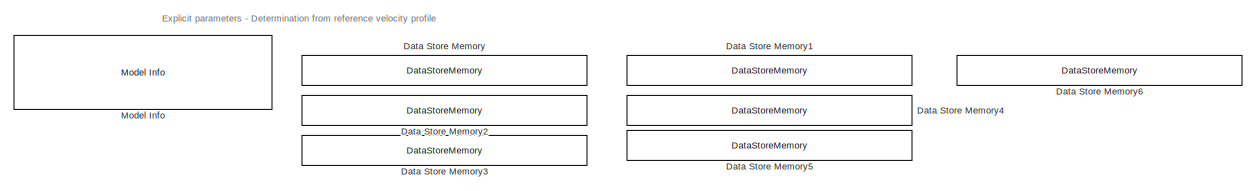
[diagram: root canvas - part 1/3, full width, top band]
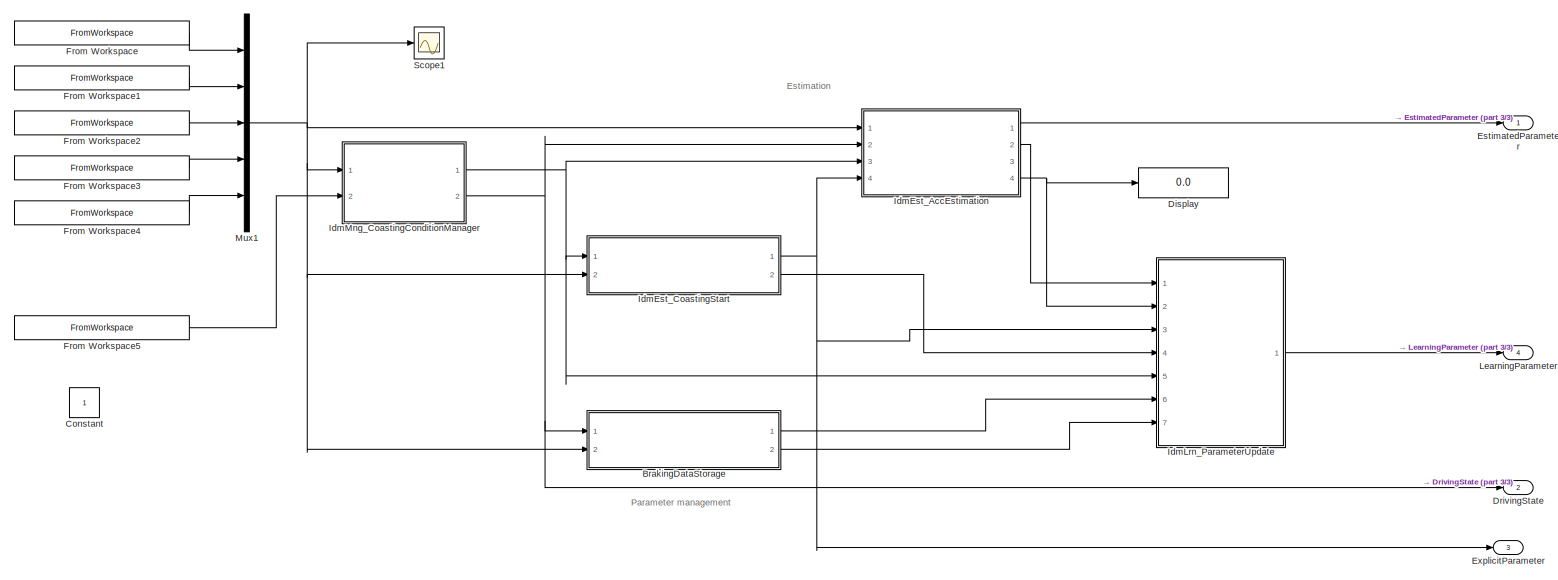
[diagram: root canvas - part 2/3, full width, middle band]
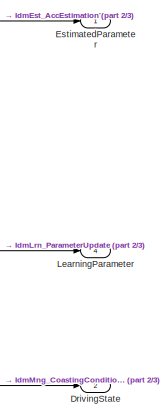
[diagram: root canvas - part 3/3, middle right region]
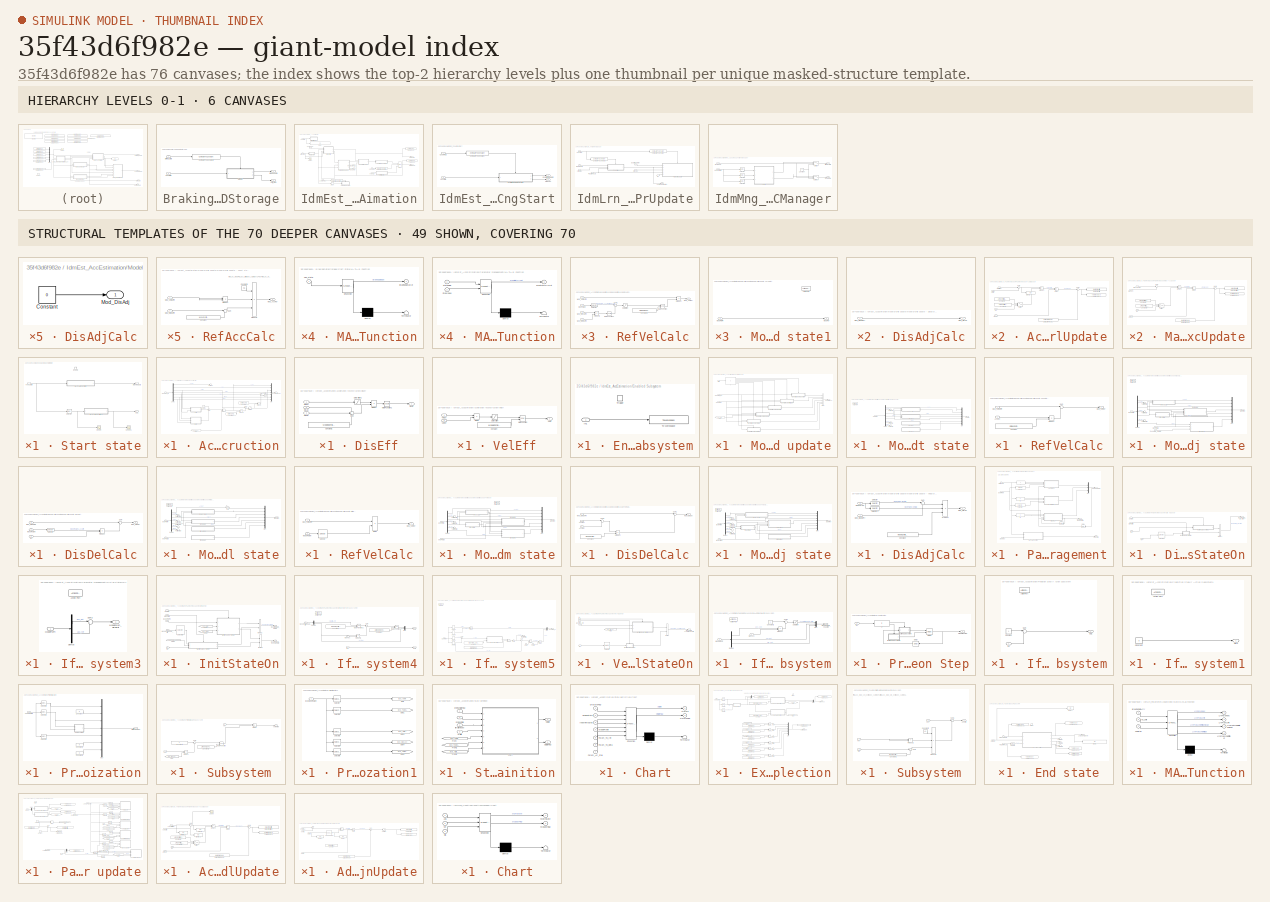
[diagram: thumbnail index - top-2 hierarchy levels (6 canvases) + 49 structural-template representatives of the remaining 70 canvases]
MODEL slx_35f43d6f982e
KIND model
CONFIG AbsTol = auto
CONFIG EnableMultiTasking = on
CONFIG FixedStep = 0.01
CONFIG MaxStep = auto
CONFIG MinStep = auto
CONFIG RelTol = 1e-3
CONFIG SampleTimeConstraint = Unconstrained
CONFIG Solver = ode3
CONFIG SolverName = ode3
CONFIG StartTime = 0.0
CONFIG StopTime = 10.0
BLOCK [SubSystem] BrakingDataStorage
  Ports = [2, 2]
  RTWFcnNameOpts = Use subsystem name
  RTWFileNameOpts = Use subsystem name
  RTWSystemCode = Reusable function
  RequestExecContextInheritance = off
  Variant = off
BLOCK [Outport] BrakingDataStorage/BrakingData
  IconDisplay = Port number
BLOCK [Reference] BrakingDataStorage/Compare To Constant1  REF=simulink/Logic and Bit
Operations/Compare
To Constant
  Ports = [1, 1]
  SourceBlock = simulink/Logic and Bit\nOperations/Compare\nTo Constant
  SourceProductBaseCode = SL
  SourceProductName = Simulink
  SourceType = Compare To Constant
BLOCK [Inport] BrakingDataStorage/DrivingState
  IconDisplay = Port number
BLOCK [Outport] BrakingDataStorage/Shift_Step
  IconDisplay = Port number
  Port = 2
BLOCK [SubSystem] BrakingDataStorage/Start state
  Ports = [1, 2, 1]
  RequestExecContextInheritance = off
  Variant = off
BLOCK [Outport] BrakingDataStorage/Start state/BrakingData
  IconDisplay = Port number
  InitialOutput = zeros(2000,3)
BLOCK [EnablePort] BrakingDataStorage/Start state/Enable
  Ports = []
  StatesWhenEnabling = reset
BLOCK [SubSystem] BrakingDataStorage/Start state/MATLAB Function
  ErrorFcn = Stateflow.Translate.translate
  PermitHierarchicalResolution = ExplicitOnly
  Ports = [1, 1]
  RequestExecContextInheritance = off
  SFBlockType = MATLAB Function
  TreatAsAtomicUnit = on
  Variant = off
BLOCK [Demux] BrakingDataStorage/Start state/MATLAB Function/ Demux 
  Outputs = 1
  Ports = [1, 1]
BLOCK [S-Function] BrakingDataStorage/Start state/MATLAB Function/ SFunction 
  EnableBusSupport = on
  FunctionName = sf_sfun
  Parameters = OnlineConfig
  PortCounts = [1 2]
  Ports = [1, 2]
  SFcnIsStateOwnerBlock = off
  SFunctionDeploymentMode = off
  Tag = Stateflow S-Function IdmEstimation_Cogen_Unporting_New 5
BLOCK [Terminator] BrakingDataStorage/Start state/MATLAB Function/ Terminator 
BLOCK [Outport] BrakingDataStorage/Start state/MATLAB Function/BrakingDataOut
  IconDisplay = Port number
BLOCK [Inport] BrakingDataStorage/Start state/MATLAB Function/veh_state
  IconDisplay = Port number
BLOCK [SubSystem] BrakingDataStorage/Start state/MATLAB Function1
  ErrorFcn = Stateflow.Translate.translate
  PermitHierarchicalResolution = ExplicitOnly
  Ports = [1, 1]
  RequestExecContextInheritance = off
  SFBlockType = MATLAB Function
  TreatAsAtomicUnit = on
  Variant = off
BLOCK [Demux] BrakingDataStorage/Start state/MATLAB Function1/ Demux 
  Outputs = 1
  Ports = [1, 1]
BLOCK [S-Function] BrakingDataStorage/Start state/MATLAB Function1/ SFunction 
  EnableBusSupport = on
  FunctionName = sf_sfun
  PortCounts = [1 2]
  Ports = [1, 2]
  SFcnIsStateOwnerBlock = off
  SFunctionDeploymentMode = off
  Tag = Stateflow S-Function IdmEstimation_Cogen_Unporting_New 10
BLOCK [Terminator] BrakingDataStorage/Start state/MATLAB Function1/ Terminator 
BLOCK [Inport] BrakingDataStorage/Start state/MATLAB Function1/Brk_Data
  IconDisplay = Port number
BLOCK [Outport] BrakingDataStorage/Start state/MATLAB Function1/Shift_TimeOut
  IconDisplay = Port number
BLOCK [Outport] BrakingDataStorage/Start state/Out1
  IconDisplay = Port number
  Port = 2
BLOCK [Scope] BrakingDataStorage/Start state/Scope
  NumInputPorts = 1
  Ports = [1]
  ScopeSpecificationString = Simulink.scopes.TimeScopeBlockCfg('CurrentConfiguration', extmgr.ConfigurationSet(extmgr.Configuration('Core','General UI',true),extmgr.Configuration('Core','Source UI',true),extmgr.Configuration('Sources','WiredSimulink',true,'DataLoggingVariableName','ScopeData1'),extmgr.Configuration('Visuals','Time Domain',true,'SerializedDisplays',{struct('MinYLimReal','-2.55417','MaxYLimReal','31.9875','YLab...<+1397ch>
BLOCK [Scope] BrakingDataStorage/Start state/Scope1
  NumInputPorts = 1
  Ports = [1]
  ScopeSpecificationString = Simulink.scopes.TimeScopeBlockCfg('CurrentConfiguration', extmgr.ConfigurationSet(extmgr.Configuration('Core','General UI',true),extmgr.Configuration('Core','Source UI',true),extmgr.Configuration('Sources','WiredSimulink',true,'DataLoggingVariableName','ScopeData2'),extmgr.Configuration('Visuals','Time Domain',true,'SerializedDisplays',{struct('MinYLimReal','0.41296','MaxYLimReal','2.05288','YLabe...<+1446ch>
BLOCK [Selector] BrakingDataStorage/Start state/Selector
  IndexOptions = Index vector (dialog)
  Indices = 1
  InputPortWidth = 5
  OutputSizes = 1
  Ports = [1, 1]
BLOCK [Inport] BrakingDataStorage/Start state/veh_state
  IconDisplay = Port number
BLOCK [Inport] BrakingDataStorage/VehState
  IconDisplay = Port number
  Port = 2
BLOCK [Constant] Constant
  OutDataTypeStr = single
BLOCK [DataStoreMemory] Data Store Memory
  DataStoreName = IdmLrn_EcpParamVec_TpInit
  Dimensions = LrnConfig.DataIndexLength
  InitialValue = BaseMap_TpShift_Data
  ReadBeforeWriteMsg = warning
  ShowAdditionalParam = off
  StateMustResolveToSignalObject = on
  WriteAfterReadMsg = warning
  WriteAfterWriteMsg = warning
BLOCK [DataStoreMemory] Data Store Memory1
  DataStoreName = IdmLrn_EcpParamVec_MaxAcc
  Dimensions = LrnConfig.DataIndexLength
  InitialValue = BaseMap_MaxAcc_Data
  ReadBeforeWriteMsg = warning
  ShowAdditionalParam = off
  StateMustResolveToSignalObject = on
  WriteAfterReadMsg = warning
  WriteAfterWriteMsg = warning
BLOCK [DataStoreMemory] Data Store Memory2
  DataStoreName = IdmLrn_EcpParamVec_TpDelta
  Dimensions = LrnConfig.DataIndexLength
  InitialValue = BaseMap_TpDelta_Data
  ReadBeforeWriteMsg = warning
  ShowAdditionalParam = off
  StateMustResolveToSignalObject = on
  WriteAfterReadMsg = warning
  WriteAfterWriteMsg = warning
BLOCK [DataStoreMemory] Data Store Memory3
  DataStoreName = IdmLrn_EcpParamVec_AcdStall
  Dimensions = LrnConfig.DataIndexLength
  InitialValue = BaseMap_AccDiff_Data
  ReadBeforeWriteMsg = warning
  ShowAdditionalParam = off
  StateMustResolveToSignalObject = on
  WriteAfterReadMsg = warning
  WriteAfterWriteMsg = warning
BLOCK [DataStoreMemory] Data Store Memory4
  DataStoreName = IdmLrn_EcpParamVec_AcrStall
  Dimensions = LrnConfig.DataIndexLength
  InitialValue = BaseMap_AprStall_Data
  ReadBeforeWriteMsg = warning
  ShowAdditionalParam = off
  StateMustResolveToSignalObject = on
  WriteAfterReadMsg = warning
  WriteAfterWriteMsg = warning
BLOCK [DataStoreMemory] Data Store Memory5
  DataStoreName = IdmLrn_EcpParamVec_AdjGain
  Dimensions = LrnConfig.DataIndexLength
  InitialValue = BaseMap_AdjGain_Data
  ReadBeforeWriteMsg = warning
  ShowAdditionalParam = off
  StateMustResolveToSignalObject = on
  WriteAfterReadMsg = warning
  WriteAfterWriteMsg = warning
BLOCK [DataStoreMemory] Data Store Memory6
  DataStoreName = IdmLrn_LrnNum
  Dimensions = 1
  InitialValue = LrnFacNum
  ReadBeforeWriteMsg = warning
  ShowAdditionalParam = off
  StateMustResolveToSignalObject = on
  WriteAfterReadMsg = warning
  WriteAfterWriteMsg = warning
BLOCK [Display] Display
  Decimation = 1
  Ports = [1]
BLOCK [Outport] DrivingState
  IconDisplay = Port number
  Port = 2
BLOCK [Outport] EstimatedParameter
  IconDisplay = Port number
BLOCK [Outport] ExplicitParameter
  IconDisplay = Port number
  Port = 3
BLOCK [FromWorkspace] From Workspace
  SampleTime = 0.01
  VariableName = [VehData_time VehData_brk]
  ZeroCross = on
BLOCK [FromWorkspace] From Workspace1
  SampleTime = 0.01
  VariableName = [VehData_time VehData_aps]
  ZeroCross = on
BLOCK [FromWorkspace] From Workspace2
  SampleTime = 0.01
  VariableName = [VehData_time VehData_acc]
  ZeroCross = on
BLOCK [FromWorkspace] From Workspace3
  SampleTime = 0.01
  VariableName = [VehData_time VehData_vel]
  ZeroCross = on
BLOCK [FromWorkspace] From Workspace4
  SampleTime = 0.01
  VariableName = [VehData_time VehData_dis]
  ZeroCross = on
BLOCK [FromWorkspace] From Workspace5
  SampleTime = 0.01
  VariableName = [VehData_time VehData_Enable]
  ZeroCross = on
BLOCK [SubSystem] IdmEst_AccEstimation
  Ports = [4, 4]
  RTWFcnNameOpts = Use subsystem name
  RTWFileNameOpts = Use subsystem name
  RTWSystemCode = Reusable function
  RequestExecContextInheritance = off
  Variant = off
BLOCK [SubSystem] IdmEst_AccEstimation/Acceleration reconstruction
  Ports = [1, 1]
  RequestExecContextInheritance = off
  Variant = off
BLOCK [Constant] IdmEst_AccEstimation/Acceleration reconstruction/Constant
BLOCK [Constant] IdmEst_AccEstimation/Acceleration reconstruction/Constant2
  Value = OnlineConfig.Ts
BLOCK [Constant] IdmEst_AccEstimation/Acceleration reconstruction/Constant3
  Value = OnlineConfig.Ts
BLOCK [Demux] IdmEst_AccEstimation/Acceleration reconstruction/Demux
  DisplayOption = bar
  Outputs = 7
  Ports = [1, 7]
BLOCK [SubSystem] IdmEst_AccEstimation/Acceleration reconstruction/DisEff
  Ports = [3, 1]
  RequestExecContextInheritance = off
  Variant = off
BLOCK [Constant] IdmEst_AccEstimation/Acceleration reconstruction/DisEff/Constant1
  Value = ModelConfig.MinDis + ModelConfig.AdjDis
BLOCK [Inport] IdmEst_AccEstimation/Acceleration reconstruction/DisEff/DisAdj
  IconDisplay = Port number
  Port = 2
BLOCK [Inport] IdmEst_AccEstimation/Acceleration reconstruction/DisEff/DisDel
  IconDisplay = Port number
  Port = 3
BLOCK [Outport] IdmEst_AccEstimation/Acceleration reconstruction/DisEff/DisEff
  IconDisplay = Port number
BLOCK [Inport] IdmEst_AccEstimation/Acceleration reconstruction/DisEff/DisEst
  IconDisplay = Port number
BLOCK [Product] IdmEst_AccEstimation/Acceleration reconstruction/DisEff/Divide1
  InputSameDT = off
  Inputs = /*
  OutDataTypeStr = Inherit: Inherit via internal rule
  Ports = [2, 1]
  RndMeth = Floor
  SaturateOnIntegerOverflow = off
BLOCK [Math] IdmEst_AccEstimation/Acceleration reconstruction/DisEff/Math Function1
  Operator = square
  Ports = [1, 1]
BLOCK [Saturate] IdmEst_AccEstimation/Acceleration reconstruction/DisEff/Saturation1
  InputPortMap = u0
  LowerLimit = 0.0001
  Ports = [1, 1]
  UpperLimit = inf
BLOCK [Sum] IdmEst_AccEstimation/Acceleration reconstruction/DisEff/Sum
  IconShape = round
  InputSameDT = off
  Inputs = 3
  OutDataTypeStr = Inherit: Inherit via internal rule
  Ports = [3, 1]
  SaturateOnIntegerOverflow = off
BLOCK [From] IdmEst_AccEstimation/Acceleration reconstruction/From
  GotoTag = Ecp_MaxAcc
  TagVisibility = global
BLOCK [Inport] IdmEst_AccEstimation/Acceleration reconstruction/ModelProPri_Up
  IconDisplay = Port number
BLOCK [Mux] IdmEst_AccEstimation/Acceleration reconstruction/Mux
  DisplayOption = bar
  Inputs = 7
  Ports = [7, 1]
BLOCK [Product] IdmEst_AccEstimation/Acceleration reconstruction/Product
  InputSameDT = off
  OutDataTypeStr = Inherit: Inherit via internal rule
  Ports = [2, 1]
  RndMeth = Floor
  SaturateOnIntegerOverflow = off
BLOCK [Product] IdmEst_AccEstimation/Acceleration reconstruction/Product1
  InputSameDT = off
  OutDataTypeStr = Inherit: Inherit via internal rule
  Ports = [2, 1]
  RndMeth = Floor
  SaturateOnIntegerOverflow = off
BLOCK [Product] IdmEst_AccEstimation/Acceleration reconstruction/Product2
  InputSameDT = off
  OutDataTypeStr = Inherit: Inherit via internal rule
  Ports = [2, 1]
  RndMeth = Floor
  SaturateOnIntegerOverflow = off
BLOCK [Outport] IdmEst_AccEstimation/Acceleration reconstruction/ReconstructResult
  IconDisplay = Port number
BLOCK [Saturate] IdmEst_AccEstimation/Acceleration reconstruction/Saturation
  InputPortMap = u0
  LowerLimit = 0.01
  Ports = [1, 1]
  UpperLimit = inf
BLOCK [Saturate] IdmEst_AccEstimation/Acceleration reconstruction/Saturation1
  InputPortMap = u0
  LowerLimit = 0.5001
  Ports = [1, 1]
  UpperLimit = inf
BLOCK [Sum] IdmEst_AccEstimation/Acceleration reconstruction/Sum
  IconShape = round
  InputSameDT = off
  Inputs = +--
  OutDataTypeStr = Inherit: Inherit via internal rule
  Ports = [3, 1]
  SaturateOnIntegerOverflow = off
BLOCK [Sum] IdmEst_AccEstimation/Acceleration reconstruction/Sum1
  IconShape = round
  InputSameDT = off
  Inputs = |++
  OutDataTypeStr = Inherit: Inherit via internal rule
  Ports = [2, 1]
  SaturateOnIntegerOverflow = off
BLOCK [Sum] IdmEst_AccEstimation/Acceleration reconstruction/Sum2
  IconShape = round
  InputSameDT = off
  Inputs = |+-
  OutDataTypeStr = Inherit: Inherit via internal rule
  Ports = [2, 1]
  SaturateOnIntegerOverflow = off
BLOCK [Terminator] IdmEst_AccEstimation/Acceleration reconstruction/Terminator
BLOCK [SubSystem] IdmEst_AccEstimation/Acceleration reconstruction/VelEff
  Ports = [2, 1]
  RequestExecContextInheritance = off
  Variant = off
BLOCK [Constant] IdmEst_AccEstimation/Acceleration reconstruction/VelEff/Constant
  Value = ModelConfig.Delta
BLOCK [Product] IdmEst_AccEstimation/Acceleration reconstruction/VelEff/Divide
  InputSameDT = off
  Inputs = */
  OutDataTypeStr = Inherit: Inherit via internal rule
  Ports = [2, 1]
  RndMeth = Floor
  SaturateOnIntegerOverflow = off
BLOCK [Math] IdmEst_AccEstimation/Acceleration reconstruction/VelEff/Math Function
  Operator = pow
  Ports = [2, 1]
BLOCK [Saturate] IdmEst_AccEstimation/Acceleration reconstruction/VelEff/Saturation
  InputPortMap = u0
  LowerLimit = 0
  Ports = [1, 1]
  UpperLimit = inf
BLOCK [Outport] IdmEst_AccEstimation/Acceleration reconstruction/VelEff/VelEff
  IconDisplay = Port number
BLOCK [Inport] IdmEst_AccEstimation/Acceleration reconstruction/VelEff/VelEst
  IconDisplay = Port number
BLOCK [Inport] IdmEst_AccEstimation/Acceleration reconstruction/VelEff/VelRef
  IconDisplay = Port number
  Port = 2
BLOCK [Outport] IdmEst_AccEstimation/BrakingState
  IconDisplay = Port number
  Port = 3
BLOCK [Inport] IdmEst_AccEstimation/CoastingFlag
  IconDisplay = Port number
  Port = 3
BLOCK [InportShadow] IdmEst_AccEstimation/CoastingFlag1
  IconDisplay = Port number
  Port = 3
BLOCK [InportShadow] IdmEst_AccEstimation/CoastingFlag2
  IconDisplay = Port number
  Port = 3
BLOCK [Reference] IdmEst_AccEstimation/Compare To Constant  REF=simulink/Logic and Bit
Operations/Compare
To Constant
  Ports = [1, 1]
  SourceBlock = simulink/Logic and Bit\nOperations/Compare\nTo Constant
  SourceProductBaseCode = SL
  SourceProductName = Simulink
  SourceType = Compare To Constant
BLOCK [Reference] IdmEst_AccEstimation/Compare To Constant1  REF=simulink/Logic and Bit
Operations/Compare
To Constant
  Ports = [1, 1]
  SourceBlock = simulink/Logic and Bit\nOperations/Compare\nTo Constant
  SourceProductBaseCode = SL
  SourceProductName = Simulink
  SourceType = Compare To Constant
BLOCK [Delay] IdmEst_AccEstimation/Delay
  DelayLength = 1
  ExternalReset = Rising
  InitialCondition = [acc_veh(1) 0 vel_veh(1) vel_veh(1)-ParamCase.VpDiff_Coast dis_veh(1) 0 0]
  InitialConditionSource = Input port
  InputPortMap = u0,r5,p4
  Ports = [3, 1]
BLOCK [Delay] IdmEst_AccEstimation/Delay1
  DelayLength = 1
  InputPortMap = u0
  Ports = [1, 1]
BLOCK [Display] IdmEst_AccEstimation/Display
  Decimation = 1
  Ports = [1]
BLOCK [Inport] IdmEst_AccEstimation/DrivingState
  IconDisplay = Port number
  Port = 2
BLOCK [Inport] IdmEst_AccEstimation/EcpParam
  IconDisplay = Port number
  Port = 4
BLOCK [SubSystem] IdmEst_AccEstimation/Enabled Subsystem
  Ports = [1, 0, 0, 1]
  RequestExecContextInheritance = off
  TreatAsAtomicUnit = on
  Variant = off
BLOCK [Inport] IdmEst_AccEstimation/Enabled Subsystem/In1
  IconDisplay = Port number
BLOCK [ToWorkspace] IdmEst_AccEstimation/Enabled Subsystem/To Workspace
  FixptAsFi = on
  MaxDataPoints = inf
  Ports = [1]
  SampleTime = -1
  SaveFormat = Structure With Time
  VariableName = LogData_Stop_PreSize
BLOCK [TriggerPort] IdmEst_AccEstimation/Enabled Subsystem/Trigger
  PortDimensions = 1
  Ports = []
  StatesWhenEnabling = held
  VariantControl = Variant
BLOCK [Outport] IdmEst_AccEstimation/EstimatedData
  IconDisplay = Port number
  InitialOutput = zeros(1,7)
BLOCK [SubSystem] IdmEst_AccEstimation/Model profile update
  Ports = [3, 1]
  RequestExecContextInheritance = off
  Variant = off
BLOCK [From] IdmEst_AccEstimation/Model profile update/From
  GotoTag = Ecp_AdjGain
  TagVisibility = global
BLOCK [If] IdmEst_AccEstimation/Model profile update/If
  ElseIfExpressions = u1 == 2, u1 == 3, u1 == 4, u1 == 5
  IfExpression = u1 == 1
  Ports = [1, 6]
BLOCK [Merge] IdmEst_AccEstimation/Model profile update/Merge
  Inputs = 6
  Ports = [6, 1]
BLOCK [SubSystem] IdmEst_AccEstimation/Model profile update/Model profile update - Coast state
  Ports = [1, 1, 0, 0, 0, 0, 0, 1]
  RequestExecContextInheritance = off
  Variant = off
BLOCK [ActionPort] IdmEst_AccEstimation/Model profile update/Model profile update - Coast state/Action Port
  ActionType = then
BLOCK [Demux] IdmEst_AccEstimation/Model profile update/Model profile update - Coast state/Demux
  DisplayOption = bar
  Outputs = 7
  Ports = [1, 7]
BLOCK [SubSystem] IdmEst_AccEstimation/Model profile update/Model profile update - Coast state/DisAdjCalc
  Ports = [0, 1]
  RequestExecContextInheritance = off
  Variant = off
BLOCK [Constant] IdmEst_AccEstimation/Model profile update/Model profile update - Coast state/DisAdjCalc/Constant
  Value = 0
BLOCK [Outport] IdmEst_AccEstimation/Model profile update/Model profile update - Coast state/DisAdjCalc/Mod_DisAdj
  IconDisplay = Port number
BLOCK [SubSystem] IdmEst_AccEstimation/Model profile update/Model profile update - Coast state/DisDelCalc
  Ports = [0, 1]
  RequestExecContextInheritance = off
  Variant = off
BLOCK [Constant] IdmEst_AccEstimation/Model profile update/Model profile update - Coast state/DisDelCalc/Constant
  Value = 0
BLOCK [Outport] IdmEst_AccEstimation/Model profile update/Model profile update - Coast state/DisDelCalc/Mod_DisDel
  IconDisplay = Port number
BLOCK [Outport] IdmEst_AccEstimation/Model profile update/Model profile update - Coast state/ModProf
  IconDisplay = Port number
BLOCK [Inport] IdmEst_AccEstimation/Model profile update/Model profile update - Coast state/ModProfPri
  IconDisplay = Port number
BLOCK [Mux] IdmEst_AccEstimation/Model profile update/Model profile update - Coast state/Mux
  DisplayOption = bar
  Inputs = 7
  Ports = [7, 1]
BLOCK [SubSystem] IdmEst_AccEstimation/Model profile update/Model profile update - Coast state/RefAccCalc
  Ports = [2, 1]
  RequestExecContextInheritance = off
  Variant = off
BLOCK [Constant] IdmEst_AccEstimation/Model profile update/Model profile update - Coast state/RefAccCalc/Constant
  Value = ModelConfig.StopDis
BLOCK [Constant] IdmEst_AccEstimation/Model profile update/Model profile update - Coast state/RefAccCalc/Constant1
  Value = -0.5
BLOCK [Outport] IdmEst_AccEstimation/Model profile update/Model profile update - Coast state/RefAccCalc/Mod_AccRef
  IconDisplay = Port number
BLOCK [Inport] IdmEst_AccEstimation/Model profile update/Model profile update - Coast state/RefAccCalc/Mod_DisEstPri
  IconDisplay = Port number
  Port = 2
BLOCK [Inport] IdmEst_AccEstimation/Model profile update/Model profile update - Coast state/RefAccCalc/Mod_VelEstPri
  IconDisplay = Port number
BLOCK [Product] IdmEst_AccEstimation/Model profile update/Model profile update - Coast state/RefAccCalc/Product
  InputSameDT = off
  OutDataTypeStr = Inherit: Inherit via internal rule
  Ports = [2, 1]
  RndMeth = Floor
  SaturateOnIntegerOverflow = off
BLOCK [Product] IdmEst_AccEstimation/Model profile update/Model profile update - Coast state/RefAccCalc/Product1
  InputSameDT = off
  Inputs = **/
  OutDataTypeStr = Inherit: Inherit via internal rule
  Ports = [3, 1]
  RndMeth = Floor
  SaturateOnIntegerOverflow = off
BLOCK [Sum] IdmEst_AccEstimation/Model profile update/Model profile update - Coast state/RefAccCalc/Sum
  IconShape = round
  InputSameDT = off
  Inputs = |+-
  OutDataTypeStr = Inherit: Inherit via internal rule
  Ports = [2, 1]
  SaturateOnIntegerOverflow = off
BLOCK [SubSystem] IdmEst_AccEstimation/Model profile update/Model profile update - Coast state/RefVelCalc
  Ports = [2, 1]
  RequestExecContextInheritance = off
  Variant = off
BLOCK [Inport] IdmEst_AccEstimation/Model profile update/Model profile update - Coast state/RefVelCalc/AccEst
  IconDisplay = Port number
  Port = 2
BLOCK [Constant] IdmEst_AccEstimation/Model profile update/Model profile update - Coast state/RefVelCalc/Constant
  Value = OnlineConfig.Ts
BLOCK [Outport] IdmEst_AccEstimation/Model profile update/Model profile update - Coast state/RefVelCalc/Mod_VelRef
  IconDisplay = Port number
BLOCK [Inport] IdmEst_AccEstimation/Model profile update/Model profile update - Coast state/RefVelCalc/Mod_VelRefPri
  IconDisplay = Port number
BLOCK [Product] IdmEst_AccEstimation/Model profile update/Model profile update - Coast state/RefVelCalc/Product
  InputSameDT = off
  OutDataTypeStr = Inherit: Inherit via internal rule
  Ports = [2, 1]
  RndMeth = Floor
  SaturateOnIntegerOverflow = off
BLOCK [Sum] IdmEst_AccEstimation/Model profile update/Model profile update - Coast state/RefVelCalc/Sum
  IconShape = round
  InputSameDT = off
  Inputs = |++
  OutDataTypeStr = Inherit: Inherit via internal rule
  Ports = [2, 1]
  SaturateOnIntegerOverflow = off
BLOCK [Terminator] IdmEst_AccEstimation/Model profile update/Model profile update - Coast state/Terminator1
BLOCK [Terminator] IdmEst_AccEstimation/Model profile update/Model profile update - Coast state/Terminator2
BLOCK [Terminator] IdmEst_AccEstimation/Model profile update/Model profile update - Coast state/Terminator3
BLOCK [SubSystem] IdmEst_AccEstimation/Model profile update/Model profile update - Disadj state
  Ports = [3, 1, 0, 0, 0, 0, 0, 1]
  RequestExecContextInheritance = off
  Variant = off
BLOCK [ActionPort] IdmEst_AccEstimation/Model profile update/Model profile update - Disadj state/Action Port
  ActionType = elseif
BLOCK [Demux] IdmEst_AccEstimation/Model profile update/Model profile update - Disadj state/Demux
  DisplayOption = bar
  Outputs = 7
  Ports = [1, 7]
BLOCK [SubSystem] IdmEst_AccEstimation/Model profile update/Model profile update - Disadj state/DisAdjCalc
  Ports = [1, 1]
  RequestExecContextInheritance = off
  Variant = off
BLOCK [Outport] IdmEst_AccEstimation/Model profile update/Model profile update - Disadj state/DisAdjCalc/Mod_DisAdj
  IconDisplay = Port number
BLOCK [Inport] IdmEst_AccEstimation/Model profile update/Model profile update - Disadj state/DisAdjCalc/Mod_DisEstPri
  IconDisplay = Port number
BLOCK [SubSystem] IdmEst_AccEstimation/Model profile update/Model profile update - Disadj state/DisDelCalc
  Ports = [3, 1]
  RequestExecContextInheritance = off
  Variant = off
BLOCK [Inport] IdmEst_AccEstimation/Model profile update/Model profile update - Disadj state/DisDelCalc/In3
  IconDisplay = Port number
  Port = 3
BLOCK [Outport] IdmEst_AccEstimation/Model profile update/Model profile update - Disadj state/DisDelCalc/Mod_DisDel
  IconDisplay = Port number
BLOCK [Inport] IdmEst_AccEstimation/Model profile update/Model profile update - Disadj state/DisDelCalc/Mod_DisDelPri
  IconDisplay = Port number
BLOCK [Inport] IdmEst_AccEstimation/Model profile update/Model profile update - Disadj state/DisDelCalc/ModelParam
  IconDisplay = Port number
  Port = 2
BLOCK [Product] IdmEst_AccEstimation/Model profile update/Model profile update - Disadj state/DisDelCalc/Product
  InputSameDT = off
  OutDataTypeStr = Inherit: Inherit via internal rule
  Ports = [2, 1]
  RndMeth = Floor
  SaturateOnIntegerOverflow = off
BLOCK [Selector] IdmEst_AccEstimation/Model profile update/Model profile update - Disadj state/DisDelCalc/Selector
  IndexOptions = Index vector (dialog)
  Indices = OnlineConfig.CalcParamIndex.AccdDisAdj
  InputPortWidth = OnlineConfig.CalcParamSize
  OutputSizes = 1
  Ports = [1, 1]
BLOCK [Sum] IdmEst_AccEstimation/Model profile update/Model profile update - Disadj state/DisDelCalc/Sum
  IconShape = round
  InputSameDT = off
  Inputs = |++
  OutDataTypeStr = Inherit: Inherit via internal rule
  Ports = [2, 1]
  SaturateOnIntegerOverflow = off
BLOCK [Inport] IdmEst_AccEstimation/Model profile update/Model profile update - Disadj state/EcpParam_AdjGain
  IconDisplay = Port number
  Port = 3
BLOCK [Inport] IdmEst_AccEstimation/Model profile update/Model profile update - Disadj state/ModParam
  IconDisplay = Port number
  Port = 2
BLOCK [Outport] IdmEst_AccEstimation/Model profile update/Model profile update - Disadj state/ModProf
  IconDisplay = Port number
BLOCK [Inport] IdmEst_AccEstimation/Model profile update/Model profile update - Disadj state/ModProfPri
  IconDisplay = Port number
BLOCK [Mux] IdmEst_AccEstimation/Model profile update/Model profile update - Disadj state/Mux
  DisplayOption = bar
  Inputs = 7
  Ports = [7, 1]
BLOCK [SubSystem] IdmEst_AccEstimation/Model profile update/Model profile update - Disadj state/RefAccCalc
  Ports = [2, 1]
  RequestExecContextInheritance = off
  Variant = off
BLOCK [Constant] IdmEst_AccEstimation/Model profile update/Model profile update - Disadj state/RefAccCalc/Constant
  Value = ModelConfig.StopDis
BLOCK [Constant] IdmEst_AccEstimation/Model profile update/Model profile update - Disadj state/RefAccCalc/Constant1
  Value = -0.5
BLOCK [Outport] IdmEst_AccEstimation/Model profile update/Model profile update - Disadj state/RefAccCalc/Mod_AccRef
  IconDisplay = Port number
BLOCK [Inport] IdmEst_AccEstimation/Model profile update/Model profile update - Disadj state/RefAccCalc/Mod_DisEstPri
  IconDisplay = Port number
  Port = 2
BLOCK [Inport] IdmEst_AccEstimation/Model profile update/Model profile update - Disadj state/RefAccCalc/Mod_VelEstPri
  IconDisplay = Port number
BLOCK [Product] IdmEst_AccEstimation/Model profile update/Model profile update - Disadj state/RefAccCalc/Product
  InputSameDT = off
  OutDataTypeStr = Inherit: Inherit via internal rule
  Ports = [2, 1]
  RndMeth = Floor
  SaturateOnIntegerOverflow = off
BLOCK [Product] IdmEst_AccEstimation/Model profile update/Model profile update - Disadj state/RefAccCalc/Product1
  InputSameDT = off
  Inputs = **/
  OutDataTypeStr = Inherit: Inherit via internal rule
  Ports = [3, 1]
  RndMeth = Floor
  SaturateOnIntegerOverflow = off
BLOCK [Sum] IdmEst_AccEstimation/Model profile update/Model profile update - Disadj state/RefAccCalc/Sum
  IconShape = round
  InputSameDT = off
  Inputs = |+-
  OutDataTypeStr = Inherit: Inherit via internal rule
  Ports = [2, 1]
  SaturateOnIntegerOverflow = off
BLOCK [SubSystem] IdmEst_AccEstimation/Model profile update/Model profile update - Disadj state/RefVelCalc
  Ports = [4, 1]
  RequestExecContextInheritance = off
  Variant = off
BLOCK [Constant] IdmEst_AccEstimation/Model profile update/Model profile update - Disadj state/RefVelCalc/Constant1
  Value = 1/ModelConfig.Delta
BLOCK [Math] IdmEst_AccEstimation/Model profile update/Model profile update - Disadj state/RefVelCalc/Math Function
  Operator = pow
  Ports = [2, 1]
BLOCK [Math] IdmEst_AccEstimation/Model profile update/Model profile update - Disadj state/RefVelCalc/Math Function1
  Operator = square
  Ports = [1, 1]
BLOCK [Inport] IdmEst_AccEstimation/Model profile update/Model profile update - Disadj state/RefVelCalc/ModParam
  IconDisplay = Port number
  Port = 4
BLOCK [Inport] IdmEst_AccEstimation/Model profile update/Model profile update - Disadj state/RefVelCalc/Mod_DisAdjPri
  IconDisplay = Port number
  Port = 3
BLOCK [Inport] IdmEst_AccEstimation/Model profile update/Model profile update - Disadj state/RefVelCalc/Mod_DisEstPri
  IconDisplay = Port number
  Port = 2
BLOCK [Inport] IdmEst_AccEstimation/Model profile update/Model profile update - Disadj state/RefVelCalc/Mod_VelEstPri
  IconDisplay = Port number
BLOCK [Outport] IdmEst_AccEstimation/Model profile update/Model profile update - Disadj state/RefVelCalc/Mod_VelRef
  IconDisplay = Port number
BLOCK [Product] IdmEst_AccEstimation/Model profile update/Model profile update - Disadj state/RefVelCalc/Product
  InputSameDT = off
  Inputs = */
  OutDataTypeStr = Inherit: Inherit via internal rule
  Ports = [2, 1]
  RndMeth = Floor
  SaturateOnIntegerOverflow = off
BLOCK [Product] IdmEst_AccEstimation/Model profile update/Model profile update - Disadj state/RefVelCalc/Product1
  InputSameDT = off
  Inputs = */
  OutDataTypeStr = Inherit: Inherit via internal rule
  Ports = [2, 1]
  RndMeth = Floor
  SaturateOnIntegerOverflow = off
BLOCK [Saturate] IdmEst_AccEstimation/Model profile update/Model profile update - Disadj state/RefVelCalc/Saturation
  InputPortMap = u0
  LowerLimit = 0.00001
  Ports = [1, 1]
  UpperLimit = inf
BLOCK [Selector] IdmEst_AccEstimation/Model profile update/Model profile update - Disadj state/RefVelCalc/Selector
  IndexOptions = Index vector (dialog)
  Indices = OnlineConfig.CalcParamIndex.AccrStall
  InputPortWidth = OnlineConfig.CalcParamSize
  OutputSizes = 1
  Ports = [1, 1]
BLOCK [Sum] IdmEst_AccEstimation/Model profile update/Model profile update - Disadj state/RefVelCalc/Sum1
  IconShape = round
  InputSameDT = off
  Inputs = |+-
  OutDataTypeStr = Inherit: Inherit via internal rule
  Ports = [2, 1]
  SaturateOnIntegerOverflow = off
BLOCK [Terminator] IdmEst_AccEstimation/Model profile update/Model profile update - Disadj state/Terminator
BLOCK [Terminator] IdmEst_AccEstimation/Model profile update/Model profile update - Disadj state/Terminator1
BLOCK [Terminator] IdmEst_AccEstimation/Model profile update/Model profile update - Disadj state/Terminator2
BLOCK [SubSystem] IdmEst_AccEstimation/Model profile update/Model profile update - Initial state
  Ports = [2, 1, 0, 0, 0, 0, 0, 1]
  RequestExecContextInheritance = off
  Variant = off
BLOCK [ActionPort] IdmEst_AccEstimation/Model profile update/Model profile update - Initial state/Action Port
  ActionType = elseif
BLOCK [Demux] IdmEst_AccEstimation/Model profile update/Model profile update - Initial state/Demux
  DisplayOption = bar
  Outputs = 7
  Ports = [1, 7]
BLOCK [SubSystem] IdmEst_AccEstimation/Model profile update/Model profile update - Initial state/DisAdjCalc
  Ports = [0, 1]
  RequestExecContextInheritance = off
  Variant = off
BLOCK [Constant] IdmEst_AccEstimation/Model profile update/Model profile update - Initial state/DisAdjCalc/Constant
  Value = 0
BLOCK [Outport] IdmEst_AccEstimation/Model profile update/Model profile update - Initial state/DisAdjCalc/Mod_DisAdj
  IconDisplay = Port number
BLOCK [SubSystem] IdmEst_AccEstimation/Model profile update/Model profile update - Initial state/DisDelCalc
  Ports = [0, 1]
  RequestExecContextInheritance = off
  Variant = off
BLOCK [Constant] IdmEst_AccEstimation/Model profile update/Model profile update - Initial state/DisDelCalc/Constant
  Value = 0
BLOCK [Outport] IdmEst_AccEstimation/Model profile update/Model profile update - Initial state/DisDelCalc/Mod_DisDel
  IconDisplay = Port number
BLOCK [Gain] IdmEst_AccEstimation/Model profile update/Model profile update - Initial state/Gain
  OutDataTypeStr = Inherit: Inherit via internal rule
  ParamDataTypeStr = Inherit: Inherit via internal rule
  SaturateOnIntegerOverflow = off
BLOCK [Inport] IdmEst_AccEstimation/Model profile update/Model profile update - Initial state/ModParam
  IconDisplay = Port number
  Port = 2
BLOCK [Outport] IdmEst_AccEstimation/Model profile update/Model profile update - Initial state/ModProf
  IconDisplay = Port number
BLOCK [Inport] IdmEst_AccEstimation/Model profile update/Model profile update - Initial state/ModProfPri
  IconDisplay = Port number
BLOCK [Mux] IdmEst_AccEstimation/Model profile update/Model profile update - Initial state/Mux
  DisplayOption = bar
  Inputs = 7
  Ports = [7, 1]
BLOCK [SubSystem] IdmEst_AccEstimation/Model profile update/Model profile update - Initial state/RefAccCalc
  Ports = [2, 1]
  RequestExecContextInheritance = off
  Variant = off
BLOCK [Constant] IdmEst_AccEstimation/Model profile update/Model profile update - Initial state/RefAccCalc/Constant
  Value = ModelConfig.StopDis
BLOCK [Constant] IdmEst_AccEstimation/Model profile update/Model profile update - Initial state/RefAccCalc/Constant1
  Value = -0.5
BLOCK [Outport] IdmEst_AccEstimation/Model profile update/Model profile update - Initial state/RefAccCalc/Mod_AccRef
  IconDisplay = Port number
BLOCK [Inport] IdmEst_AccEstimation/Model profile update/Model profile update - Initial state/RefAccCalc/Mod_DisEstPri
  IconDisplay = Port number
  Port = 2
BLOCK [Inport] IdmEst_AccEstimation/Model profile update/Model profile update - Initial state/RefAccCalc/Mod_VelEstPri
  IconDisplay = Port number
BLOCK [Product] IdmEst_AccEstimation/Model profile update/Model profile update - Initial state/RefAccCalc/Product
  InputSameDT = off
  OutDataTypeStr = Inherit: Inherit via internal rule
  Ports = [2, 1]
  RndMeth = Floor
  SaturateOnIntegerOverflow = off
BLOCK [Product] IdmEst_AccEstimation/Model profile update/Model profile update - Initial state/RefAccCalc/Product1
  InputSameDT = off
  Inputs = **/
  OutDataTypeStr = Inherit: Inherit via internal rule
  Ports = [3, 1]
  RndMeth = Floor
  SaturateOnIntegerOverflow = off
BLOCK [Sum] IdmEst_AccEstimation/Model profile update/Model profile update - Initial state/RefAccCalc/Sum
  IconShape = round
  InputSameDT = off
  Inputs = |+-
  OutDataTypeStr = Inherit: Inherit via internal rule
  Ports = [2, 1]
  SaturateOnIntegerOverflow = off
BLOCK [SubSystem] IdmEst_AccEstimation/Model profile update/Model profile update - Initial state/RefVelCalc
  Ports = [2, 1]
  RequestExecContextInheritance = off
  Variant = off
BLOCK [Product] IdmEst_AccEstimation/Model profile update/Model profile update - Initial state/RefVelCalc/Divide
  InputSameDT = off
  Inputs = */
  OutDataTypeStr = Inherit: Inherit via internal rule
  Ports = [2, 1]
  RndMeth = Floor
  SaturateOnIntegerOverflow = off
BLOCK [Inport] IdmEst_AccEstimation/Model profile update/Model profile update - Initial state/RefVelCalc/Mod_VelEstPri
  IconDisplay = Port number
BLOCK [Outport] IdmEst_AccEstimation/Model profile update/Model profile update - Initial state/RefVelCalc/Mod_VelRef
  IconDisplay = Port number
BLOCK [Inport] IdmEst_AccEstimation/Model profile update/Model profile update - Initial state/RefVelCalc/ModelParam
  IconDisplay = Port number
  Port = 2
BLOCK [Selector] IdmEst_AccEstimation/Model profile update/Model profile update - Initial state/RefVelCalc/Selector
  IndexOptions = Index vector (dialog)
  Indices = OnlineConfig.CalcParamIndex.VelRatio
  InputPortWidth = OnlineConfig.CalcParamSize
  OutputSizes = 1
  Ports = [1, 1]
BLOCK [Terminator] IdmEst_AccEstimation/Model profile update/Model profile update - Initial state/Terminator1
BLOCK [Terminator] IdmEst_AccEstimation/Model profile update/Model profile update - Initial state/Terminator2
BLOCK [Terminator] IdmEst_AccEstimation/Model profile update/Model profile update - Initial state/Terminator3
BLOCK [Terminator] IdmEst_AccEstimation/Model profile update/Model profile update - Initial state/Terminator4
BLOCK [SubSystem] IdmEst_AccEstimation/Model profile update/Model profile update - Term state
  Ports = [2, 1, 0, 0, 0, 0, 0, 1]
  RequestExecContextInheritance = off
  Variant = off
BLOCK [ActionPort] IdmEst_AccEstimation/Model profile update/Model profile update - Term state/Action Port
  ActionType = elseif
BLOCK [Demux] IdmEst_AccEstimation/Model profile update/Model profile update - Term state/Demux
  DisplayOption = bar
  Outputs = 7
  Ports = [1, 7]
BLOCK [SubSystem] IdmEst_AccEstimation/Model profile update/Model profile update - Term state/DisAdjCalc
  Ports = [1, 1]
  RequestExecContextInheritance = off
  Variant = off
BLOCK [Outport] IdmEst_AccEstimation/Model profile update/Model profile update - Term state/DisAdjCalc/Mod_DisAdj
  IconDisplay = Port number
BLOCK [Inport] IdmEst_AccEstimation/Model profile update/Model profile update - Term state/DisAdjCalc/Mod_DisEstPri
  IconDisplay = Port number
BLOCK [SubSystem] IdmEst_AccEstimation/Model profile update/Model profile update - Term state/DisDelCalc
  Ports = [3, 1]
  RequestExecContextInheritance = off
  Variant = off
BLOCK [Inport] IdmEst_AccEstimation/Model profile update/Model profile update - Term state/DisDelCalc/AccEst
  IconDisplay = Port number
BLOCK [Inport] IdmEst_AccEstimation/Model profile update/Model profile update - Term state/DisDelCalc/AccRef
  IconDisplay = Port number
  Port = 2
BLOCK [Constant] IdmEst_AccEstimation/Model profile update/Model profile update - Term state/DisDelCalc/Constant
  Value = ModelConfig.AdjDisGainTerm
BLOCK [Outport] IdmEst_AccEstimation/Model profile update/Model profile update - Term state/DisDelCalc/Mod_DisDel
  IconDisplay = Port number
BLOCK [Inport] IdmEst_AccEstimation/Model profile update/Model profile update - Term state/DisDelCalc/Mod_DisDelPri
  IconDisplay = Port number
  Port = 3
BLOCK [Product] IdmEst_AccEstimation/Model profile update/Model profile update - Term state/DisDelCalc/Product
  InputSameDT = off
  OutDataTypeStr = Inherit: Inherit via internal rule
  Ports = [2, 1]
  RndMeth = Floor
  SaturateOnIntegerOverflow = off
BLOCK [Sum] IdmEst_AccEstimation/Model profile update/Model profile update - Term state/DisDelCalc/Sum1
  IconShape = round
  InputSameDT = off
  Inputs = |++
  OutDataTypeStr = Inherit: Inherit via internal rule
  Ports = [2, 1]
  SaturateOnIntegerOverflow = off
BLOCK [Sum] IdmEst_AccEstimation/Model profile update/Model profile update - Term state/DisDelCalc/Sum2
  IconShape = round
  InputSameDT = off
  Inputs = |+-
  OutDataTypeStr = Inherit: Inherit via internal rule
  Ports = [2, 1]
  SaturateOnIntegerOverflow = off
BLOCK [Inport] IdmEst_AccEstimation/Model profile update/Model profile update - Term state/ModParam
  IconDisplay = Port number
  Port = 2
BLOCK [Outport] IdmEst_AccEstimation/Model profile update/Model profile update - Term state/ModProf
  IconDisplay = Port number
BLOCK [Inport] IdmEst_AccEstimation/Model profile update/Model profile update - Term state/ModProfPri
  IconDisplay = Port number
BLOCK [Mux] IdmEst_AccEstimation/Model profile update/Model profile update - Term state/Mux
  DisplayOption = bar
  Inputs = 7
  Ports = [7, 1]
BLOCK [SubSystem] IdmEst_AccEstimation/Model profile update/Model profile update - Term state/RefAccCalc
  Ports = [2, 1]
  RequestExecContextInheritance = off
  Variant = off
BLOCK [Constant] IdmEst_AccEstimation/Model profile update/Model profile update - Term state/RefAccCalc/Constant
  Value = ModelConfig.StopDis
BLOCK [Constant] IdmEst_AccEstimation/Model profile update/Model profile update - Term state/RefAccCalc/Constant1
  Value = -0.5
BLOCK [Outport] IdmEst_AccEstimation/Model profile update/Model profile update - Term state/RefAccCalc/Mod_AccRef
  IconDisplay = Port number
BLOCK [Inport] IdmEst_AccEstimation/Model profile update/Model profile update - Term state/RefAccCalc/Mod_DisEstPri
  IconDisplay = Port number
  Port = 2
BLOCK [Inport] IdmEst_AccEstimation/Model profile update/Model profile update - Term state/RefAccCalc/Mod_VelEstPri
  IconDisplay = Port number
BLOCK [Product] IdmEst_AccEstimation/Model profile update/Model profile update - Term state/RefAccCalc/Product
  InputSameDT = off
  OutDataTypeStr = Inherit: Inherit via internal rule
  Ports = [2, 1]
  RndMeth = Floor
  SaturateOnIntegerOverflow = off
BLOCK [Product] IdmEst_AccEstimation/Model profile update/Model profile update - Term state/RefAccCalc/Product1
  InputSameDT = off
  Inputs = **/
  OutDataTypeStr = Inherit: Inherit via internal rule
  Ports = [3, 1]
  RndMeth = Floor
  SaturateOnIntegerOverflow = off
BLOCK [Sum] IdmEst_AccEstimation/Model profile update/Model profile update - Term state/RefAccCalc/Sum
  IconShape = round
  InputSameDT = off
  Inputs = |+-
  OutDataTypeStr = Inherit: Inherit via internal rule
  Ports = [2, 1]
  SaturateOnIntegerOverflow = off
BLOCK [SubSystem] IdmEst_AccEstimation/Model profile update/Model profile update - Term state/RefVelCalc
  Ports = [4, 1]
  RequestExecContextInheritance = off
  Variant = off
BLOCK [Constant] IdmEst_AccEstimation/Model profile update/Model profile update - Term state/RefVelCalc/Constant
  Value = 1/ModelConfig.Delta
BLOCK [Math] IdmEst_AccEstimation/Model profile update/Model profile update - Term state/RefVelCalc/Math Function
  Operator = pow
  Ports = [2, 1]
BLOCK [Math] IdmEst_AccEstimation/Model profile update/Model profile update - Term state/RefVelCalc/Math Function1
  Operator = square
  Ports = [1, 1]
BLOCK [Inport] IdmEst_AccEstimation/Model profile update/Model profile update - Term state/RefVelCalc/ModParam
  IconDisplay = Port number
  Port = 4
BLOCK [Inport] IdmEst_AccEstimation/Model profile update/Model profile update - Term state/RefVelCalc/Mod_DisAdjPri
  IconDisplay = Port number
  Port = 3
BLOCK [Inport] IdmEst_AccEstimation/Model profile update/Model profile update - Term state/RefVelCalc/Mod_DisEstPri
  IconDisplay = Port number
  Port = 2
BLOCK [Inport] IdmEst_AccEstimation/Model profile update/Model profile update - Term state/RefVelCalc/Mod_VelEstPri
  IconDisplay = Port number
BLOCK [Outport] IdmEst_AccEstimation/Model profile update/Model profile update - Term state/RefVelCalc/Mod_VelRef
  IconDisplay = Port number
BLOCK [Product] IdmEst_AccEstimation/Model profile update/Model profile update - Term state/RefVelCalc/Product
  InputSameDT = off
  Inputs = */
  OutDataTypeStr = Inherit: Inherit via internal rule
  Ports = [2, 1]
  RndMeth = Floor
  SaturateOnIntegerOverflow = off
BLOCK [Product] IdmEst_AccEstimation/Model profile update/Model profile update - Term state/RefVelCalc/Product1
  InputSameDT = off
  Inputs = */
  OutDataTypeStr = Inherit: Inherit via internal rule
  Ports = [2, 1]
  RndMeth = Floor
  SaturateOnIntegerOverflow = off
BLOCK [Saturate] IdmEst_AccEstimation/Model profile update/Model profile update - Term state/RefVelCalc/Saturation
  InputPortMap = u0
  LowerLimit = 0.00001
  Ports = [1, 1]
  UpperLimit = inf
BLOCK [Selector] IdmEst_AccEstimation/Model profile update/Model profile update - Term state/RefVelCalc/Selector
  IndexOptions = Index vector (dialog)
  Indices = OnlineConfig.CalcParamIndex.AccrStall
  InputPortWidth = OnlineConfig.CalcParamSize
  OutputSizes = 1
  Ports = [1, 1]
BLOCK [Sum] IdmEst_AccEstimation/Model profile update/Model profile update - Term state/RefVelCalc/Sum1
  IconShape = round
  InputSameDT = off
  Inputs = |+-
  OutDataTypeStr = Inherit: Inherit via internal rule
  Ports = [2, 1]
  SaturateOnIntegerOverflow = off
BLOCK [Terminator] IdmEst_AccEstimation/Model profile update/Model profile update - Term state/Terminator
BLOCK [Terminator] IdmEst_AccEstimation/Model profile update/Model profile update - Term state/Terminator1
BLOCK [Terminator] IdmEst_AccEstimation/Model profile update/Model profile update - Term state/Terminator2
BLOCK [SubSystem] IdmEst_AccEstimation/Model profile update/Model profile update - Term state1
  Ports = [1, 1, 0, 0, 0, 0, 0, 1]
  RequestExecContextInheritance = off
  Variant = off
BLOCK [ActionPort] IdmEst_AccEstimation/Model profile update/Model profile update - Term state1/Action Port
  ActionType = else
BLOCK [Outport] IdmEst_AccEstimation/Model profile update/Model profile update - Term state1/ModProf
  IconDisplay = Port number
BLOCK [Inport] IdmEst_AccEstimation/Model profile update/Model profile update - Term state1/ModProfPri
  IconDisplay = Port number
BLOCK [SubSystem] IdmEst_AccEstimation/Model profile update/Model profile update - Veladj state
  Ports = [2, 1, 0, 0, 0, 0, 0, 1]
  RequestExecContextInheritance = off
  Variant = off
BLOCK [ActionPort] IdmEst_AccEstimation/Model profile update/Model profile update - Veladj state/Action Port
  ActionType = elseif
BLOCK [Demux] IdmEst_AccEstimation/Model profile update/Model profile update - Veladj state/Demux
  DisplayOption = bar
  Outputs = 7
  Ports = [1, 7]
BLOCK [SubSystem] IdmEst_AccEstimation/Model profile update/Model profile update - Veladj state/DisAdjCalc
  Ports = [2, 1]
  RequestExecContextInheritance = off
  Variant = off
BLOCK [Constant] IdmEst_AccEstimation/Model profile update/Model profile update - Veladj state/DisAdjCalc/Constant
  Value = ModelConfig.VelAdjFac
BLOCK [Inport] IdmEst_AccEstimation/Model profile update/Model profile update - Veladj state/DisAdjCalc/ModParam
  IconDisplay = Port number
  Port = 2
BLOCK [Outport] IdmEst_AccEstimation/Model profile update/Model profile update - Veladj state/DisAdjCalc/Mod_DisAdj
  IconDisplay = Port number
BLOCK [Inport] IdmEst_AccEstimation/Model profile update/Model profile update - Veladj state/DisAdjCalc/Mod_DisEstPri
  IconDisplay = Port number
BLOCK [Product] IdmEst_AccEstimation/Model profile update/Model profile update - Veladj state/DisAdjCalc/Product
  InputSameDT = off
  Inputs = **/
  OutDataTypeStr = Inherit: Inherit via internal rule
  Ports = [3, 1]
  RndMeth = Floor
  SaturateOnIntegerOverflow = off
BLOCK [Selector] IdmEst_AccEstimation/Model profile update/Model profile update - Veladj state/DisAdjCalc/Selector
  IndexOptions = Index vector (dialog)
  Indices = OnlineConfig.CalcParamIndex.DisStall
  InputPortWidth = OnlineConfig.CalcParamSize
  OutputSizes = 1
  Ports = [1, 1]
BLOCK [Selector] IdmEst_AccEstimation/Model profile update/Model profile update - Veladj state/DisAdjCalc/Selector1
  IndexOptions = Index vector (dialog)
  Indices = OnlineConfig.CalcParamIndex.VelStall
  InputPortWidth = OnlineConfig.CalcParamSize
  OutputSizes = 1
  Ports = [1, 1]
BLOCK [Sum] IdmEst_AccEstimation/Model profile update/Model profile update - Veladj state/DisAdjCalc/Sum
  IconShape = round
  InputSameDT = off
  Inputs = |+-
  OutDataTypeStr = Inherit: Inherit via internal rule
  Ports = [2, 1]
  SaturateOnIntegerOverflow = off
BLOCK [SubSystem] IdmEst_AccEstimation/Model profile update/Model profile update - Veladj state/DisDelCalc
  Ports = [0, 1]
  RequestExecContextInheritance = off
  Variant = off
BLOCK [Constant] IdmEst_AccEstimation/Model profile update/Model profile update - Veladj state/DisDelCalc/Constant
  Value = 0
BLOCK [Outport] IdmEst_AccEstimation/Model profile update/Model profile update - Veladj state/DisDelCalc/Mod_DisDel
  IconDisplay = Port number
BLOCK [Inport] IdmEst_AccEstimation/Model profile update/Model profile update - Veladj state/ModParam
  IconDisplay = Port number
  Port = 2
BLOCK [Outport] IdmEst_AccEstimation/Model profile update/Model profile update - Veladj state/ModProf
  IconDisplay = Port number
BLOCK [Inport] IdmEst_AccEstimation/Model profile update/Model profile update - Veladj state/ModProfPri
  IconDisplay = Port number
BLOCK [Mux] IdmEst_AccEstimation/Model profile update/Model profile update - Veladj state/Mux
  DisplayOption = bar
  Inputs = 7
  Ports = [7, 1]
BLOCK [SubSystem] IdmEst_AccEstimation/Model profile update/Model profile update - Veladj state/RefAccCalc
  Ports = [2, 1]
  RequestExecContextInheritance = off
  Variant = off
BLOCK [Constant] IdmEst_AccEstimation/Model profile update/Model profile update - Veladj state/RefAccCalc/Constant
  Value = ModelConfig.StopDis
BLOCK [Constant] IdmEst_AccEstimation/Model profile update/Model profile update - Veladj state/RefAccCalc/Constant1
  Value = -0.5
BLOCK [Outport] IdmEst_AccEstimation/Model profile update/Model profile update - Veladj state/RefAccCalc/Mod_AccRef
  IconDisplay = Port number
BLOCK [Inport] IdmEst_AccEstimation/Model profile update/Model profile update - Veladj state/RefAccCalc/Mod_DisEstPri
  IconDisplay = Port number
  Port = 2
BLOCK [Inport] IdmEst_AccEstimation/Model profile update/Model profile update - Veladj state/RefAccCalc/Mod_VelEstPri
  IconDisplay = Port number
BLOCK [Product] IdmEst_AccEstimation/Model profile update/Model profile update - Veladj state/RefAccCalc/Product
  InputSameDT = off
  OutDataTypeStr = Inherit: Inherit via internal rule
  Ports = [2, 1]
  RndMeth = Floor
  SaturateOnIntegerOverflow = off
BLOCK [Product] IdmEst_AccEstimation/Model profile update/Model profile update - Veladj state/RefAccCalc/Product1
  InputSameDT = off
  Inputs = **/
  OutDataTypeStr = Inherit: Inherit via internal rule
  Ports = [3, 1]
  RndMeth = Floor
  SaturateOnIntegerOverflow = off
BLOCK [Sum] IdmEst_AccEstimation/Model profile update/Model profile update - Veladj state/RefAccCalc/Sum
  IconShape = round
  InputSameDT = off
  Inputs = |+-
  OutDataTypeStr = Inherit: Inherit via internal rule
  Ports = [2, 1]
  SaturateOnIntegerOverflow = off
BLOCK [SubSystem] IdmEst_AccEstimation/Model profile update/Model profile update - Veladj state/RefVelCalc
  Ports = [4, 1]
  RequestExecContextInheritance = off
  Variant = off
BLOCK [Constant] IdmEst_AccEstimation/Model profile update/Model profile update - Veladj state/RefVelCalc/Constant
  Value = 1/ModelConfig.Delta
BLOCK [Math] IdmEst_AccEstimation/Model profile update/Model profile update - Veladj state/RefVelCalc/Math Function
  Operator = pow
  Ports = [2, 1]
BLOCK [Math] IdmEst_AccEstimation/Model profile update/Model profile update - Veladj state/RefVelCalc/Math Function1
  Operator = square
  Ports = [1, 1]
BLOCK [Inport] IdmEst_AccEstimation/Model profile update/Model profile update - Veladj state/RefVelCalc/ModParam
  IconDisplay = Port number
  Port = 4
BLOCK [Inport] IdmEst_AccEstimation/Model profile update/Model profile update - Veladj state/RefVelCalc/Mod_DisAdjPri
  IconDisplay = Port number
  Port = 3
BLOCK [Inport] IdmEst_AccEstimation/Model profile update/Model profile update - Veladj state/RefVelCalc/Mod_DisEstPri
  IconDisplay = Port number
  Port = 2
BLOCK [Inport] IdmEst_AccEstimation/Model profile update/Model profile update - Veladj state/RefVelCalc/Mod_VelEstPri
  IconDisplay = Port number
BLOCK [Outport] IdmEst_AccEstimation/Model profile update/Model profile update - Veladj state/RefVelCalc/Mod_VelRef
  IconDisplay = Port number
BLOCK [Product] IdmEst_AccEstimation/Model profile update/Model profile update - Veladj state/RefVelCalc/Product
  InputSameDT = off
  Inputs = */
  OutDataTypeStr = Inherit: Inherit via internal rule
  Ports = [2, 1]
  RndMeth = Floor
  SaturateOnIntegerOverflow = off
BLOCK [Product] IdmEst_AccEstimation/Model profile update/Model profile update - Veladj state/RefVelCalc/Product1
  InputSameDT = off
  Inputs = */
  OutDataTypeStr = Inherit: Inherit via internal rule
  Ports = [2, 1]
  RndMeth = Floor
  SaturateOnIntegerOverflow = off
BLOCK [Saturate] IdmEst_AccEstimation/Model profile update/Model profile update - Veladj state/RefVelCalc/Saturation
  InputPortMap = u0
  LowerLimit = 0.00001
  Ports = [1, 1]
  UpperLimit = inf
BLOCK [Selector] IdmEst_AccEstimation/Model profile update/Model profile update - Veladj state/RefVelCalc/Selector
  IndexOptions = Index vector (dialog)
  Indices = OnlineConfig.CalcParamIndex.AccrStall
  InputPortWidth = OnlineConfig.CalcParamSize
  OutputSizes = 1
  Ports = [1, 1]
BLOCK [Sum] IdmEst_AccEstimation/Model profile update/Model profile update - Veladj state/RefVelCalc/Sum1
  IconShape = round
  InputSameDT = off
  Inputs = |+-
  OutDataTypeStr = Inherit: Inherit via internal rule
  Ports = [2, 1]
  SaturateOnIntegerOverflow = off
BLOCK [Terminator] IdmEst_AccEstimation/Model profile update/Model profile update - Veladj state/Terminator
BLOCK [Terminator] IdmEst_AccEstimation/Model profile update/Model profile update - Veladj state/Terminator1
BLOCK [Terminator] IdmEst_AccEstimation/Model profile update/Model profile update - Veladj state/Terminator2
BLOCK [Terminator] IdmEst_AccEstimation/Model profile update/Model profile update - Veladj state/Terminator3
BLOCK [Inport] IdmEst_AccEstimation/Model profile update/ModelParam
  IconDisplay = Port number
  Port = 2
BLOCK [Outport] IdmEst_AccEstimation/Model profile update/ModelProPost
  IconDisplay = Port number
BLOCK [Inport] IdmEst_AccEstimation/Model profile update/ModelProPri_Det
  IconDisplay = Port number
  Port = 3
BLOCK [Inport] IdmEst_AccEstimation/Model profile update/State
  IconDisplay = Port number
BLOCK [Outport] IdmEst_AccEstimation/ModelParam_EcpUpdate
  IconDisplay = Port number
  Port = 4
BLOCK [SubSystem] IdmEst_AccEstimation/Parameter management
  Ports = [3, 3]
  RequestExecContextInheritance = off
  Variant = off
BLOCK [Outport] IdmEst_AccEstimation/Parameter management/CalcModelParam
  IconDisplay = Port number
BLOCK [Delay] IdmEst_AccEstimation/Parameter management/Delay
  DelayLength = 1
  InputPortMap = u0
  Ports = [1, 1]
BLOCK [Delay] IdmEst_AccEstimation/Parameter management/Delay1
  DelayLength = 1
  InputPortMap = u0
  Ports = [1, 1]
BLOCK [SubSystem] IdmEst_AccEstimation/Parameter management/DisAdjStateOn
  Ports = [4, 1]
  RequestExecContextInheritance = off
  Variant = off
BLOCK [Inport] IdmEst_AccEstimation/Parameter management/DisAdjStateOn/ElseState
  IconDisplay = Port number
  Port = 2
BLOCK [SubSystem] IdmEst_AccEstimation/Parameter management/DisAdjStateOn/If Action Subsystem2
  Ports = [1, 1, 0, 0, 0, 0, 0, 1]
  RequestExecContextInheritance = off
  TreatAsAtomicUnit = on
  Variant = off
BLOCK [ActionPort] IdmEst_AccEstimation/Parameter management/DisAdjStateOn/If Action Subsystem2/Action Port
  ActionType = else
BLOCK [Inport] IdmEst_AccEstimation/Parameter management/DisAdjStateOn/If Action Subsystem2/In1
  IconDisplay = Port number
BLOCK [Outport] IdmEst_AccEstimation/Parameter management/DisAdjStateOn/If Action Subsystem2/Out1
  IconDisplay = Port number
BLOCK [SubSystem] IdmEst_AccEstimation/Parameter management/DisAdjStateOn/If Action Subsystem3
  Ports = [1, 1, 0, 0, 0, 0, 0, 1]
  RequestExecContextInheritance = off
  TreatAsAtomicUnit = on
  Variant = off
BLOCK [ActionPort] IdmEst_AccEstimation/Parameter management/DisAdjStateOn/If Action Subsystem3/Action Port
  ActionType = then
BLOCK [Demux] IdmEst_AccEstimation/Parameter management/DisAdjStateOn/If Action Subsystem3/Demux
  DisplayOption = bar
  Outputs = 2
  Ports = [1, 2]
BLOCK [Outport] IdmEst_AccEstimation/Parameter management/DisAdjStateOn/If Action Subsystem3/ModelParam_DisAdjInit
  IconDisplay = Port number
BLOCK [Inport] IdmEst_AccEstimation/Parameter management/DisAdjStateOn/If Action Subsystem3/ModelProPri
  IconDisplay = Port number
BLOCK [Sum] IdmEst_AccEstimation/Parameter management/DisAdjStateOn/If Action Subsystem3/Sum2
  IconShape = round
  InputSameDT = off
  Inputs = |+-
  OutDataTypeStr = Inherit: Inherit via internal rule
  Ports = [2, 1]
  SaturateOnIntegerOverflow = off
BLOCK [Inport] IdmEst_AccEstimation/Parameter management/DisAdjStateOn/In3
  IconDisplay = Port number
  Port = 3
BLOCK [Inport] IdmEst_AccEstimation/Parameter management/DisAdjStateOn/In4
  IconDisplay = Port number
  Port = 4
BLOCK [Merge] IdmEst_AccEstimation/Parameter management/DisAdjStateOn/Merge1
  InitialOutput = 0
  Ports = [2, 1]
BLOCK [Outport] IdmEst_AccEstimation/Parameter management/DisAdjStateOn/ModelParam_DisAdjInit
  IconDisplay = Port number
BLOCK [Inport] IdmEst_AccEstimation/Parameter management/DisAdjStateOn/OnState
  IconDisplay = Port number
BLOCK [Selector] IdmEst_AccEstimation/Parameter management/DisAdjStateOn/Selector4
  IndexOptions = Index vector (dialog)
  Indices = OnlineConfig.CalcParamIndex.AccdDisAdj
  InputPortWidth = OnlineConfig.CalcParamSize
  OutputSizes = 1
  Ports = [1, 1]
BLOCK [If] IdmEst_AccEstimation/Parameter management/If
  IfExpression = u1 == 3
  Ports = [1, 2]
BLOCK [If] IdmEst_AccEstimation/Parameter management/If1
  IfExpression = u1 == 4
  Ports = [1, 2]
BLOCK [If] IdmEst_AccEstimation/Parameter management/If2
  IfExpression = u1 == 2
  Ports = [1, 2]
BLOCK [SubSystem] IdmEst_AccEstimation/Parameter management/InitStateOn
  Ports = [5, 2]
  RequestExecContextInheritance = off
  Variant = off
BLOCK [Inport] IdmEst_AccEstimation/Parameter management/InitStateOn/Else state
  IconDisplay = Port number
  Port = 2
BLOCK [From] IdmEst_AccEstimation/Parameter management/InitStateOn/From1
  GotoTag = Ecp_MaxAcc
  TagVisibility = global
BLOCK [From] IdmEst_AccEstimation/Parameter management/InitStateOn/From2
  GotoTag = Ecp_TpDelta
  TagVisibility = global
BLOCK [From] IdmEst_AccEstimation/Parameter management/InitStateOn/From3
  GotoTag = Ecp_ArStall
  TagVisibility = global
BLOCK [SubSystem] IdmEst_AccEstimation/Parameter management/InitStateOn/If Action Subsystem4
  Ports = [3, 2, 0, 0, 0, 0, 0, 1]
  RequestExecContextInheritance = off
  TreatAsAtomicUnit = on
  Variant = off
BLOCK [ActionPort] IdmEst_AccEstimation/Parameter management/InitStateOn/If Action Subsystem4/Action Port
  ActionType = else
BLOCK [Constant] IdmEst_AccEstimation/Parameter management/InitStateOn/If Action Subsystem4/Constant
  Value = 1/ModelConfig.Delta
BLOCK [Constant] IdmEst_AccEstimation/Parameter management/InitStateOn/If Action Subsystem4/Constant1
  Value = ModelConfig.Delta
BLOCK [Demux] IdmEst_AccEstimation/Parameter management/InitStateOn/If Action Subsystem4/Demux
  DisplayOption = bar
  Outputs = 2
  Ports = [1, 2]
BLOCK [Inport] IdmEst_AccEstimation/Parameter management/InitStateOn/If Action Subsystem4/In3
  IconDisplay = Port number
  Port = 3
BLOCK [Math] IdmEst_AccEstimation/Parameter management/InitStateOn/If Action Subsystem4/Math Function2
  Operator = pow
  Ports = [2, 1]
BLOCK [Math] IdmEst_AccEstimation/Parameter management/InitStateOn/If Action Subsystem4/Math Function3
  Operator = pow
  Ports = [2, 1]
BLOCK [Inport] IdmEst_AccEstimation/Parameter management/InitStateOn/If Action Subsystem4/MaxAcc
  IconDisplay = Port number
  Port = 2
BLOCK [Inport] IdmEst_AccEstimation/Parameter management/InitStateOn/If Action Subsystem4/ModelParamCalc_Pri
  IconDisplay = Port number
BLOCK [Mux] IdmEst_AccEstimation/Parameter management/InitStateOn/If Action Subsystem4/Mux
  DisplayOption = bar
  Inputs = 2
  Ports = [2, 1]
BLOCK [Outport] IdmEst_AccEstimation/Parameter management/InitStateOn/If Action Subsystem4/Out1
  IconDisplay = Port number
BLOCK [Outport] IdmEst_AccEstimation/Parameter management/InitStateOn/If Action Subsystem4/Out2
  IconDisplay = Port number
  Port = 2
BLOCK [Product] IdmEst_AccEstimation/Parameter management/InitStateOn/If Action Subsystem4/Product2
  InputSameDT = off
  Inputs = */
  OutDataTypeStr = Inherit: Inherit via internal rule
  Ports = [2, 1]
  RndMeth = Floor
  SaturateOnIntegerOverflow = off
BLOCK [Sum] IdmEst_AccEstimation/Parameter management/InitStateOn/If Action Subsystem4/Sum
  IconShape = round
  InputSameDT = off
  Inputs = |+-
  OutDataTypeStr = Inherit: Inherit via internal rule
  Ports = [2, 1]
  SaturateOnIntegerOverflow = off
BLOCK [SubSystem] IdmEst_AccEstimation/Parameter management/InitStateOn/If Action Subsystem5
  Ports = [3, 2, 0, 0, 0, 0, 0, 1]
  RequestExecContextInheritance = off
  TreatAsAtomicUnit = on
  Variant = off
BLOCK [ActionPort] IdmEst_AccEstimation/Parameter management/InitStateOn/If Action Subsystem5/Action Port
  ActionType = then
BLOCK [Inport] IdmEst_AccEstimation/Parameter management/InitStateOn/If Action Subsystem5/AprStall
  IconDisplay = Port number
  Port = 2
BLOCK [Constant] IdmEst_AccEstimation/Parameter management/InitStateOn/If Action Subsystem5/Constant1
  Value = BaseMap_CoastAccdiff_Index
BLOCK [DataStoreRead] IdmEst_AccEstimation/Parameter management/InitStateOn/If Action Subsystem5/Data Store Read5
  DataStoreName = IdmLrn_EcpParamVec_AcdStall
  Ports = [0, 1]
BLOCK [Product] IdmEst_AccEstimation/Parameter management/InitStateOn/If Action Subsystem5/Divide1
  InputSameDT = off
  Inputs = */
  OutDataTypeStr = Inherit: Inherit via internal rule
  Ports = [2, 1]
  RndMeth = Floor
  SaturateOnIntegerOverflow = off
BLOCK [Product] IdmEst_AccEstimation/Parameter management/InitStateOn/If Action Subsystem5/Divide3
  InputSameDT = off
  OutDataTypeStr = Inherit: Inherit via internal rule
  Ports = [2, 1]
  RndMeth = Floor
  SaturateOnIntegerOverflow = off
BLOCK [Product] IdmEst_AccEstimation/Parameter management/InitStateOn/If Action Subsystem5/Divide4
  InputSameDT = off
  Inputs = */
  OutDataTypeStr = Inherit: Inherit via internal rule
  Ports = [2, 1]
  RndMeth = Floor
  SaturateOnIntegerOverflow = off
BLOCK [SubSystem] IdmEst_AccEstimation/Parameter management/InitStateOn/If Action Subsystem5/MATLAB Function1
  ErrorFcn = Stateflow.Translate.translate
  PermitHierarchicalResolution = ExplicitOnly
  Ports = [2, 1]
  RequestExecContextInheritance = off
  SFBlockType = MATLAB Function
  TreatAsAtomicUnit = on
  Variant = off
BLOCK [Demux] IdmEst_AccEstimation/Parameter management/InitStateOn/If Action Subsystem5/MATLAB Function1/ Demux 
  Outputs = 1
  Ports = [1, 1]
BLOCK [S-Function] IdmEst_AccEstimation/Parameter management/InitStateOn/If Action Subsystem5/MATLAB Function1/ SFunction 
  EnableBusSupport = on
  FunctionName = sf_sfun
  Parameters = LrnConfig
  PortCounts = [2 2]
  Ports = [2, 2]
  SFcnIsStateOwnerBlock = off
  SFunctionDeploymentMode = off
  Tag = Stateflow S-Function IdmEstimation_Cogen_Unporting_New 9
BLOCK [Terminator] IdmEst_AccEstimation/Parameter management/InitStateOn/If Action Subsystem5/MATLAB Function1/ Terminator 
BLOCK [Inport] IdmEst_AccEstimation/Parameter management/InitStateOn/If Action Subsystem5/MATLAB Function1/Data
  IconDisplay = Port number
BLOCK [Inport] IdmEst_AccEstimation/Parameter management/InitStateOn/If Action Subsystem5/MATLAB Function1/DataIndex
  IconDisplay = Port number
  Port = 2
BLOCK [Outport] IdmEst_AccEstimation/Parameter management/InitStateOn/If Action Subsystem5/MATLAB Function1/ProbVecOut
  IconDisplay = Port number
BLOCK [Outport] IdmEst_AccEstimation/Parameter management/InitStateOn/If Action Subsystem5/ModelParam_EcpUpdate
  IconDisplay = Port number
  Port = 2
BLOCK [Outport] IdmEst_AccEstimation/Parameter management/InitStateOn/If Action Subsystem5/ModelParam_Init
  IconDisplay = Port number
BLOCK [Inport] IdmEst_AccEstimation/Parameter management/InitStateOn/If Action Subsystem5/ModelProPri
  IconDisplay = Port number
BLOCK [Mux] IdmEst_AccEstimation/Parameter management/InitStateOn/If Action Subsystem5/Mux
  DisplayOption = bar
  Inputs = 2
  Ports = [2, 1]
BLOCK [Product] IdmEst_AccEstimation/Parameter management/InitStateOn/If Action Subsystem5/Product3
  InputSameDT = off
  OutDataTypeStr = Inherit: Inherit via internal rule
  Ports = [2, 1]
  RndMeth = Floor
  SaturateOnIntegerOverflow = off
BLOCK [Selector] IdmEst_AccEstimation/Parameter management/InitStateOn/If Action Subsystem5/Selector1
  IndexOptions = Index vector (dialog)
  Indices = 1
  InputPortWidth = 7
  OutputSizes = 1
  Ports = [1, 1]
BLOCK [Selector] IdmEst_AccEstimation/Parameter management/InitStateOn/If Action Subsystem5/Selector2
  IndexOptions = Index vector (dialog)
  Indices = 2
  InputPortWidth = 7
  OutputSizes = 1
  Ports = [1, 1]
BLOCK [Selector] IdmEst_AccEstimation/Parameter management/InitStateOn/If Action Subsystem5/Selector3
  IndexOptions = Index vector (dialog)
  Indices = 3
  InputPortWidth = 7
  OutputSizes = 1
  Ports = [1, 1]
BLOCK [Selector] IdmEst_AccEstimation/Parameter management/InitStateOn/If Action Subsystem5/Selector4
  IndexOptions = Index vector (dialog)
  Indices = 4
  InputPortWidth = 7
  OutputSizes = 1
  Ports = [1, 1]
BLOCK [Sum] IdmEst_AccEstimation/Parameter management/InitStateOn/If Action Subsystem5/Sum1
  IconShape = round
  InputSameDT = off
  Inputs = |+-
  OutDataTypeStr = Inherit: Inherit via internal rule
  Ports = [2, 1]
  SaturateOnIntegerOverflow = off
BLOCK [Sum] IdmEst_AccEstimation/Parameter management/InitStateOn/If Action Subsystem5/Sum3
  IconShape = round
  InputSameDT = off
  Inputs = 1
  OutDataTypeStr = Inherit: Inherit via internal rule
  Ports = [1, 1]
  SaturateOnIntegerOverflow = off
BLOCK [Sum] IdmEst_AccEstimation/Parameter management/InitStateOn/If Action Subsystem5/Sum4
  IconShape = round
  InputSameDT = off
  Inputs = |++
  OutDataTypeStr = Inherit: Inherit via internal rule
  Ports = [2, 1]
  SaturateOnIntegerOverflow = off
BLOCK [Inport] IdmEst_AccEstimation/Parameter management/InitStateOn/If Action Subsystem5/TpDelta
  IconDisplay = Port number
  Port = 3
BLOCK [Inport] IdmEst_AccEstimation/Parameter management/InitStateOn/In5
  IconDisplay = Port number
  Port = 5
BLOCK [Merge] IdmEst_AccEstimation/Parameter management/InitStateOn/Merge1
  InitialOutput = 0
  Ports = [2, 1]
BLOCK [Merge] IdmEst_AccEstimation/Parameter management/InitStateOn/Merge2
  InitialOutput = 0
  Ports = [2, 1]
BLOCK [Inport] IdmEst_AccEstimation/Parameter management/InitStateOn/ModelParamCalc_Pri
  IconDisplay = Port number
  Port = 4
BLOCK [Outport] IdmEst_AccEstimation/Parameter management/InitStateOn/ModelParam_EcpUpdate
  IconDisplay = Port number
  Port = 2
BLOCK [Outport] IdmEst_AccEstimation/Parameter management/InitStateOn/ModelParam_InitState
  IconDisplay = Port number
BLOCK [Inport] IdmEst_AccEstimation/Parameter management/InitStateOn/ModelProfPri
  IconDisplay = Port number
  Port = 3
BLOCK [Inport] IdmEst_AccEstimation/Parameter management/InitStateOn/On state
  IconDisplay = Port number
BLOCK [Selector] IdmEst_AccEstimation/Parameter management/InitStateOn/Selector3
  IndexOptions = Index vector (dialog)
  Indices = [OnlineConfig.CalcParamIndex.VelRatio OnlineConfig.CalcParamIndex.AccdStall]
  InputPortWidth = OnlineConfig.CalcParamSize
  OutputSizes = 1
  Ports = [1, 1]
BLOCK [SubSystem] IdmEst_AccEstimation/Parameter management/MATLAB Function
  ErrorFcn = Stateflow.Translate.translate
  PermitHierarchicalResolution = ExplicitOnly
  Ports = [2, 1]
  RequestExecContextInheritance = off
  SFBlockType = MATLAB Function
  TreatAsAtomicUnit = on
  Variant = off
BLOCK [Demux] IdmEst_AccEstimation/Parameter management/MATLAB Function/ Demux 
  Outputs = 1
  Ports = [1, 1]
BLOCK [S-Function] IdmEst_AccEstimation/Parameter management/MATLAB Function/ SFunction 
  EnableBusSupport = on
  FunctionName = sf_sfun
  PortCounts = [2 2]
  Ports = [2, 2]
  SFcnIsStateOwnerBlock = off
  SFunctionDeploymentMode = off
  Tag = Stateflow S-Function IdmEstimation_Cogen_Unporting_New 12
BLOCK [Terminator] IdmEst_AccEstimation/Parameter management/MATLAB Function/ Terminator 
BLOCK [Outport] IdmEst_AccEstimation/Parameter management/MATLAB Function/PreStateArryOut
  IconDisplay = Port number
BLOCK [Inport] IdmEst_AccEstimation/Parameter management/MATLAB Function/StateFlag
  IconDisplay = Port number
BLOCK [Inport] IdmEst_AccEstimation/Parameter management/MATLAB Function/StepIndex
  IconDisplay = Port number
  Port = 2
BLOCK [Outport] IdmEst_AccEstimation/Parameter management/ModelParam_EcpUpdate
  IconDisplay = Port number
  Port = 3
BLOCK [Inport] IdmEst_AccEstimation/Parameter management/ModelProPri
  IconDisplay = Port number
  Port = 2
BLOCK [Mux] IdmEst_AccEstimation/Parameter management/Mux
  DisplayOption = bar
  Inputs = 3
  Ports = [3, 1]
BLOCK [Outport] IdmEst_AccEstimation/Parameter management/PredicState
  IconDisplay = Port number
  Port = 2
BLOCK [Selector] IdmEst_AccEstimation/Parameter management/Selector
  IndexOptions = Index vector (dialog)
  Indices = [1 3 5]
  InputPortWidth = 7
  OutputSizes = 1
  Ports = [1, 1]
BLOCK [Selector] IdmEst_AccEstimation/Parameter management/Selector1
  IndexOptions = Index vector (dialog)
  Indices = [1 2]
  InputPortWidth = 7
  OutputSizes = 1
  Ports = [1, 1]
BLOCK [Inport] IdmEst_AccEstimation/Parameter management/StepIndex
  IconDisplay = Port number
  Port = 3
BLOCK [SubSystem] IdmEst_AccEstimation/Parameter management/VelAdjStateOn
  Ports = [4, 1]
  RequestExecContextInheritance = off
  Variant = off
BLOCK [From] IdmEst_AccEstimation/Parameter management/VelAdjStateOn/From
  GotoTag = Ecp_MaxAcc
  TagVisibility = global
BLOCK [SubSystem] IdmEst_AccEstimation/Parameter management/VelAdjStateOn/If Action Subsystem
  Ports = [2, 1, 0, 0, 0, 0, 0, 1]
  RequestExecContextInheritance = off
  TreatAsAtomicUnit = on
  Variant = off
BLOCK [ActionPort] IdmEst_AccEstimation/Parameter management/VelAdjStateOn/If Action Subsystem/Action Port
  ActionType = then
BLOCK [Constant] IdmEst_AccEstimation/Parameter management/VelAdjStateOn/If Action Subsystem/Constant2
BLOCK [Demux] IdmEst_AccEstimation/Parameter management/VelAdjStateOn/If Action Subsystem/Demux
  DisplayOption = bar
  Outputs = 3
  Ports = [1, 3]
BLOCK [Inport] IdmEst_AccEstimation/Parameter management/VelAdjStateOn/If Action Subsystem/MaxAcc
  IconDisplay = Port number
  Port = 2
BLOCK [Outport] IdmEst_AccEstimation/Parameter management/VelAdjStateOn/If Action Subsystem/ModelParam_VelAdjInit
  IconDisplay = Port number
BLOCK [Inport] IdmEst_AccEstimation/Parameter management/VelAdjStateOn/If Action Subsystem/ModelProPri
  IconDisplay = Port number
BLOCK [Mux] IdmEst_AccEstimation/Parameter management/VelAdjStateOn/If Action Subsystem/Mux
  DisplayOption = bar
  Inputs = 3
  Ports = [3, 1]
BLOCK [Product] IdmEst_AccEstimation/Parameter management/VelAdjStateOn/If Action Subsystem/Product
  InputSameDT = off
  Inputs = */
  OutDataTypeStr = Inherit: Inherit via internal rule
  Ports = [2, 1]
  RndMeth = Floor
  SaturateOnIntegerOverflow = off
BLOCK [Saturate] IdmEst_AccEstimation/Parameter management/VelAdjStateOn/If Action Subsystem/Saturation
  InputPortMap = u0
  LowerLimit = 0
  Ports = [1, 1]
  UpperLimit = inf
BLOCK [Sum] IdmEst_AccEstimation/Parameter management/VelAdjStateOn/If Action Subsystem/Sum1
  IconShape = round
  InputSameDT = off
  Inputs = |+-
  OutDataTypeStr = Inherit: Inherit via internal rule
  Ports = [2, 1]
  SaturateOnIntegerOverflow = off
BLOCK [SubSystem] IdmEst_AccEstimation/Parameter management/VelAdjStateOn/If Action Subsystem1
  Ports = [1, 1, 0, 0, 0, 0, 0, 1]
  RequestExecContextInheritance = off
  TreatAsAtomicUnit = on
  Variant = off
BLOCK [ActionPort] IdmEst_AccEstimation/Parameter management/VelAdjStateOn/If Action Subsystem1/Action Port
  ActionType = else
BLOCK [Inport] IdmEst_AccEstimation/Parameter management/VelAdjStateOn/If Action Subsystem1/In1
  IconDisplay = Port number
BLOCK [Outport] IdmEst_AccEstimation/Parameter management/VelAdjStateOn/If Action Subsystem1/Out1
  IconDisplay = Port number
BLOCK [Inport] IdmEst_AccEstimation/Parameter management/VelAdjStateOn/In1
  IconDisplay = Port number
BLOCK [Inport] IdmEst_AccEstimation/Parameter management/VelAdjStateOn/In2
  IconDisplay = Port number
  Port = 2
BLOCK [Inport] IdmEst_AccEstimation/Parameter management/VelAdjStateOn/In4
  IconDisplay = Port number
  Port = 4
BLOCK [Merge] IdmEst_AccEstimation/Parameter management/VelAdjStateOn/Merge
  InitialOutput = [0 0 0]
  Ports = [2, 1]
BLOCK [Outport] IdmEst_AccEstimation/Parameter management/VelAdjStateOn/ModParam_AccRatioFacStall
  IconDisplay = Port number
BLOCK [Inport] IdmEst_AccEstimation/Parameter management/VelAdjStateOn/ModelPro_Pri
  IconDisplay = Port number
  Port = 3
BLOCK [Selector] IdmEst_AccEstimation/Parameter management/VelAdjStateOn/Selector5
  IndexOptions = Index vector (dialog)
  Indices = [OnlineConfig.CalcParamIndex.AccrStall OnlineConfig.CalcParamIndex.VelStall OnlineConfig.CalcParamIndex.DisStall]
  InputPortWidth = OnlineConfig.CalcParamSize
  OutputSizes = 1
  Ports = [1, 1]
BLOCK [Inport] IdmEst_AccEstimation/Parameter management/stStateFlag
  IconDisplay = Port number
BLOCK [SubSystem] IdmEst_AccEstimation/Prediction Step
  Ports = [1, 1]
  RequestExecContextInheritance = off
  Variant = off
BLOCK [Delay] IdmEst_AccEstimation/Prediction Step/Delay
  DelayLength = 1
  InputPortMap = u0
  Ports = [1, 1]
BLOCK [If] IdmEst_AccEstimation/Prediction Step/If
  IfExpression = u1 == 1
  Ports = [1, 2]
BLOCK [SubSystem] IdmEst_AccEstimation/Prediction Step/If Action Subsystem
  Ports = [1, 1, 0, 0, 0, 0, 0, 1]
  RequestExecContextInheritance = off
  TreatAsAtomicUnit = on
  Variant = off
BLOCK [ActionPort] IdmEst_AccEstimation/Prediction Step/If Action Subsystem/Action Port
  ActionType = then
BLOCK [Constant] IdmEst_AccEstimation/Prediction Step/If Action Subsystem/Constant
BLOCK [Inport] IdmEst_AccEstimation/Prediction Step/If Action Subsystem/In1
  IconDisplay = Port number
BLOCK [Outport] IdmEst_AccEstimation/Prediction Step/If Action Subsystem/Out1
  IconDisplay = Port number
BLOCK [Sum] IdmEst_AccEstimation/Prediction Step/If Action Subsystem/Sum
  IconShape = round
  InputSameDT = off
  Inputs = |++
  OutDataTypeStr = Inherit: Inherit via internal rule
  Ports = [2, 1]
  SaturateOnIntegerOverflow = off
BLOCK [SubSystem] IdmEst_AccEstimation/Prediction Step/If Action Subsystem1
  Ports = [0, 1, 0, 0, 0, 0, 0, 1]
  RequestExecContextInheritance = off
  TreatAsAtomicUnit = on
  Variant = off
BLOCK [ActionPort] IdmEst_AccEstimation/Prediction Step/If Action Subsystem1/Action Port
  ActionType = else
BLOCK [Constant] IdmEst_AccEstimation/Prediction Step/If Action Subsystem1/Constant
  Value = 0
BLOCK [Outport] IdmEst_AccEstimation/Prediction Step/If Action Subsystem1/Out1
  IconDisplay = Port number
BLOCK [Inport] IdmEst_AccEstimation/Prediction Step/In1
  IconDisplay = Port number
BLOCK [Merge] IdmEst_AccEstimation/Prediction Step/Merge
  Ports = [2, 1]
BLOCK [Outport] IdmEst_AccEstimation/Prediction Step/Prediction step
  IconDisplay = Port number
BLOCK [Outport] IdmEst_AccEstimation/PredictionStateValue
  IconDisplay = Port number
  InitialOutput = zeros(1,6)
  Port = 2
BLOCK [SubSystem] IdmEst_AccEstimation/Profile Initialization
  Ports = [1, 1]
  RequestExecContextInheritance = off
  Variant = off
BLOCK [Constant] IdmEst_AccEstimation/Profile Initialization/Constant
  Value = 0
BLOCK [Constant] IdmEst_AccEstimation/Profile Initialization/Constant2
  Value = 0
BLOCK [Constant] IdmEst_AccEstimation/Profile Initialization/Constant3
  Value = 0
BLOCK [Outport] IdmEst_AccEstimation/Profile Initialization/Initial Parameter
  IconDisplay = Port number
BLOCK [Mux] IdmEst_AccEstimation/Profile Initialization/Mux
  DisplayOption = bar
  Inputs = 7
  Ports = [7, 1]
BLOCK [Selector] IdmEst_AccEstimation/Profile Initialization/Selector1
  IndexOptions = Index vector (dialog)
  Indices = OnlineConfig.VehStateIndex.Vel
  InputPortWidth = OnlineConfig.VehStateSize
  OutputSizes = 1
  Ports = [1, 1]
BLOCK [Selector] IdmEst_AccEstimation/Profile Initialization/Selector2
  IndexOptions = Index vector (dialog)
  Indices = OnlineConfig.VehStateIndex.Dis
  InputPortWidth = OnlineConfig.VehStateSize
  OutputSizes = 1
  Ports = [1, 1]
BLOCK [Selector] IdmEst_AccEstimation/Profile Initialization/Selector3
  IndexOptions = Index vector (dialog)
  Indices = OnlineConfig.VehStateIndex.Acc
  InputPortWidth = OnlineConfig.VehStateSize
  OutputSizes = 1
  Ports = [1, 1]
BLOCK [SubSystem] IdmEst_AccEstimation/Profile Initialization/Subsystem
  Ports = [2, 1]
  RequestExecContextInheritance = off
  Variant = off
BLOCK [Inport] IdmEst_AccEstimation/Profile Initialization/Subsystem/Acc
  IconDisplay = Port number
  Port = 2
BLOCK [Constant] IdmEst_AccEstimation/Profile Initialization/Subsystem/Constant1
BLOCK [Constant] IdmEst_AccEstimation/Profile Initialization/Subsystem/Constant2
  Value = 1/ModelConfig.Delta
BLOCK [Product] IdmEst_AccEstimation/Profile Initialization/Subsystem/Divide
  InputSameDT = off
  Inputs = */
  OutDataTypeStr = Inherit: Inherit via internal rule
  Ports = [2, 1]
  RndMeth = Floor
  SaturateOnIntegerOverflow = off
BLOCK [Product] IdmEst_AccEstimation/Profile Initialization/Subsystem/Divide1
  InputSameDT = off
  Inputs = */
  OutDataTypeStr = Inherit: Inherit via internal rule
  Ports = [2, 1]
  RndMeth = Floor
  SaturateOnIntegerOverflow = off
BLOCK [From] IdmEst_AccEstimation/Profile Initialization/Subsystem/From
  GotoTag = Ecp_MaxAcc
  TagVisibility = global
BLOCK [Math] IdmEst_AccEstimation/Profile Initialization/Subsystem/Math Function
  Operator = pow
  Ports = [2, 1]
BLOCK [Sum] IdmEst_AccEstimation/Profile Initialization/Subsystem/Sum
  IconShape = round
  InputSameDT = off
  Inputs = |+-
  OutDataTypeStr = Inherit: Inherit via internal rule
  Ports = [2, 1]
  SaturateOnIntegerOverflow = off
BLOCK [Inport] IdmEst_AccEstimation/Profile Initialization/Subsystem/Vel
  IconDisplay = Port number
BLOCK [Outport] IdmEst_AccEstimation/Profile Initialization/Subsystem/VelRefInit
  IconDisplay = Port number
BLOCK [Inport] IdmEst_AccEstimation/Profile Initialization/VehicleState
  IconDisplay = Port number
BLOCK [SubSystem] IdmEst_AccEstimation/Profile Initialization1
  Ports = [1]
  RequestExecContextInheritance = off
  Variant = off
BLOCK [Inport] IdmEst_AccEstimation/Profile Initialization1/EcpModelParam
  IconDisplay = Port number
BLOCK [Goto] IdmEst_AccEstimation/Profile Initialization1/Goto
  GotoTag = Ecp_TpInit
  TagVisibility = global
BLOCK [Goto] IdmEst_AccEstimation/Profile Initialization1/Goto1
  GotoTag = Ecp_TpDelta
  TagVisibility = global
BLOCK [Goto] IdmEst_AccEstimation/Profile Initialization1/Goto3
  GotoTag = Ecp_ArStall
  TagVisibility = global
BLOCK [Goto] IdmEst_AccEstimation/Profile Initialization1/Goto4
  GotoTag = Ecp_MaxAcc
  TagVisibility = global
BLOCK [Goto] IdmEst_AccEstimation/Profile Initialization1/Goto5
  GotoTag = Ecp_AdjGain
  TagVisibility = global
BLOCK [Selector] IdmEst_AccEstimation/Profile Initialization1/Selector
  IndexOptions = Index vector (dialog)
  Indices = OnlineConfig.EpcParamIndex.TpInit
  InputPortWidth = OnlineConfig.EpcParamSize
  OutputSizes = 1
  Ports = [1, 1]
BLOCK [Selector] IdmEst_AccEstimation/Profile Initialization1/Selector1
  IndexOptions = Index vector (dialog)
  Indices = OnlineConfig.EpcParamIndex.TpStall
  InputPortWidth = OnlineConfig.EpcParamSize
  OutputSizes = 1
  Ports = [1, 1]
BLOCK [Selector] IdmEst_AccEstimation/Profile Initialization1/Selector3
  IndexOptions = Index vector (dialog)
  Indices = OnlineConfig.EpcParamIndex.AcrStall
  InputPortWidth = OnlineConfig.EpcParamSize
  OutputSizes = 1
  Ports = [1, 1]
BLOCK [Selector] IdmEst_AccEstimation/Profile Initialization1/Selector4
  IndexOptions = Index vector (dialog)
  Indices = OnlineConfig.EpcParamIndex.AccMax
  InputPortWidth = OnlineConfig.EpcParamSize
  OutputSizes = 1
  Ports = [1, 1]
BLOCK [Selector] IdmEst_AccEstimation/Profile Initialization1/Selector5
  IndexOptions = Index vector (dialog)
  Indices = OnlineConfig.EpcParamIndex.AdjGain
  InputPortWidth = OnlineConfig.EpcParamSize
  OutputSizes = 1
  Ports = [1, 1]
BLOCK [Scope] IdmEst_AccEstimation/Scope4
  NumInputPorts = 1
  Ports = [1]
  ScopeSpecificationString = Simulink.scopes.TimeScopeBlockCfg('CurrentConfiguration', extmgr.ConfigurationSet(extmgr.Configuration('Core','General UI',true),extmgr.Configuration('Core','Source UI',true),extmgr.Configuration('Sources','WiredSimulink',true),extmgr.Configuration('Visuals','Time Domain',true,'SerializedDisplays',{struct('MinYLimReal','-0.1711','MaxYLimReal','3.14588','YLabelReal','','MinYLimMag','0.00000','MaxYL...<+1701ch>
BLOCK [SubSystem] IdmEst_AccEstimation/State definition
  Ports = [4, 2]
  RequestExecContextInheritance = off
  Variant = off
BLOCK [SubSystem] IdmEst_AccEstimation/State definition/Chart
  ErrorFcn = Stateflow.Translate.translate
  PermitHierarchicalResolution = ExplicitOnly
  Ports = [7, 2]
  RequestExecContextInheritance = off
  SFBlockType = Chart
  TreatAsAtomicUnit = on
  Variant = off
BLOCK [Demux] IdmEst_AccEstimation/State definition/Chart/ Demux 
  Outputs = 1
  Ports = [1, 1]
BLOCK [S-Function] IdmEst_AccEstimation/State definition/Chart/ SFunction 
  EnableBusSupport = on
  FunctionName = sf_sfun
  Parameters = ModelConfig,OnlineConfig
  PortCounts = [7 3]
  Ports = [7, 3]
  SFcnIsStateOwnerBlock = off
  SFunctionDeploymentMode = off
  Tag = Stateflow S-Function IdmEstimation_Cogen_Unporting_New 3
BLOCK [Terminator] IdmEst_AccEstimation/State definition/Chart/ Terminator 
BLOCK [Inport] IdmEst_AccEstimation/State definition/Chart/DrivingState
  IconDisplay = Port number
  Port = 2
BLOCK [Inport] IdmEst_AccEstimation/State definition/Chart/DrvStateFlag
  IconDisplay = Port number
BLOCK [Inport] IdmEst_AccEstimation/State definition/Chart/IndexTimeStep
  IconDisplay = Port number
  Port = 3
BLOCK [Inport] IdmEst_AccEstimation/State definition/Chart/ModelProfile
  IconDisplay = Port number
  Port = 4
BLOCK [Inport] IdmEst_AccEstimation/State definition/Chart/Param_Acr_Stall
  IconDisplay = Port number
  Port = 7
BLOCK [Inport] IdmEst_AccEstimation/State definition/Chart/Param_Tp_Delta
  IconDisplay = Port number
  Port = 6
BLOCK [Inport] IdmEst_AccEstimation/State definition/Chart/Param_Tp_Init
  IconDisplay = Port number
  Port = 5
BLOCK [Outport] IdmEst_AccEstimation/State definition/Chart/stState
  IconDisplay = Port number
BLOCK [Outport] IdmEst_AccEstimation/State definition/Chart/stStateFlag
  IconDisplay = Port number
  Port = 2
BLOCK [Inport] IdmEst_AccEstimation/State definition/DrivingState
  IconDisplay = Port number
  Port = 4
BLOCK [Inport] IdmEst_AccEstimation/State definition/DrivingStateFlag
  IconDisplay = Port number
BLOCK [From] IdmEst_AccEstimation/State definition/From
  GotoTag = Ecp_TpInit
  TagVisibility = global
BLOCK [From] IdmEst_AccEstimation/State definition/From1
  GotoTag = Ecp_TpDelta
  TagVisibility = global
BLOCK [From] IdmEst_AccEstimation/State definition/From2
  GotoTag = Ecp_ArStall
  TagVisibility = global
BLOCK [Inport] IdmEst_AccEstimation/State definition/Iteration Index
  IconDisplay = Port number
  Port = 2
BLOCK [Inport] IdmEst_AccEstimation/State definition/Profile
  IconDisplay = Port number
  Port = 3
BLOCK [Outport] IdmEst_AccEstimation/State definition/stState
  IconDisplay = Port number
BLOCK [Outport] IdmEst_AccEstimation/State definition/stStateFlag
  IconDisplay = Port number
  Port = 2
BLOCK [ToWorkspace] IdmEst_AccEstimation/To Workspace
  FixptAsFi = on
  MaxDataPoints = inf
  Ports = [1]
  SampleTime = -1
  SaveFormat = Structure With Time
  VariableName = LogData_While_PreProf
BLOCK [ToWorkspace] IdmEst_AccEstimation/To Workspace1
  FixptAsFi = on
  MaxDataPoints = inf
  Ports = [1]
  SampleTime = -1
  SaveFormat = Structure With Time
  VariableName = LogData_While_State
BLOCK [Inport] IdmEst_AccEstimation/VehicleState
  IconDisplay = Port number
BLOCK [SubSystem] IdmEst_CoastingStart
  Ports = [2, 2]
  RTWFcnNameOpts = Use subsystem name
  RTWFileNameOpts = Use subsystem name
  RTWSystemCode = Reusable function
  RequestExecContextInheritance = off
  ShowPortLabels = FromPortBlockName
  Variant = off
BLOCK [Inport] IdmEst_CoastingStart/CoastFlag
  IconDisplay = Port number
BLOCK [Reference] IdmEst_CoastingStart/Compare To Constant  REF=simulink/Logic and Bit
Operations/Compare
To Constant
  Ports = [1, 1]
  SourceBlock = simulink/Logic and Bit\nOperations/Compare\nTo Constant
  SourceProductBaseCode = SL
  SourceProductName = Simulink
  SourceType = Compare To Constant
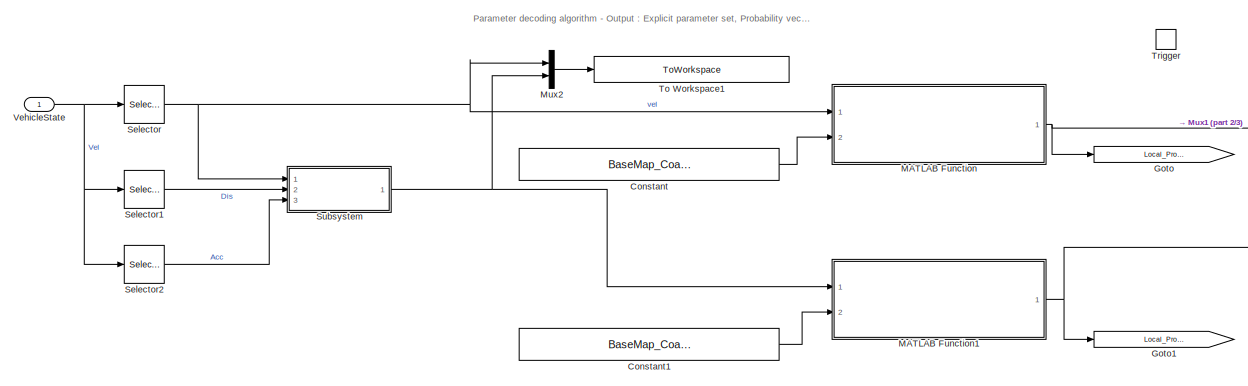
[diagram: IdmEst_CoastingStart/Explicit parameter selection - part 1/3, top center region]
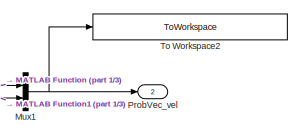
[diagram: IdmEst_CoastingStart/Explicit parameter selection - part 2/3, top right region]
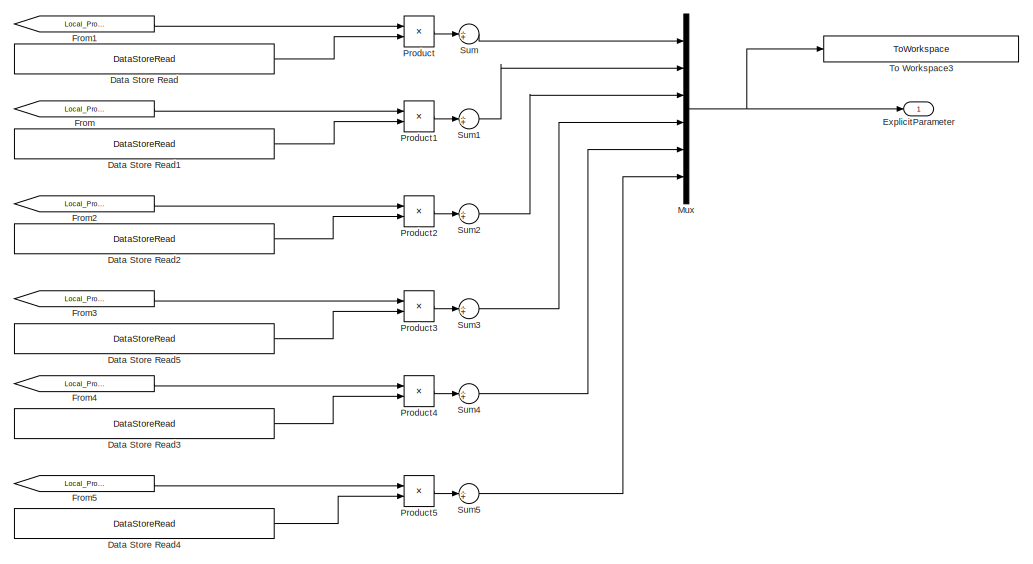
[diagram: IdmEst_CoastingStart/Explicit parameter selection - part 3/3, bottom center region]
BLOCK [SubSystem] IdmEst_CoastingStart/Explicit parameter selection
  Ports = [1, 2, 0, 1]
  RequestExecContextInheritance = off
  Variant = off
BLOCK [Constant] IdmEst_CoastingStart/Explicit parameter selection/Constant
  Value = BaseMap_CoastSpeed_Index
BLOCK [Constant] IdmEst_CoastingStart/Explicit parameter selection/Constant1
  Value = BaseMap_CoastAccdiff_Index
BLOCK [DataStoreRead] IdmEst_CoastingStart/Explicit parameter selection/Data Store Read
  DataStoreName = IdmLrn_EcpParamVec_TpInit
  Ports = [0, 1]
BLOCK [DataStoreRead] IdmEst_CoastingStart/Explicit parameter selection/Data Store Read1
  DataStoreName = IdmLrn_EcpParamVec_TpDelta
  Ports = [0, 1]
BLOCK [DataStoreRead] IdmEst_CoastingStart/Explicit parameter selection/Data Store Read2
  DataStoreName = IdmLrn_EcpParamVec_AcdStall
  Ports = [0, 1]
BLOCK [DataStoreRead] IdmEst_CoastingStart/Explicit parameter selection/Data Store Read3
  DataStoreName = IdmLrn_EcpParamVec_MaxAcc
  Ports = [0, 1]
BLOCK [DataStoreRead] IdmEst_CoastingStart/Explicit parameter selection/Data Store Read4
  DataStoreName = IdmLrn_EcpParamVec_AdjGain
  Ports = [0, 1]
BLOCK [DataStoreRead] IdmEst_CoastingStart/Explicit parameter selection/Data Store Read5
  DataStoreName = IdmLrn_EcpParamVec_AcrStall
  Ports = [0, 1]
BLOCK [Outport] IdmEst_CoastingStart/Explicit parameter selection/ExplicitParameter
  IconDisplay = Port number
  InitialOutput = zeros(6,1)
BLOCK [From] IdmEst_CoastingStart/Explicit parameter selection/From
  GotoTag = Local_ProbVec_Acc
BLOCK [From] IdmEst_CoastingStart/Explicit parameter selection/From1
  GotoTag = Local_ProbVec_Acc
BLOCK [From] IdmEst_CoastingStart/Explicit parameter selection/From2
  GotoTag = Local_ProbVec_Acc
BLOCK [From] IdmEst_CoastingStart/Explicit parameter selection/From3
  GotoTag = Local_ProbVec_Acc
BLOCK [From] IdmEst_CoastingStart/Explicit parameter selection/From4
  GotoTag = Local_ProbVec_Vel
BLOCK [From] IdmEst_CoastingStart/Explicit parameter selection/From5
  GotoTag = Local_ProbVec_Vel
BLOCK [Goto] IdmEst_CoastingStart/Explicit parameter selection/Goto
  GotoTag = Local_ProbVec_Vel
BLOCK [Goto] IdmEst_CoastingStart/Explicit parameter selection/Goto1
  GotoTag = Local_ProbVec_Acc
BLOCK [SubSystem] IdmEst_CoastingStart/Explicit parameter selection/MATLAB Function
  ErrorFcn = Stateflow.Translate.translate
  PermitHierarchicalResolution = ExplicitOnly
  Ports = [2, 1]
  RequestExecContextInheritance = off
  SFBlockType = MATLAB Function
  TreatAsAtomicUnit = on
  Variant = off
BLOCK [Demux] IdmEst_CoastingStart/Explicit parameter selection/MATLAB Function/ Demux 
  Outputs = 1
  Ports = [1, 1]
BLOCK [S-Function] IdmEst_CoastingStart/Explicit parameter selection/MATLAB Function/ SFunction 
  EnableBusSupport = on
  FunctionName = sf_sfun
  Parameters = LrnConfig
  PortCounts = [2 2]
  Ports = [2, 2]
  SFcnIsStateOwnerBlock = off
  SFunctionDeploymentMode = off
  Tag = Stateflow S-Function IdmEstimation_Cogen_Unporting_New 7
BLOCK [Terminator] IdmEst_CoastingStart/Explicit parameter selection/MATLAB Function/ Terminator 
BLOCK [Inport] IdmEst_CoastingStart/Explicit parameter selection/MATLAB Function/Data
  IconDisplay = Port number
BLOCK [Inport] IdmEst_CoastingStart/Explicit parameter selection/MATLAB Function/DataIndex
  IconDisplay = Port number
  Port = 2
BLOCK [Outport] IdmEst_CoastingStart/Explicit parameter selection/MATLAB Function/ProbVecOut
  IconDisplay = Port number
BLOCK [SubSystem] IdmEst_CoastingStart/Explicit parameter selection/MATLAB Function1
  ErrorFcn = Stateflow.Translate.translate
  PermitHierarchicalResolution = ExplicitOnly
  Ports = [2, 1]
  RequestExecContextInheritance = off
  SFBlockType = MATLAB Function
  TreatAsAtomicUnit = on
  Variant = off
BLOCK [Demux] IdmEst_CoastingStart/Explicit parameter selection/MATLAB Function1/ Demux 
  Outputs = 1
  Ports = [1, 1]
BLOCK [S-Function] IdmEst_CoastingStart/Explicit parameter selection/MATLAB Function1/ SFunction 
  EnableBusSupport = on
  FunctionName = sf_sfun
  Parameters = LrnConfig
  PortCounts = [2 2]
  Ports = [2, 2]
  SFcnIsStateOwnerBlock = off
  SFunctionDeploymentMode = off
  Tag = Stateflow S-Function IdmEstimation_Cogen_Unporting_New 6
BLOCK [Terminator] IdmEst_CoastingStart/Explicit parameter selection/MATLAB Function1/ Terminator 
BLOCK [Inport] IdmEst_CoastingStart/Explicit parameter selection/MATLAB Function1/Data
  IconDisplay = Port number
BLOCK [Inport] IdmEst_CoastingStart/Explicit parameter selection/MATLAB Function1/DataIndex
  IconDisplay = Port number
  Port = 2
BLOCK [Outport] IdmEst_CoastingStart/Explicit parameter selection/MATLAB Function1/ProbVecOut
  IconDisplay = Port number
BLOCK [Mux] IdmEst_CoastingStart/Explicit parameter selection/Mux
  DisplayOption = bar
  Inputs = 6
  Ports = [6, 1]
BLOCK [Mux] IdmEst_CoastingStart/Explicit parameter selection/Mux1
  DisplayOption = bar
  Inputs = 2
  Ports = [2, 1]
BLOCK [Mux] IdmEst_CoastingStart/Explicit parameter selection/Mux2
  DisplayOption = bar
  Inputs = 2
  Ports = [2, 1]
BLOCK [Outport] IdmEst_CoastingStart/Explicit parameter selection/ProbVec_vel
  IconDisplay = Port number
  InitialOutput = -1
  Port = 2
BLOCK [Product] IdmEst_CoastingStart/Explicit parameter selection/Product
  InputSameDT = off
  OutDataTypeStr = Inherit: Inherit via internal rule
  Ports = [2, 1]
  RndMeth = Floor
  SaturateOnIntegerOverflow = off
BLOCK [Product] IdmEst_CoastingStart/Explicit parameter selection/Product1
  InputSameDT = off
  OutDataTypeStr = Inherit: Inherit via internal rule
  Ports = [2, 1]
  RndMeth = Floor
  SaturateOnIntegerOverflow = off
BLOCK [Product] IdmEst_CoastingStart/Explicit parameter selection/Product2
  InputSameDT = off
  OutDataTypeStr = Inherit: Inherit via internal rule
  Ports = [2, 1]
  RndMeth = Floor
  SaturateOnIntegerOverflow = off
BLOCK [Product] IdmEst_CoastingStart/Explicit parameter selection/Product3
  InputSameDT = off
  OutDataTypeStr = Inherit: Inherit via internal rule
  Ports = [2, 1]
  RndMeth = Floor
  SaturateOnIntegerOverflow = off
BLOCK [Product] IdmEst_CoastingStart/Explicit parameter selection/Product4
  InputSameDT = off
  OutDataTypeStr = Inherit: Inherit via internal rule
  Ports = [2, 1]
  RndMeth = Floor
  SaturateOnIntegerOverflow = off
BLOCK [Product] IdmEst_CoastingStart/Explicit parameter selection/Product5
  InputSameDT = off
  OutDataTypeStr = Inherit: Inherit via internal rule
  Ports = [2, 1]
  RndMeth = Floor
  SaturateOnIntegerOverflow = off
BLOCK [Selector] IdmEst_CoastingStart/Explicit parameter selection/Selector
  IndexOptions = Index vector (dialog)
  Indices = OnlineConfig.VehStateIndex.Vel
  InputPortWidth = OnlineConfig.VehStateSize
  OutputSizes = 1
  Ports = [1, 1]
BLOCK [Selector] IdmEst_CoastingStart/Explicit parameter selection/Selector1
  IndexOptions = Index vector (dialog)
  Indices = OnlineConfig.VehStateIndex.Dis
  InputPortWidth = OnlineConfig.VehStateSize
  OutputSizes = 1
  Ports = [1, 1]
BLOCK [Selector] IdmEst_CoastingStart/Explicit parameter selection/Selector2
  IndexOptions = Index vector (dialog)
  Indices = OnlineConfig.VehStateIndex.Acc
  InputPortWidth = OnlineConfig.VehStateSize
  OutputSizes = 1
  Ports = [1, 1]
BLOCK [SubSystem] IdmEst_CoastingStart/Explicit parameter selection/Subsystem
  Ports = [3, 1]
  RequestExecContextInheritance = off
  Variant = off
BLOCK [Inport] IdmEst_CoastingStart/Explicit parameter selection/Subsystem/Acc
  IconDisplay = Port number
  Port = 3
BLOCK [Outport] IdmEst_CoastingStart/Explicit parameter selection/Subsystem/Accdiff
  IconDisplay = Port number
BLOCK [Constant] IdmEst_CoastingStart/Explicit parameter selection/Subsystem/Constant1
  Value = ModelConfig.StopDis
BLOCK [Constant] IdmEst_CoastingStart/Explicit parameter selection/Subsystem/Constant2
  Value = -0.5
BLOCK [Inport] IdmEst_CoastingStart/Explicit parameter selection/Subsystem/Dis
  IconDisplay = Port number
  Port = 2
BLOCK [Product] IdmEst_CoastingStart/Explicit parameter selection/Subsystem/Product1
  InputSameDT = off
  OutDataTypeStr = Inherit: Inherit via internal rule
  Ports = [2, 1]
  RndMeth = Floor
  SaturateOnIntegerOverflow = off
BLOCK [Product] IdmEst_CoastingStart/Explicit parameter selection/Subsystem/Product2
  InputSameDT = off
  Inputs = **/
  OutDataTypeStr = Inherit: Inherit via internal rule
  Ports = [3, 1]
  RndMeth = Floor
  SaturateOnIntegerOverflow = off
BLOCK [Sum] IdmEst_CoastingStart/Explicit parameter selection/Subsystem/Sum
  IconShape = round
  InputSameDT = off
  Inputs = |+-
  OutDataTypeStr = Inherit: Inherit via internal rule
  Ports = [2, 1]
  SaturateOnIntegerOverflow = off
BLOCK [Sum] IdmEst_CoastingStart/Explicit parameter selection/Subsystem/Sum1
  IconShape = round
  InputSameDT = off
  Inputs = |+-
  OutDataTypeStr = Inherit: Inherit via internal rule
  Ports = [2, 1]
  SaturateOnIntegerOverflow = off
BLOCK [Inport] IdmEst_CoastingStart/Explicit parameter selection/Subsystem/vel
  IconDisplay = Port number
BLOCK [Sum] IdmEst_CoastingStart/Explicit parameter selection/Sum
  IconShape = round
  InputSameDT = off
  Inputs = 1
  OutDataTypeStr = Inherit: Inherit via internal rule
  Ports = [1, 1]
  SaturateOnIntegerOverflow = off
BLOCK [Sum] IdmEst_CoastingStart/Explicit parameter selection/Sum1
  IconShape = round
  InputSameDT = off
  Inputs = 1
  OutDataTypeStr = Inherit: Inherit via internal rule
  Ports = [1, 1]
  SaturateOnIntegerOverflow = off
BLOCK [Sum] IdmEst_CoastingStart/Explicit parameter selection/Sum2
  IconShape = round
  InputSameDT = off
  Inputs = 1
  OutDataTypeStr = Inherit: Inherit via internal rule
  Ports = [1, 1]
  SaturateOnIntegerOverflow = off
BLOCK [Sum] IdmEst_CoastingStart/Explicit parameter selection/Sum3
  IconShape = round
  InputSameDT = off
  Inputs = 1
  OutDataTypeStr = Inherit: Inherit via internal rule
  Ports = [1, 1]
  SaturateOnIntegerOverflow = off
BLOCK [Sum] IdmEst_CoastingStart/Explicit parameter selection/Sum4
  IconShape = round
  InputSameDT = off
  Inputs = 1
  OutDataTypeStr = Inherit: Inherit via internal rule
  Ports = [1, 1]
  SaturateOnIntegerOverflow = off
BLOCK [Sum] IdmEst_CoastingStart/Explicit parameter selection/Sum5
  IconShape = round
  InputSameDT = off
  Inputs = 1
  OutDataTypeStr = Inherit: Inherit via internal rule
  Ports = [1, 1]
  SaturateOnIntegerOverflow = off
BLOCK [ToWorkspace] IdmEst_CoastingStart/Explicit parameter selection/To Workspace1
  FixptAsFi = on
  MaxDataPoints = inf
  Ports = [1]
  SampleTime = -1
  Save2DSignal = 3-D array (concatenate along third dimension)
  SaveFormat = Structure With Time
  VariableName = LogData_Start_CoastIndex
BLOCK [ToWorkspace] IdmEst_CoastingStart/Explicit parameter selection/To Workspace2
  FixptAsFi = on
  MaxDataPoints = inf
  Ports = [1]
  SampleTime = -1
  Save2DSignal = 3-D array (concatenate along third dimension)
  SaveFormat = Structure With Time
  VariableName = LogData_Start_ProbVec
BLOCK [ToWorkspace] IdmEst_CoastingStart/Explicit parameter selection/To Workspace3
  FixptAsFi = on
  MaxDataPoints = inf
  Ports = [1]
  SampleTime = -1
  Save2DSignal = 3-D array (concatenate along third dimension)
  SaveFormat = Structure With Time
  VariableName = LogData_Start_SlcParam
BLOCK [TriggerPort] IdmEst_CoastingStart/Explicit parameter selection/Trigger
  PortDimensions = 1
  Ports = []
  StatesWhenEnabling = held
  VariantControl = (inherit)
BLOCK [Inport] IdmEst_CoastingStart/Explicit parameter selection/VehicleState
  IconDisplay = Port number
BLOCK [Outport] IdmEst_CoastingStart/Explicit parameters
  IconDisplay = Port number
BLOCK [Outport] IdmEst_CoastingStart/ProbVec
  IconDisplay = Port number
  Port = 2
BLOCK [Inport] IdmEst_CoastingStart/VehState
  IconDisplay = Port number
  Port = 2
BLOCK [SubSystem] IdmLrn_ParameterUpdate
  Ports = [7, 1]
  RTWFcnNameOpts = Use subsystem name
  RTWFileNameOpts = Use subsystem name
  RTWSystemCode = Reusable function
  RequestExecContextInheritance = off
  Variant = off
BLOCK [Inport] IdmLrn_ParameterUpdate/BrakingData
  IconDisplay = Port number
  Port = 6
BLOCK [Inport] IdmLrn_ParameterUpdate/CoastFlag
  IconDisplay = Port number
  Port = 5
BLOCK [Reference] IdmLrn_ParameterUpdate/Compare To Constant  REF=simulink/Logic and Bit
Operations/Compare
To Constant
  Ports = [1, 1]
  SourceBlock = simulink/Logic and Bit\nOperations/Compare\nTo Constant
  SourceProductBaseCode = SL
  SourceProductName = Simulink
  SourceType = Compare To Constant
BLOCK [Reference] IdmLrn_ParameterUpdate/Compare To Constant1  REF=simulink/Logic and Bit
Operations/Compare
To Constant
  Ports = [1, 1]
  SourceBlock = simulink/Logic and Bit\nOperations/Compare\nTo Constant
  SourceProductBaseCode = SL
  SourceProductName = Simulink
  SourceType = Compare To Constant
BLOCK [SubSystem] IdmLrn_ParameterUpdate/End state
  Ports = [3, 1, 0, 1]
  RequestExecContextInheritance = off
  Variant = off
BLOCK [Inport] IdmLrn_ParameterUpdate/End state/BrakingDataArry
  IconDisplay = Port number
BLOCK [Display] IdmLrn_ParameterUpdate/End state/Display
  Decimation = 1
  Ports = [1]
BLOCK [Display] IdmLrn_ParameterUpdate/End state/Display1
  Decimation = 1
  Ports = [1]
BLOCK [Outport] IdmLrn_ParameterUpdate/End state/LearningParameter
  IconDisplay = Port number
  InitialOutput = zeros(1,6)
BLOCK [SubSystem] IdmLrn_ParameterUpdate/End state/MATLAB Function
  ErrorFcn = Stateflow.Translate.translate
  PermitHierarchicalResolution = ExplicitOnly
  Ports = [3, 4]
  RequestExecContextInheritance = off
  SFBlockType = MATLAB Function
  TreatAsAtomicUnit = on
  Variant = off
BLOCK [Demux] IdmLrn_ParameterUpdate/End state/MATLAB Function/ Demux 
  Outputs = 1
  Ports = [1, 1]
BLOCK [S-Function] IdmLrn_ParameterUpdate/End state/MATLAB Function/ SFunction 
  EnableBusSupport = on
  FunctionName = sf_sfun
  Parameters = LrnConfig,ModelConfig,OnlineConfig
  PortCounts = [3 5]
  Ports = [3, 5]
  SFcnIsStateOwnerBlock = off
  SFunctionDeploymentMode = off
  Tag = Stateflow S-Function IdmEstimation_Cogen_Unporting_New 2
BLOCK [Terminator] IdmLrn_ParameterUpdate/End state/MATLAB Function/ Terminator 
BLOCK [Inport] IdmLrn_ParameterUpdate/End state/MATLAB Function/BrakingDataArry
  IconDisplay = Port number
BLOCK [Outport] IdmLrn_ParameterUpdate/End state/MATLAB Function/LrnParamVec
  IconDisplay = Port number
BLOCK [Outport] IdmLrn_ParameterUpdate/End state/MATLAB Function/LrnProfAccFilt
  IconDisplay = Port number
  Port = 2
BLOCK [Outport] IdmLrn_ParameterUpdate/End state/MATLAB Function/LrnProfAccRefFiltCompOut
  IconDisplay = Port number
  Port = 3
BLOCK [Outport] IdmLrn_ParameterUpdate/End state/MATLAB Function/LrnProfAccRefFiltOut
  IconDisplay = Port number
  Port = 4
BLOCK [Inport] IdmLrn_ParameterUpdate/End state/MATLAB Function/TpDisAdj
  IconDisplay = Port number
  Port = 3
BLOCK [Inport] IdmLrn_ParameterUpdate/End state/MATLAB Function/Tp_Shift
  IconDisplay = Port number
  Port = 2
BLOCK [Inport] IdmLrn_ParameterUpdate/End state/PreStateResult
  IconDisplay = Port number
  Port = 3
BLOCK [Selector] IdmLrn_ParameterUpdate/End state/Selector9
  IndexOptions = Index vector (dialog)
  Indices = ModelConfig.stState.Disadj
  InputPortWidth = ModelConfig.stStateSize
  OutputSizes = 1
  Ports = [1, 1]
BLOCK [Inport] IdmLrn_ParameterUpdate/End state/Shift_Step
  IconDisplay = Port number
  Port = 2
BLOCK [Terminator] IdmLrn_ParameterUpdate/End state/Terminator
BLOCK [Terminator] IdmLrn_ParameterUpdate/End state/Terminator1
BLOCK [Terminator] IdmLrn_ParameterUpdate/End state/Terminator2
BLOCK [ToWorkspace] IdmLrn_ParameterUpdate/End state/To Workspace
  FixptAsFi = on
  MaxDataPoints = inf
  Ports = [1]
  SampleTime = -1
  SaveFormat = Structure With Time
  VariableName = LogData_Stop_VelRefDiff
BLOCK [ToWorkspace] IdmLrn_ParameterUpdate/End state/To Workspace1
  FixptAsFi = on
  MaxDataPoints = inf
  Ports = [1]
  SampleTime = -1
  Save2DSignal = 3-D array (concatenate along third dimension)
  SaveFormat = Structure With Time
  VariableName = LogData_Stop_LrnParam
BLOCK [ToWorkspace] IdmLrn_ParameterUpdate/End state/To Workspace2
  FixptAsFi = on
  MaxDataPoints = inf
  Ports = [1]
  SampleTime = -1
  Save2DSignal = 3-D array (concatenate along third dimension)
  SaveFormat = Structure With Time
  VariableName = LogData_Stop_BrakingDataArray
BLOCK [ToWorkspace] IdmLrn_ParameterUpdate/End state/To Workspace3
  FixptAsFi = on
  MaxDataPoints = inf
  Ports = [1]
  SampleTime = -1
  Save2DSignal = 3-D array (concatenate along third dimension)
  SaveFormat = Structure With Time
  VariableName = LogData_Stop_BrakingState
BLOCK [ToWorkspace] IdmLrn_ParameterUpdate/End state/To Workspace4
  FixptAsFi = on
  MaxDataPoints = inf
  Ports = [1]
  SampleTime = -1
  SaveFormat = Structure With Time
  VariableName = LogData_Stop_AccRefFilt
BLOCK [TriggerPort] IdmLrn_ParameterUpdate/End state/Trigger
  PortDimensions = 1
  Ports = []
  StatesWhenEnabling = held
  VariantControl = (inherit)
BLOCK [Inport] IdmLrn_ParameterUpdate/Explicit parameter
  IconDisplay = Port number
  Port = 3
BLOCK [Inport] IdmLrn_ParameterUpdate/In2
  IconDisplay = Port number
  Port = 2
BLOCK [Outport] IdmLrn_ParameterUpdate/LearningParameter
  IconDisplay = Port number
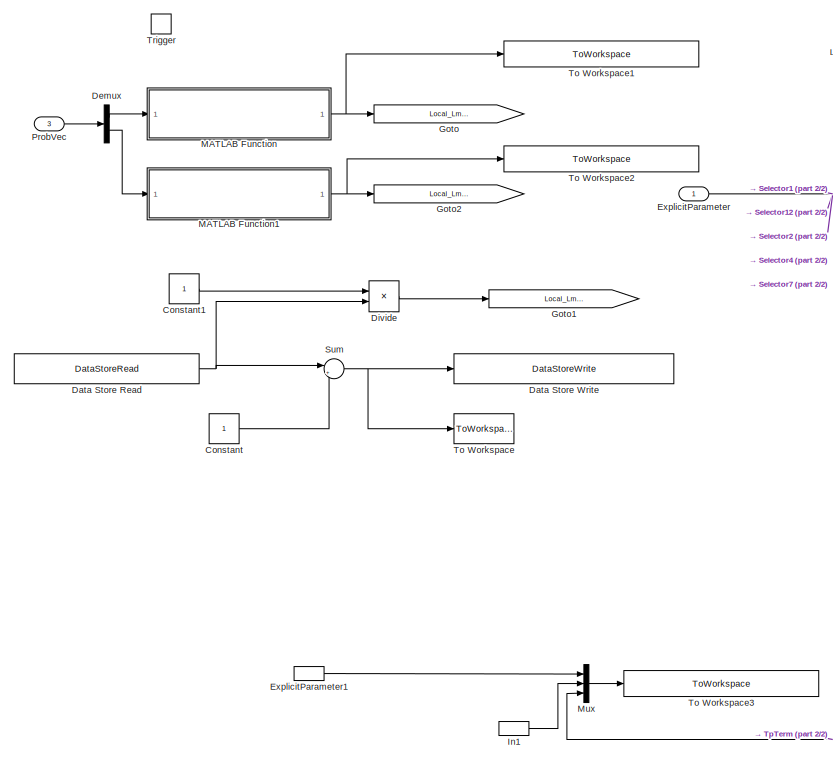
[diagram: IdmLrn_ParameterUpdate/Parameter update - part 1/2, left side, full height]
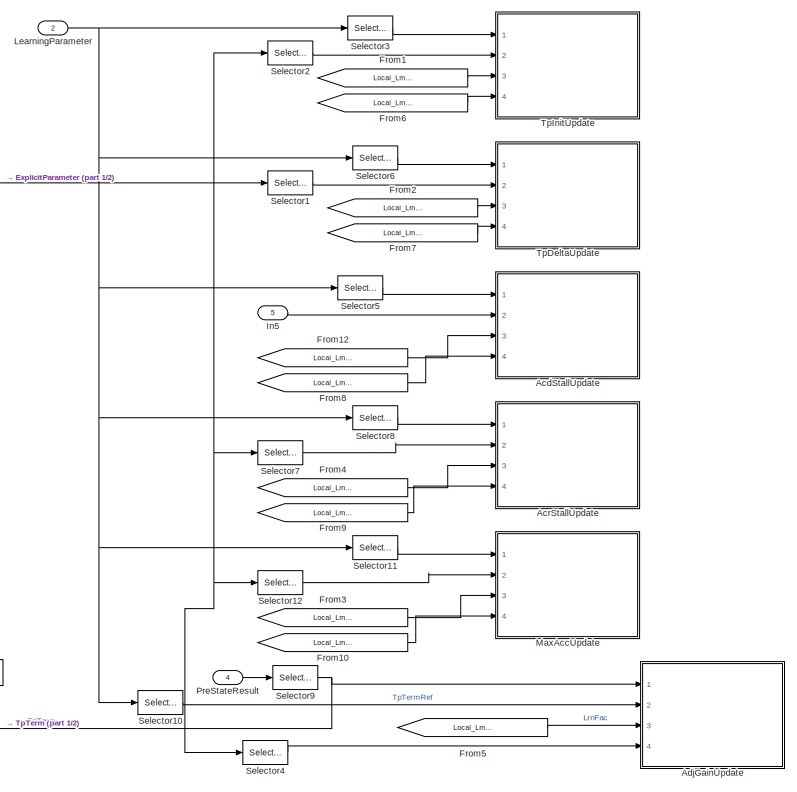
[diagram: IdmLrn_ParameterUpdate/Parameter update - part 2/2, right side, full height]
BLOCK [SubSystem] IdmLrn_ParameterUpdate/Parameter update
  Ports = [5, 0, 0, 1]
  RequestExecContextInheritance = off
  Variant = off
BLOCK [SubSystem] IdmLrn_ParameterUpdate/Parameter update/AcdStallUpdate
  Ports = [4]
  RequestExecContextInheritance = off
  Variant = off
BLOCK [Inport] IdmLrn_ParameterUpdate/Parameter update/AcdStallUpdate/AcdStall
  IconDisplay = Port number
  Port = 2
BLOCK [Inport] IdmLrn_ParameterUpdate/Parameter update/AcdStallUpdate/AcdStallREf
  IconDisplay = Port number
BLOCK [Constant] IdmLrn_ParameterUpdate/Parameter update/AcdStallUpdate/Constant1
  Value = LrnConfig.ExpUpdateGain
BLOCK [Constant] IdmLrn_ParameterUpdate/Parameter update/AcdStallUpdate/Constant2
  Value = LrnConfig.LrnSwt
BLOCK [DataStoreRead] IdmLrn_ParameterUpdate/Parameter update/AcdStallUpdate/Data Store Read3
  DataStoreName = IdmLrn_EcpParamVec_AcdStall
  Ports = [0, 1]
BLOCK [DataStoreWrite] IdmLrn_ParameterUpdate/Parameter update/AcdStallUpdate/Data Store Write4
  DataStoreName = IdmLrn_EcpParamVec_AcdStall
  Ports = [1]
BLOCK [Display] IdmLrn_ParameterUpdate/Parameter update/AcdStallUpdate/Display
  Decimation = 1
  Ports = [1]
BLOCK [Display] IdmLrn_ParameterUpdate/Parameter update/AcdStallUpdate/Display1
  Decimation = 1
  Ports = [1]
BLOCK [Display] IdmLrn_ParameterUpdate/Parameter update/AcdStallUpdate/Display2
  Decimation = 1
  Ports = [1]
BLOCK [Product] IdmLrn_ParameterUpdate/Parameter update/AcdStallUpdate/Divide
  InputSameDT = off
  Inputs = */
  OutDataTypeStr = Inherit: Inherit via internal rule
  Ports = [2, 1]
  RndMeth = Floor
  SaturateOnIntegerOverflow = off
BLOCK [Inport] IdmLrn_ParameterUpdate/Parameter update/AcdStallUpdate/In4
  IconDisplay = Port number
  Port = 4
BLOCK [Inport] IdmLrn_ParameterUpdate/Parameter update/AcdStallUpdate/LrnFac
  IconDisplay = Port number
  Port = 3
BLOCK [Product] IdmLrn_ParameterUpdate/Parameter update/AcdStallUpdate/Product
  InputSameDT = off
  OutDataTypeStr = Inherit: Inherit via internal rule
  Ports = [2, 1]
  RndMeth = Floor
  SaturateOnIntegerOverflow = off
BLOCK [Scope] IdmLrn_ParameterUpdate/Parameter update/AcdStallUpdate/Scope
  NumInputPorts = 1
  Ports = [1]
  ScopeSpecificationString = Simulink.scopes.TimeScopeBlockCfg('CurrentConfiguration', extmgr.ConfigurationSet(extmgr.Configuration('Core','General UI',true),extmgr.Configuration('Core','Source UI',true),extmgr.Configuration('Sources','WiredSimulink',true,'DataLoggingVariableName','ScopeData2'),extmgr.Configuration('Visuals','Time Domain',true),extmgr.Configuration('Tools','Plot Navigation',true),extmgr.Configuration('Tools',...<+40ch>
BLOCK [Sum] IdmLrn_ParameterUpdate/Parameter update/AcdStallUpdate/Sum
  IconShape = round
  InputSameDT = off
  Inputs = |+-
  OutDataTypeStr = Inherit: Inherit via internal rule
  Ports = [2, 1]
  SaturateOnIntegerOverflow = off
BLOCK [Sum] IdmLrn_ParameterUpdate/Parameter update/AcdStallUpdate/Sum1
  IconShape = round
  InputSameDT = off
  Inputs = |++
  OutDataTypeStr = Inherit: Inherit via internal rule
  Ports = [2, 1]
  SaturateOnIntegerOverflow = off
BLOCK [Switch] IdmLrn_ParameterUpdate/Parameter update/AcdStallUpdate/Switch
  Criteria = u2 > Threshold
  InputSameDT = off
  SaturateOnIntegerOverflow = off
  Threshold = 0.5
BLOCK [ToWorkspace] IdmLrn_ParameterUpdate/Parameter update/AcdStallUpdate/To Workspace
  FixptAsFi = on
  MaxDataPoints = inf
  Ports = [1]
  SampleTime = -1
  Save2DSignal = 3-D array (concatenate along third dimension)
  SaveFormat = Structure With Time
  VariableName = LrnResult_EcpParamVec_AcdStall
BLOCK [SubSystem] IdmLrn_ParameterUpdate/Parameter update/AcrStallUpdate
  Ports = [4]
  RequestExecContextInheritance = off
  Variant = off
BLOCK [Inport] IdmLrn_ParameterUpdate/Parameter update/AcrStallUpdate/ArStall
  IconDisplay = Port number
  Port = 2
BLOCK [Inport] IdmLrn_ParameterUpdate/Parameter update/AcrStallUpdate/ArStallRef
  IconDisplay = Port number
BLOCK [Constant] IdmLrn_ParameterUpdate/Parameter update/AcrStallUpdate/Constant1
  Value = LrnConfig.ExpUpdateGain
BLOCK [Constant] IdmLrn_ParameterUpdate/Parameter update/AcrStallUpdate/Constant2
  Value = LrnConfig.LrnSwt
BLOCK [DataStoreRead] IdmLrn_ParameterUpdate/Parameter update/AcrStallUpdate/Data Store Read1
  DataStoreName = IdmLrn_EcpParamVec_AcrStall
  Ports = [0, 1]
BLOCK [DataStoreWrite] IdmLrn_ParameterUpdate/Parameter update/AcrStallUpdate/Data Store Write
  DataStoreName = IdmLrn_EcpParamVec_AcrStall
  Ports = [1]
BLOCK [Display] IdmLrn_ParameterUpdate/Parameter update/AcrStallUpdate/Display
  Decimation = 1
  Ports = [1]
BLOCK [Product] IdmLrn_ParameterUpdate/Parameter update/AcrStallUpdate/Divide
  InputSameDT = off
  Inputs = */
  OutDataTypeStr = Inherit: Inherit via internal rule
  Ports = [2, 1]
  RndMeth = Floor
  SaturateOnIntegerOverflow = off
BLOCK [Inport] IdmLrn_ParameterUpdate/Parameter update/AcrStallUpdate/In4
  IconDisplay = Port number
  Port = 4
BLOCK [Inport] IdmLrn_ParameterUpdate/Parameter update/AcrStallUpdate/LrnFac
  IconDisplay = Port number
  Port = 3
BLOCK [Product] IdmLrn_ParameterUpdate/Parameter update/AcrStallUpdate/Product
  InputSameDT = off
  OutDataTypeStr = Inherit: Inherit via internal rule
  Ports = [2, 1]
  RndMeth = Floor
  SaturateOnIntegerOverflow = off
BLOCK [Sum] IdmLrn_ParameterUpdate/Parameter update/AcrStallUpdate/Sum
  IconShape = round
  InputSameDT = off
  Inputs = |+-
  OutDataTypeStr = Inherit: Inherit via internal rule
  Ports = [2, 1]
  SaturateOnIntegerOverflow = off
BLOCK [Sum] IdmLrn_ParameterUpdate/Parameter update/AcrStallUpdate/Sum1
  IconShape = round
  InputSameDT = off
  Inputs = |++
  OutDataTypeStr = Inherit: Inherit via internal rule
  Ports = [2, 1]
  SaturateOnIntegerOverflow = off
BLOCK [Switch] IdmLrn_ParameterUpdate/Parameter update/AcrStallUpdate/Switch
  Criteria = u2 > Threshold
  InputSameDT = off
  SaturateOnIntegerOverflow = off
  Threshold = 0.5
BLOCK [ToWorkspace] IdmLrn_ParameterUpdate/Parameter update/AcrStallUpdate/To Workspace
  FixptAsFi = on
  MaxDataPoints = inf
  Ports = [1]
  SampleTime = -1
  Save2DSignal = 3-D array (concatenate along third dimension)
  SaveFormat = Structure With Time
  VariableName = LrnResult_EcpParamVec_AcrStall
BLOCK [SubSystem] IdmLrn_ParameterUpdate/Parameter update/AdjGainUpdate
  Ports = [4]
  RequestExecContextInheritance = off
  Variant = off
BLOCK [Lookup_n-D] IdmLrn_ParameterUpdate/Parameter update/AdjGainUpdate/1-D Lookup Table
  BreakpointsForDimension1 = [0.005 0.5]
  InternalRulePriority = Speed
  NumberOfTableDimensions = 1
  Ports = [1, 1]
  RndMeth = Simplest
  Table = [1e-5 5e-4]
BLOCK [Inport] IdmLrn_ParameterUpdate/Parameter update/AdjGainUpdate/AdjGain
  IconDisplay = Port number
  Port = 4
BLOCK [Constant] IdmLrn_ParameterUpdate/Parameter update/AdjGainUpdate/Constant
  Value = LrnConfig.AdjUpdateGain
BLOCK [DataStoreRead] IdmLrn_ParameterUpdate/Parameter update/AdjGainUpdate/Data Store Read5
  DataStoreName = IdmLrn_EcpParamVec_AdjGain
  Ports = [0, 1]
BLOCK [DataStoreWrite] IdmLrn_ParameterUpdate/Parameter update/AdjGainUpdate/Data Store Write1
  DataStoreName = IdmLrn_EcpParamVec_AdjGain
  Ports = [1]
BLOCK [Display] IdmLrn_ParameterUpdate/Parameter update/AdjGainUpdate/Display
  Decimation = 1
  Ports = [1]
BLOCK [Display] IdmLrn_ParameterUpdate/Parameter update/AdjGainUpdate/Display1
  Decimation = 1
  Ports = [1]
BLOCK [Product] IdmLrn_ParameterUpdate/Parameter update/AdjGainUpdate/Divide
  InputSameDT = off
  Inputs = */
  OutDataTypeStr = Inherit: Inherit via internal rule
  Ports = [2, 1]
  RndMeth = Floor
  SaturateOnIntegerOverflow = off
BLOCK [Inport] IdmLrn_ParameterUpdate/Parameter update/AdjGainUpdate/LrnFac
  IconDisplay = Port number
  Port = 3
BLOCK [Product] IdmLrn_ParameterUpdate/Parameter update/AdjGainUpdate/Product
  InputSameDT = off
  OutDataTypeStr = Inherit: Inherit via internal rule
  Ports = [2, 1]
  RndMeth = Floor
  SaturateOnIntegerOverflow = off
BLOCK [Saturate] IdmLrn_ParameterUpdate/Parameter update/AdjGainUpdate/Saturation
  InputPortMap = u0
  LowerLimit = 0.005
  Ports = [1, 1]
BLOCK [Sum] IdmLrn_ParameterUpdate/Parameter update/AdjGainUpdate/Sum
  IconShape = round
  InputSameDT = off
  Inputs = |+-
  OutDataTypeStr = Inherit: Inherit via internal rule
  Ports = [2, 1]
  SaturateOnIntegerOverflow = off
BLOCK [Sum] IdmLrn_ParameterUpdate/Parameter update/AdjGainUpdate/Sum1
  IconShape = round
  InputSameDT = off
  Inputs = |++
  OutDataTypeStr = Inherit: Inherit via internal rule
  Ports = [2, 1]
  SaturateOnIntegerOverflow = off
BLOCK [ToWorkspace] IdmLrn_ParameterUpdate/Parameter update/AdjGainUpdate/To Workspace
  FixptAsFi = on
  MaxDataPoints = inf
  Ports = [1]
  SampleTime = -1
  Save2DSignal = 3-D array (concatenate along third dimension)
  SaveFormat = Structure With Time
  VariableName = LrnResult_EcpParamVec_AdjGain
BLOCK [Inport] IdmLrn_ParameterUpdate/Parameter update/AdjGainUpdate/TpTerm
  IconDisplay = Port number
  Port = 2
BLOCK [Inport] IdmLrn_ParameterUpdate/Parameter update/AdjGainUpdate/TpTermRef
  IconDisplay = Port number
BLOCK [Constant] IdmLrn_ParameterUpdate/Parameter update/Constant
BLOCK [Constant] IdmLrn_ParameterUpdate/Parameter update/Constant1
BLOCK [DataStoreRead] IdmLrn_ParameterUpdate/Parameter update/Data Store Read
  DataStoreName = IdmLrn_LrnNum
  Ports = [0, 1]
BLOCK [DataStoreWrite] IdmLrn_ParameterUpdate/Parameter update/Data Store Write
  DataStoreName = IdmLrn_LrnNum
  Ports = [1]
BLOCK [Demux] IdmLrn_ParameterUpdate/Parameter update/Demux
  DisplayOption = bar
  Outputs = 2
  Ports = [1, 2]
BLOCK [Product] IdmLrn_ParameterUpdate/Parameter update/Divide
  InputSameDT = off
  Inputs = */
  OutDataTypeStr = Inherit: Inherit via internal rule
  Ports = [2, 1]
  RndMeth = Floor
  SaturateOnIntegerOverflow = off
BLOCK [Inport] IdmLrn_ParameterUpdate/Parameter update/ExplicitParameter
  IconDisplay = Port number
BLOCK [InportShadow] IdmLrn_ParameterUpdate/Parameter update/ExplicitParameter1
  IconDisplay = Port number
BLOCK [From] IdmLrn_ParameterUpdate/Parameter update/From1
  GotoTag = Local_LrnDegAcc
BLOCK [From] IdmLrn_ParameterUpdate/Parameter update/From10
  GotoTag = Local_LrnNum
BLOCK [From] IdmLrn_ParameterUpdate/Parameter update/From12
  GotoTag = Local_LrnDegAcc
BLOCK [From] IdmLrn_ParameterUpdate/Parameter update/From2
  GotoTag = Local_LrnDegAcc
BLOCK [From] IdmLrn_ParameterUpdate/Parameter update/From3
  GotoTag = Local_LrnDegVel
BLOCK [From] IdmLrn_ParameterUpdate/Parameter update/From4
  GotoTag = Local_LrnDegAcc
BLOCK [From] IdmLrn_ParameterUpdate/Parameter update/From5
  GotoTag = Local_LrnDegAcc
BLOCK [From] IdmLrn_ParameterUpdate/Parameter update/From6
  GotoTag = Local_LrnNum
BLOCK [From] IdmLrn_ParameterUpdate/Parameter update/From7
  GotoTag = Local_LrnNum
BLOCK [From] IdmLrn_ParameterUpdate/Parameter update/From8
  GotoTag = Local_LrnNum
BLOCK [From] IdmLrn_ParameterUpdate/Parameter update/From9
  GotoTag = Local_LrnNum
BLOCK [Goto] IdmLrn_ParameterUpdate/Parameter update/Goto
  GotoTag = Local_LrnDegVel
BLOCK [Goto] IdmLrn_ParameterUpdate/Parameter update/Goto1
  GotoTag = Local_LrnNum
BLOCK [Goto] IdmLrn_ParameterUpdate/Parameter update/Goto2
  GotoTag = Local_LrnDegAcc
BLOCK [InportShadow] IdmLrn_ParameterUpdate/Parameter update/In1
  IconDisplay = Port number
  Port = 5
BLOCK [Inport] IdmLrn_ParameterUpdate/Parameter update/In5
  IconDisplay = Port number
  Port = 5
BLOCK [Inport] IdmLrn_ParameterUpdate/Parameter update/LearningParameter
  IconDisplay = Port number
  Port = 2
BLOCK [SubSystem] IdmLrn_ParameterUpdate/Parameter update/MATLAB Function
  ErrorFcn = Stateflow.Translate.translate
  PermitHierarchicalResolution = ExplicitOnly
  Ports = [1, 1]
  RequestExecContextInheritance = off
  SFBlockType = MATLAB Function
  TreatAsAtomicUnit = on
  Variant = off
BLOCK [Demux] IdmLrn_ParameterUpdate/Parameter update/MATLAB Function/ Demux 
  Outputs = 1
  Ports = [1, 1]
BLOCK [S-Function] IdmLrn_ParameterUpdate/Parameter update/MATLAB Function/ SFunction 
  EnableBusSupport = on
  FunctionName = sf_sfun
  Parameters = LrnConfig
  PortCounts = [1 2]
  Ports = [1, 2]
  SFcnIsStateOwnerBlock = off
  SFunctionDeploymentMode = off
  Tag = Stateflow S-Function IdmEstimation_Cogen_Unporting_New 4
BLOCK [Terminator] IdmLrn_ParameterUpdate/Parameter update/MATLAB Function/ Terminator 
BLOCK [Outport] IdmLrn_ParameterUpdate/Parameter update/MATLAB Function/LrnParamFacOut
  IconDisplay = Port number
BLOCK [Inport] IdmLrn_ParameterUpdate/Parameter update/MATLAB Function/ProbVec
  IconDisplay = Port number
BLOCK [SubSystem] IdmLrn_ParameterUpdate/Parameter update/MATLAB Function1
  ErrorFcn = Stateflow.Translate.translate
  PermitHierarchicalResolution = ExplicitOnly
  Ports = [1, 1]
  RequestExecContextInheritance = off
  SFBlockType = MATLAB Function
  TreatAsAtomicUnit = on
  Variant = off
BLOCK [Demux] IdmLrn_ParameterUpdate/Parameter update/MATLAB Function1/ Demux 
  Outputs = 1
  Ports = [1, 1]
BLOCK [S-Function] IdmLrn_ParameterUpdate/Parameter update/MATLAB Function1/ SFunction 
  EnableBusSupport = on
  FunctionName = sf_sfun
  Parameters = LrnConfig
  PortCounts = [1 2]
  Ports = [1, 2]
  SFcnIsStateOwnerBlock = off
  SFunctionDeploymentMode = off
  Tag = Stateflow S-Function IdmEstimation_Cogen_Unporting_New 8
BLOCK [Terminator] IdmLrn_ParameterUpdate/Parameter update/MATLAB Function1/ Terminator 
BLOCK [Outport] IdmLrn_ParameterUpdate/Parameter update/MATLAB Function1/LrnParamFacOut
  IconDisplay = Port number
BLOCK [Inport] IdmLrn_ParameterUpdate/Parameter update/MATLAB Function1/ProbVec
  IconDisplay = Port number
BLOCK [SubSystem] IdmLrn_ParameterUpdate/Parameter update/MaxAccUpdate
  Ports = [4]
  RequestExecContextInheritance = off
  Variant = off
BLOCK [Constant] IdmLrn_ParameterUpdate/Parameter update/MaxAccUpdate/Constant1
  Value = LrnConfig.ExpUpdateGain
BLOCK [Constant] IdmLrn_ParameterUpdate/Parameter update/MaxAccUpdate/Constant2
  Value = LrnConfig.LrnSwt
BLOCK [DataStoreRead] IdmLrn_ParameterUpdate/Parameter update/MaxAccUpdate/Data Store Read
  DataStoreName = IdmLrn_EcpParamVec_MaxAcc
  Ports = [0, 1]
BLOCK [DataStoreWrite] IdmLrn_ParameterUpdate/Parameter update/MaxAccUpdate/Data Store Write1
  DataStoreName = IdmLrn_EcpParamVec_MaxAcc
  Ports = [1]
BLOCK [Product] IdmLrn_ParameterUpdate/Parameter update/MaxAccUpdate/Divide
  InputSameDT = off
  Inputs = */
  OutDataTypeStr = Inherit: Inherit via internal rule
  Ports = [2, 1]
  RndMeth = Floor
  SaturateOnIntegerOverflow = off
BLOCK [Inport] IdmLrn_ParameterUpdate/Parameter update/MaxAccUpdate/In4
  IconDisplay = Port number
  Port = 4
BLOCK [Inport] IdmLrn_ParameterUpdate/Parameter update/MaxAccUpdate/LrnFac
  IconDisplay = Port number
  Port = 3
BLOCK [Inport] IdmLrn_ParameterUpdate/Parameter update/MaxAccUpdate/MaxAcc
  IconDisplay = Port number
  Port = 2
BLOCK [Inport] IdmLrn_ParameterUpdate/Parameter update/MaxAccUpdate/MaxAccRef
  IconDisplay = Port number
BLOCK [Product] IdmLrn_ParameterUpdate/Parameter update/MaxAccUpdate/Product
  InputSameDT = off
  OutDataTypeStr = Inherit: Inherit via internal rule
  Ports = [2, 1]
  RndMeth = Floor
  SaturateOnIntegerOverflow = off
BLOCK [Sum] IdmLrn_ParameterUpdate/Parameter update/MaxAccUpdate/Sum
  IconShape = round
  InputSameDT = off
  Inputs = |+-
  OutDataTypeStr = Inherit: Inherit via internal rule
  Ports = [2, 1]
  SaturateOnIntegerOverflow = off
BLOCK [Sum] IdmLrn_ParameterUpdate/Parameter update/MaxAccUpdate/Sum1
  IconShape = round
  InputSameDT = off
  Inputs = |++
  OutDataTypeStr = Inherit: Inherit via internal rule
  Ports = [2, 1]
  SaturateOnIntegerOverflow = off
BLOCK [Switch] IdmLrn_ParameterUpdate/Parameter update/MaxAccUpdate/Switch
  Criteria = u2 > Threshold
  InputSameDT = off
  SaturateOnIntegerOverflow = off
  Threshold = 0.5
BLOCK [ToWorkspace] IdmLrn_ParameterUpdate/Parameter update/MaxAccUpdate/To Workspace
  FixptAsFi = on
  MaxDataPoints = inf
  Ports = [1]
  SampleTime = -1
  Save2DSignal = 3-D array (concatenate along third dimension)
  SaveFormat = Structure With Time
  VariableName = LrnResult_EcpParamVec_MaxAcc
BLOCK [Mux] IdmLrn_ParameterUpdate/Parameter update/Mux
  DisplayOption = bar
  Inputs = 3
  Ports = [3, 1]
BLOCK [Inport] IdmLrn_ParameterUpdate/Parameter update/PreStateResult
  IconDisplay = Port number
  Port = 4
BLOCK [Inport] IdmLrn_ParameterUpdate/Parameter update/ProbVec
  IconDisplay = Port number
  Port = 3
BLOCK [Selector] IdmLrn_ParameterUpdate/Parameter update/Selector1
  IndexOptions = Index vector (dialog)
  Indices = OnlineConfig.EpcParamIndex.TpStall
  InputPortWidth = OnlineConfig.EpcParamSize
  OutputSizes = 1
  Ports = [1, 1]
BLOCK [Selector] IdmLrn_ParameterUpdate/Parameter update/Selector10
  IndexOptions = Index vector (dialog)
  Indices = OnlineConfig.EpcParamIndex.AdjGain
  InputPortWidth = OnlineConfig.EpcParamSize
  OutputSizes = 1
  Ports = [1, 1]
BLOCK [Selector] IdmLrn_ParameterUpdate/Parameter update/Selector11
  IndexOptions = Index vector (dialog)
  Indices = OnlineConfig.EpcParamIndex.AccMax
  InputPortWidth = OnlineConfig.EpcParamSize
  OutputSizes = 1
  Ports = [1, 1]
BLOCK [Selector] IdmLrn_ParameterUpdate/Parameter update/Selector12
  IndexOptions = Index vector (dialog)
  Indices = OnlineConfig.EpcParamIndex.AccMax
  InputPortWidth = OnlineConfig.EpcParamSize
  OutputSizes = 1
  Ports = [1, 1]
BLOCK [Selector] IdmLrn_ParameterUpdate/Parameter update/Selector2
  IndexOptions = Index vector (dialog)
  Indices = OnlineConfig.EpcParamIndex.TpInit
  InputPortWidth = OnlineConfig.EpcParamSize
  OutputSizes = 1
  Ports = [1, 1]
BLOCK [Selector] IdmLrn_ParameterUpdate/Parameter update/Selector3
  IndexOptions = Index vector (dialog)
  Indices = OnlineConfig.EpcParamIndex.TpInit
  InputPortWidth = OnlineConfig.EpcParamSize
  OutputSizes = 1
  Ports = [1, 1]
BLOCK [Selector] IdmLrn_ParameterUpdate/Parameter update/Selector4
  IndexOptions = Index vector (dialog)
  Indices = OnlineConfig.EpcParamIndex.AdjGain
  InputPortWidth = OnlineConfig.EpcParamSize
  OutputSizes = 1
  Ports = [1, 1]
BLOCK [Selector] IdmLrn_ParameterUpdate/Parameter update/Selector5
  IndexOptions = Index vector (dialog)
  Indices = OnlineConfig.EpcParamIndex.AcdStall
  InputPortWidth = OnlineConfig.EpcParamSize
  OutputSizes = 1
  Ports = [1, 1]
BLOCK [Selector] IdmLrn_ParameterUpdate/Parameter update/Selector6
  IndexOptions = Index vector (dialog)
  Indices = OnlineConfig.EpcParamIndex.TpStall
  InputPortWidth = OnlineConfig.EpcParamSize
  OutputSizes = 1
  Ports = [1, 1]
BLOCK [Selector] IdmLrn_ParameterUpdate/Parameter update/Selector7
  IndexOptions = Index vector (dialog)
  Indices = OnlineConfig.EpcParamIndex.AcrStall
  InputPortWidth = OnlineConfig.EpcParamSize
  OutputSizes = 1
  Ports = [1, 1]
BLOCK [Selector] IdmLrn_ParameterUpdate/Parameter update/Selector8
  IndexOptions = Index vector (dialog)
  Indices = OnlineConfig.EpcParamIndex.AcrStall
  InputPortWidth = OnlineConfig.EpcParamSize
  OutputSizes = 1
  Ports = [1, 1]
BLOCK [Selector] IdmLrn_ParameterUpdate/Parameter update/Selector9
  IndexOptions = Index vector (dialog)
  Indices = ModelConfig.stState.Term
  InputPortWidth = ModelConfig.stStateSize
  OutputSizes = 1
  Ports = [1, 1]
BLOCK [Sum] IdmLrn_ParameterUpdate/Parameter update/Sum
  IconShape = round
  InputSameDT = off
  Inputs = |++
  OutDataTypeStr = Inherit: Inherit via internal rule
  Ports = [2, 1]
  SaturateOnIntegerOverflow = off
BLOCK [ToWorkspace] IdmLrn_ParameterUpdate/Parameter update/To Workspace
  FixptAsFi = on
  MaxDataPoints = inf
  Ports = [1]
  SampleTime = -1
  Save2DSignal = 3-D array (concatenate along third dimension)
  SaveFormat = Structure With Time
  VariableName = LrnNum
BLOCK [ToWorkspace] IdmLrn_ParameterUpdate/Parameter update/To Workspace1
  FixptAsFi = on
  MaxDataPoints = inf
  Ports = [1]
  SampleTime = -1
  Save2DSignal = 3-D array (concatenate along third dimension)
  SaveFormat = Structure With Time
  VariableName = LogData_Stop_LrnDegVel
BLOCK [ToWorkspace] IdmLrn_ParameterUpdate/Parameter update/To Workspace2
  FixptAsFi = on
  MaxDataPoints = inf
  Ports = [1]
  SampleTime = -1
  Save2DSignal = 3-D array (concatenate along third dimension)
  SaveFormat = Structure With Time
  VariableName = LogData_Stop_LrnDegAcc
BLOCK [ToWorkspace] IdmLrn_ParameterUpdate/Parameter update/To Workspace3
  FixptAsFi = on
  MaxDataPoints = inf
  Ports = [1]
  SampleTime = -1
  Save2DSignal = 3-D array (concatenate along third dimension)
  SaveFormat = Structure With Time
  VariableName = LogData_Stop_SlcParam
BLOCK [SubSystem] IdmLrn_ParameterUpdate/Parameter update/TpDeltaUpdate
  Ports = [4]
  RequestExecContextInheritance = off
  Variant = off
BLOCK [Constant] IdmLrn_ParameterUpdate/Parameter update/TpDeltaUpdate/Constant
  Value = LrnConfig.ExpUpdateGain
BLOCK [Constant] IdmLrn_ParameterUpdate/Parameter update/TpDeltaUpdate/Constant1
  Value = LrnConfig.LrnSwt
BLOCK [DataStoreRead] IdmLrn_ParameterUpdate/Parameter update/TpDeltaUpdate/Data Store Read2
  DataStoreName = IdmLrn_EcpParamVec_TpDelta
  Ports = [0, 1]
BLOCK [DataStoreWrite] IdmLrn_ParameterUpdate/Parameter update/TpDeltaUpdate/Data Store Write3
  DataStoreName = IdmLrn_EcpParamVec_TpDelta
  Ports = [1]
BLOCK [Product] IdmLrn_ParameterUpdate/Parameter update/TpDeltaUpdate/Divide
  InputSameDT = off
  Inputs = */
  OutDataTypeStr = Inherit: Inherit via internal rule
  Ports = [2, 1]
  RndMeth = Floor
  SaturateOnIntegerOverflow = off
BLOCK [Inport] IdmLrn_ParameterUpdate/Parameter update/TpDeltaUpdate/In4
  IconDisplay = Port number
  Port = 4
BLOCK [Inport] IdmLrn_ParameterUpdate/Parameter update/TpDeltaUpdate/LrnFac
  IconDisplay = Port number
  Port = 3
BLOCK [Product] IdmLrn_ParameterUpdate/Parameter update/TpDeltaUpdate/Product
  InputSameDT = off
  OutDataTypeStr = Inherit: Inherit via internal rule
  Ports = [2, 1]
  RndMeth = Floor
  SaturateOnIntegerOverflow = off
BLOCK [Sum] IdmLrn_ParameterUpdate/Parameter update/TpDeltaUpdate/Sum
  IconShape = round
  InputSameDT = off
  Inputs = |+-
  OutDataTypeStr = Inherit: Inherit via internal rule
  Ports = [2, 1]
  SaturateOnIntegerOverflow = off
BLOCK [Sum] IdmLrn_ParameterUpdate/Parameter update/TpDeltaUpdate/Sum1
  IconShape = round
  InputSameDT = off
  Inputs = |++
  OutDataTypeStr = Inherit: Inherit via internal rule
  Ports = [2, 1]
  SaturateOnIntegerOverflow = off
BLOCK [Switch] IdmLrn_ParameterUpdate/Parameter update/TpDeltaUpdate/Switch
  Criteria = u2 > Threshold
  InputSameDT = off
  SaturateOnIntegerOverflow = off
  Threshold = 0.5
BLOCK [ToWorkspace] IdmLrn_ParameterUpdate/Parameter update/TpDeltaUpdate/To Workspace
  FixptAsFi = on
  MaxDataPoints = inf
  Ports = [1]
  SampleTime = -1
  Save2DSignal = 3-D array (concatenate along third dimension)
  SaveFormat = Structure With Time
  VariableName = LrnResult_EcpParamVec_TpDelta
BLOCK [Inport] IdmLrn_ParameterUpdate/Parameter update/TpDeltaUpdate/TpStall
  IconDisplay = Port number
  Port = 2
BLOCK [Inport] IdmLrn_ParameterUpdate/Parameter update/TpDeltaUpdate/TpStallRef
  IconDisplay = Port number
BLOCK [SubSystem] IdmLrn_ParameterUpdate/Parameter update/TpInitUpdate
  Ports = [4]
  RequestExecContextInheritance = off
  Variant = off
BLOCK [Constant] IdmLrn_ParameterUpdate/Parameter update/TpInitUpdate/Constant
  Value = LrnConfig.ExpUpdateGain
BLOCK [Constant] IdmLrn_ParameterUpdate/Parameter update/TpInitUpdate/Constant1
  Value = LrnConfig.LrnSwt
BLOCK [DataStoreRead] IdmLrn_ParameterUpdate/Parameter update/TpInitUpdate/Data Store Read2
  DataStoreName = IdmLrn_EcpParamVec_TpInit
  Ports = [0, 1]
BLOCK [DataStoreWrite] IdmLrn_ParameterUpdate/Parameter update/TpInitUpdate/Data Store Write2
  DataStoreName = IdmLrn_EcpParamVec_TpInit
  Ports = [1]
BLOCK [Display] IdmLrn_ParameterUpdate/Parameter update/TpInitUpdate/Display
  Decimation = 1
  Ports = [1]
BLOCK [Product] IdmLrn_ParameterUpdate/Parameter update/TpInitUpdate/Divide
  InputSameDT = off
  Inputs = */
  OutDataTypeStr = Inherit: Inherit via internal rule
  Ports = [2, 1]
  RndMeth = Floor
  SaturateOnIntegerOverflow = off
BLOCK [Inport] IdmLrn_ParameterUpdate/Parameter update/TpInitUpdate/In4
  IconDisplay = Port number
  Port = 4
BLOCK [Inport] IdmLrn_ParameterUpdate/Parameter update/TpInitUpdate/LrnFac
  IconDisplay = Port number
  Port = 3
BLOCK [Product] IdmLrn_ParameterUpdate/Parameter update/TpInitUpdate/Product
  InputSameDT = off
  OutDataTypeStr = Inherit: Inherit via internal rule
  Ports = [2, 1]
  RndMeth = Floor
  SaturateOnIntegerOverflow = off
BLOCK [Sum] IdmLrn_ParameterUpdate/Parameter update/TpInitUpdate/Sum
  IconShape = round
  InputSameDT = off
  Inputs = |+-
  OutDataTypeStr = Inherit: Inherit via internal rule
  Ports = [2, 1]
  SaturateOnIntegerOverflow = off
BLOCK [Sum] IdmLrn_ParameterUpdate/Parameter update/TpInitUpdate/Sum1
  IconShape = round
  InputSameDT = off
  Inputs = |++
  OutDataTypeStr = Inherit: Inherit via internal rule
  Ports = [2, 1]
  SaturateOnIntegerOverflow = off
BLOCK [Switch] IdmLrn_ParameterUpdate/Parameter update/TpInitUpdate/Switch
  Criteria = u2 > Threshold
  InputSameDT = off
  SaturateOnIntegerOverflow = off
  Threshold = 0.5
BLOCK [ToWorkspace] IdmLrn_ParameterUpdate/Parameter update/TpInitUpdate/To Workspace
  FixptAsFi = on
  MaxDataPoints = inf
  Ports = [1]
  SampleTime = -1
  Save2DSignal = 3-D array (concatenate along third dimension)
  SaveFormat = Structure With Time
  VariableName = LrnResult_EcpParamVec_TpInit
BLOCK [Inport] IdmLrn_ParameterUpdate/Parameter update/TpInitUpdate/TpInit
  IconDisplay = Port number
  Port = 2
BLOCK [Inport] IdmLrn_ParameterUpdate/Parameter update/TpInitUpdate/TpInitRef
  IconDisplay = Port number
BLOCK [TriggerPort] IdmLrn_ParameterUpdate/Parameter update/Trigger
  PortDimensions = 1
  Ports = []
  StatesWhenEnabling = held
  VariantControl = (inherit)
BLOCK [Inport] IdmLrn_ParameterUpdate/PreStateResult
  IconDisplay = Port number
BLOCK [Inport] IdmLrn_ParameterUpdate/ProbVec
  IconDisplay = Port number
  Port = 4
BLOCK [Inport] IdmLrn_ParameterUpdate/Shift_Step
  IconDisplay = Port number
  Port = 7
BLOCK [SubSystem] IdmMng_CoastingConditionManager
  Ports = [2, 2]
  RTWFcnNameOpts = Use subsystem name
  RTWFileNameOpts = Use subsystem name
  RequestExecContextInheritance = off
  ShowPortLabels = FromPortBlockName
  Variant = off
BLOCK [SubSystem] IdmMng_CoastingConditionManager/Chart
  ErrorFcn = Stateflow.Translate.translate
  PermitHierarchicalResolution = ExplicitOnly
  Ports = [3, 2]
  RequestExecContextInheritance = off
  SFBlockType = Chart
  TreatAsAtomicUnit = on
  Variant = off
BLOCK [Demux] IdmMng_CoastingConditionManager/Chart/ Demux 
  Outputs = 1
  Ports = [1, 1]
BLOCK [S-Function] IdmMng_CoastingConditionManager/Chart/ SFunction 
  EnableBusSupport = on
  FunctionName = sf_sfun
  Parameters = OnlineConfig
  PortCounts = [3 3]
  Ports = [3, 3]
  SFcnIsStateOwnerBlock = off
  SFunctionDeploymentMode = off
  Tag = Stateflow S-Function IdmEstimation_Cogen_Unporting_New 1
BLOCK [Terminator] IdmMng_CoastingConditionManager/Chart/ Terminator 
BLOCK [Inport] IdmMng_CoastingConditionManager/Chart/Aps
  IconDisplay = Port number
BLOCK [Inport] IdmMng_CoastingConditionManager/Chart/Dis
  IconDisplay = Port number
  Port = 3
BLOCK [Inport] IdmMng_CoastingConditionManager/Chart/Vel
  IconDisplay = Port number
  Port = 2
BLOCK [Outport] IdmMng_CoastingConditionManager/Chart/stCoastFlag
  IconDisplay = Port number
  Port = 2
BLOCK [Outport] IdmMng_CoastingConditionManager/Chart/stDrvState
  IconDisplay = Port number
BLOCK [Outport] IdmMng_CoastingConditionManager/CoastFlag
  IconDisplay = Port number
BLOCK [Constant] IdmMng_CoastingConditionManager/Constant
  Value = 0
BLOCK [Outport] IdmMng_CoastingConditionManager/DrivingState
  IconDisplay = Port number
  Port = 2
BLOCK [Inport] IdmMng_CoastingConditionManager/EnableSw
  IconDisplay = Port number
  Port = 2
BLOCK [Selector] IdmMng_CoastingConditionManager/Selector
  IndexOptions = Index vector (dialog)
  Indices = OnlineConfig.VehStateIndex.Aps
  InputPortWidth = OnlineConfig.VehStateSize
  OutputSizes = 1
  Ports = [1, 1]
BLOCK [Selector] IdmMng_CoastingConditionManager/Selector1
  IndexOptions = Index vector (dialog)
  Indices = OnlineConfig.VehStateIndex.Vel
  InputPortWidth = OnlineConfig.VehStateSize
  OutputSizes = 1
  Ports = [1, 1]
BLOCK [Selector] IdmMng_CoastingConditionManager/Selector2
  IndexOptions = Index vector (dialog)
  Indices = OnlineConfig.VehStateIndex.Dis
  InputPortWidth = OnlineConfig.VehStateSize
  OutputSizes = 1
  Ports = [1, 1]
BLOCK [Switch] IdmMng_CoastingConditionManager/Switch
  InputSameDT = off
  SaturateOnIntegerOverflow = off
  Threshold = 0.5
BLOCK [Switch] IdmMng_CoastingConditionManager/Switch1
  InputSameDT = off
  SaturateOnIntegerOverflow = off
  Threshold = 0.5
BLOCK [Inport] IdmMng_CoastingConditionManager/VehicleState
  IconDisplay = Port number
BLOCK [Outport] LearningParameter
  IconDisplay = Port number
  Port = 4
BLOCK [Reference] Model Info  REF=simulink/Model-Wide
Utilities/Model Info
  Ports = []
  SourceBlock = simulink/Model-Wide\nUtilities/Model Info
  SourceProductBaseCode = SL
  SourceProductName = Simulink
  SourceType = CMBlock
BLOCK [Mux] Mux1
  DisplayOption = bar
  Inputs = 5
  Ports = [5, 1]
BLOCK [Scope] Scope1
  NumInputPorts = 1
  Ports = [1]
  ScopeSpecificationString = Simulink.scopes.TimeScopeBlockCfg('CurrentConfiguration', extmgr.ConfigurationSet(extmgr.Configuration('Core','General UI',true),extmgr.Configuration('Core','Source UI',true),extmgr.Configuration('Sources','WiredSimulink',true,'DataLoggingVariableName','ScopeData5'),extmgr.Configuration('Visuals','Time Domain',true,'SerializedDisplays',{struct('MinYLimReal','-6.4806','MaxYLimReal','6.33496','YLabe...<+1845ch>
ANNOTATION (root): Estimation
ANNOTATION (root): Explicit parameters - Determination from reference velocity profile
ANNOTATION (root): Parameter management
ANNOTATION IdmEst_AccEstimation/Model profile update/Model profile update - Coast state/RefAccCalc: tmpLoc_ModProf_acc_ref(index_curstep+1) = -0.5*tmpLoc_Mod_vel_est(index_curstep+1).^2/(tmpLoc_Mod_dis_est(index_curstep+1) - DrvConfig.StopDis);
ANNOTATION IdmEst_AccEstimation/Model profile update/Model profile update - Disadj state/RefAccCalc: tmpLoc_ModProf_acc_ref(index_curstep+1) = -0.5*tmpLoc_Mod_vel_est(index_curstep+1).^2/(tmpLoc_Mod_dis_est(index_curstep+1) - DrvConfig.StopDis);
ANNOTATION IdmEst_AccEstimation/Model profile update/Model profile update - Initial state/RefAccCalc: tmpLoc_ModProf_acc_ref(index_curstep+1) = -0.5*tmpLoc_Mod_vel_est(index_curstep+1).^2/(tmpLoc_Mod_dis_est(index_curstep+1) - DrvConfig.StopDis);
ANNOTATION IdmEst_AccEstimation/Model profile update/Model profile update - Term state/RefAccCalc: tmpLoc_ModProf_acc_ref(index_curstep+1) = -0.5*tmpLoc_Mod_vel_est(index_curstep+1).^2/(tmpLoc_Mod_dis_est(index_curstep+1) - DrvConfig.StopDis);
ANNOTATION IdmEst_AccEstimation/Model profile update/Model profile update - Veladj state/RefAccCalc: tmpLoc_ModProf_acc_ref(index_curstep+1) = -0.5*tmpLoc_Mod_vel_est(index_curstep+1).^2/(tmpLoc_Mod_dis_est(index_curstep+1) - DrvConfig.StopDis);
ANNOTATION IdmEst_AccEstimation/Parameter management: Calculation parameters
ANNOTATION IdmEst_CoastingStart/Explicit parameter selection: Parameter decoding algorithm - Output : Explicit parameter set, Probability vector
ANNOTATION IdmEst_CoastingStart/Explicit parameter selection/Subsystem: -0.5*tmpLoc_Mod_vel_est(index_curstep).^2/(tmpLoc_Mod_dis_est(index_curstep) - ModelConfig.StopDis);
LINE BrakingDataStorage/Compare To Constant1:1 -> BrakingDataStorage/Start state:enable
LINE BrakingDataStorage/DrivingState:1 -> BrakingDataStorage/Compare To Constant1:1
NET BrakingDataStorage/Start state/MATLAB Function1:1 -> BrakingDataStorage/Start state/Out1:1, BrakingDataStorage/Start state/Scope1:1
LINE BrakingDataStorage/Start state/MATLAB Function:1 -> BrakingDataStorage/Start state/BrakingData:1
NET BrakingDataStorage/Start state/Selector:1 -> BrakingDataStorage/Start state/MATLAB Function1:1, BrakingDataStorage/Start state/Scope:1
NET BrakingDataStorage/Start state/veh_state:1 -> BrakingDataStorage/Start state/MATLAB Function:1, BrakingDataStorage/Start state/Selector:1
LINE BrakingDataStorage/Start state:1 -> BrakingDataStorage/BrakingData:1
LINE BrakingDataStorage/Start state:2 -> BrakingDataStorage/Shift_Step:1
LINE BrakingDataStorage/VehState:1 -> BrakingDataStorage/Start state:1
LINE BrakingDataStorage:1 -> IdmLrn_ParameterUpdate:6
LINE BrakingDataStorage:2 -> IdmLrn_ParameterUpdate:7
LINE From Workspace1:1 -> Mux1:2
LINE From Workspace2:1 -> Mux1:3
LINE From Workspace3:1 -> Mux1:4
LINE From Workspace4:1 -> Mux1:5
LINE From Workspace5:1 -> IdmMng_CoastingConditionManager:2
LINE From Workspace:1 -> Mux1:1
LINE IdmEst_AccEstimation/Acceleration reconstruction/Constant2:1 -> IdmEst_AccEstimation/Acceleration reconstruction/Product1:2
LINE IdmEst_AccEstimation/Acceleration reconstruction/Constant3:1 -> IdmEst_AccEstimation/Acceleration reconstruction/Product2:1
LINE IdmEst_AccEstimation/Acceleration reconstruction/Constant:1 -> IdmEst_AccEstimation/Acceleration reconstruction/Sum:1
LINE IdmEst_AccEstimation/Acceleration reconstruction/Demux:1 -> IdmEst_AccEstimation/Acceleration reconstruction/Terminator:1
LINE IdmEst_AccEstimation/Acceleration reconstruction/Demux:2 -> IdmEst_AccEstimation/Acceleration reconstruction/Mux:2
NET IdmEst_AccEstimation/Acceleration reconstruction/Demux:3 -> IdmEst_AccEstimation/Acceleration reconstruction/Sum1:1, IdmEst_AccEstimation/Acceleration reconstruction/VelEff:1
NET IdmEst_AccEstimation/Acceleration reconstruction/Demux:4 -> IdmEst_AccEstimation/Acceleration reconstruction/Mux:4, IdmEst_AccEstimation/Acceleration reconstruction/VelEff:2
NET IdmEst_AccEstimation/Acceleration reconstruction/Demux:5 -> IdmEst_AccEstimation/Acceleration reconstruction/DisEff:1, IdmEst_AccEstimation/Acceleration reconstruction/Sum2:1
NET IdmEst_AccEstimation/Acceleration reconstruction/Demux:6 -> IdmEst_AccEstimation/Acceleration reconstruction/DisEff:2, IdmEst_AccEstimation/Acceleration reconstruction/Mux:6
NET IdmEst_AccEstimation/Acceleration reconstruction/Demux:7 -> IdmEst_AccEstimation/Acceleration reconstruction/DisEff:3, IdmEst_AccEstimation/Acceleration reconstruction/Mux:7
LINE IdmEst_AccEstimation/Acceleration reconstruction/DisEff/Constant1:1 -> IdmEst_AccEstimation/Acceleration reconstruction/DisEff/Sum:3
LINE IdmEst_AccEstimation/Acceleration reconstruction/DisEff/DisAdj:1 -> IdmEst_AccEstimation/Acceleration reconstruction/DisEff/Sum:1
LINE IdmEst_AccEstimation/Acceleration reconstruction/DisEff/DisDel:1 -> IdmEst_AccEstimation/Acceleration reconstruction/DisEff/Sum:2
LINE IdmEst_AccEstimation/Acceleration reconstruction/DisEff/DisEst:1 -> IdmEst_AccEstimation/Acceleration reconstruction/DisEff/Saturation1:1
LINE IdmEst_AccEstimation/Acceleration reconstruction/DisEff/Divide1:1 -> IdmEst_AccEstimation/Acceleration reconstruction/DisEff/Math Function1:1
LINE IdmEst_AccEstimation/Acceleration reconstruction/DisEff/Math Function1:1 -> IdmEst_AccEstimation/Acceleration reconstruction/DisEff/DisEff:1
LINE IdmEst_AccEstimation/Acceleration reconstruction/DisEff/Saturation1:1 -> IdmEst_AccEstimation/Acceleration reconstruction/DisEff/Divide1:1
LINE IdmEst_AccEstimation/Acceleration reconstruction/DisEff/Sum:1 -> IdmEst_AccEstimation/Acceleration reconstruction/DisEff/Divide1:2
LINE IdmEst_AccEstimation/Acceleration reconstruction/DisEff:1 -> IdmEst_AccEstimation/Acceleration reconstruction/Sum:3
LINE IdmEst_AccEstimation/Acceleration reconstruction/From:1 -> IdmEst_AccEstimation/Acceleration reconstruction/Product:2
LINE IdmEst_AccEstimation/Acceleration reconstruction/ModelProPri_Up:1 -> IdmEst_AccEstimation/Acceleration reconstruction/Demux:1
LINE IdmEst_AccEstimation/Acceleration reconstruction/Mux:1 -> IdmEst_AccEstimation/Acceleration reconstruction/ReconstructResult:1
LINE IdmEst_AccEstimation/Acceleration reconstruction/Product1:1 -> IdmEst_AccEstimation/Acceleration reconstruction/Sum1:2
LINE IdmEst_AccEstimation/Acceleration reconstruction/Product2:1 -> IdmEst_AccEstimation/Acceleration reconstruction/Sum2:2
NET IdmEst_AccEstimation/Acceleration reconstruction/Product:1 -> IdmEst_AccEstimation/Acceleration reconstruction/Mux:1, IdmEst_AccEstimation/Acceleration reconstruction/Product1:1
LINE IdmEst_AccEstimation/Acceleration reconstruction/Saturation1:1 -> IdmEst_AccEstimation/Acceleration reconstruction/Mux:5
NET IdmEst_AccEstimation/Acceleration reconstruction/Saturation:1 -> IdmEst_AccEstimation/Acceleration reconstruction/Mux:3, IdmEst_AccEstimation/Acceleration reconstruction/Product2:2
LINE IdmEst_AccEstimation/Acceleration reconstruction/Sum1:1 -> IdmEst_AccEstimation/Acceleration reconstruction/Saturation:1
LINE IdmEst_AccEstimation/Acceleration reconstruction/Sum2:1 -> IdmEst_AccEstimation/Acceleration reconstruction/Saturation1:1
LINE IdmEst_AccEstimation/Acceleration reconstruction/Sum:1 -> IdmEst_AccEstimation/Acceleration reconstruction/Product:1
LINE IdmEst_AccEstimation/Acceleration reconstruction/VelEff/Constant:1 -> IdmEst_AccEstimation/Acceleration reconstruction/VelEff/Math Function:2
LINE IdmEst_AccEstimation/Acceleration reconstruction/VelEff/Divide:1 -> IdmEst_AccEstimation/Acceleration reconstruction/VelEff/Saturation:1
LINE IdmEst_AccEstimation/Acceleration reconstruction/VelEff/Math Function:1 -> IdmEst_AccEstimation/Acceleration reconstruction/VelEff/VelEff:1
LINE IdmEst_AccEstimation/Acceleration reconstruction/VelEff/Saturation:1 -> IdmEst_AccEstimation/Acceleration reconstruction/VelEff/Math Function:1
LINE IdmEst_AccEstimation/Acceleration reconstruction/VelEff/VelEst:1 -> IdmEst_AccEstimation/Acceleration reconstruction/VelEff/Divide:1
LINE IdmEst_AccEstimation/Acceleration reconstruction/VelEff/VelRef:1 -> IdmEst_AccEstimation/Acceleration reconstruction/VelEff/Divide:2
LINE IdmEst_AccEstimation/Acceleration reconstruction/VelEff:1 -> IdmEst_AccEstimation/Acceleration reconstruction/Sum:2
LINE IdmEst_AccEstimation/Acceleration reconstruction:1 -> IdmEst_AccEstimation/Delay:1
LINE IdmEst_AccEstimation/CoastingFlag1:1 -> IdmEst_AccEstimation/State definition:1
LINE IdmEst_AccEstimation/CoastingFlag2:1 -> IdmEst_AccEstimation/Compare To Constant1:1
LINE IdmEst_AccEstimation/CoastingFlag:1 -> IdmEst_AccEstimation/Compare To Constant:1
LINE IdmEst_AccEstimation/Compare To Constant1:1 -> IdmEst_AccEstimation/Enabled Subsystem:trigger
LINE IdmEst_AccEstimation/Compare To Constant:1 -> IdmEst_AccEstimation/Delay:2
LINE IdmEst_AccEstimation/Delay1:1 -> IdmEst_AccEstimation/Enabled Subsystem:1
NET IdmEst_AccEstimation/Delay:1 -> IdmEst_AccEstimation/EstimatedData:1, IdmEst_AccEstimation/Model profile update:3, IdmEst_AccEstimation/Parameter management:2, IdmEst_AccEstimation/State definition:3, IdmEst_AccEstimation/To Workspace:1
NET IdmEst_AccEstimation/DrivingState:1 -> IdmEst_AccEstimation/Prediction Step:1, IdmEst_AccEstimation/Scope4:1, IdmEst_AccEstimation/State definition:4
NET IdmEst_AccEstimation/EcpParam:1 -> IdmEst_AccEstimation/Display:1, IdmEst_AccEstimation/Profile Initialization1:1
LINE IdmEst_AccEstimation/Enabled Subsystem/In1:1 -> IdmEst_AccEstimation/Enabled Subsystem/To Workspace:1
LINE IdmEst_AccEstimation/Model profile update/From:1 -> IdmEst_AccEstimation/Model profile update/Model profile update - Disadj state:3
LINE IdmEst_AccEstimation/Model profile update/If:1 -> IdmEst_AccEstimation/Model profile update/Model profile update - Coast state:ifaction
LINE IdmEst_AccEstimation/Model profile update/If:2 -> IdmEst_AccEstimation/Model profile update/Model profile update - Initial state:ifaction
LINE IdmEst_AccEstimation/Model profile update/If:3 -> IdmEst_AccEstimation/Model profile update/Model profile update - Veladj state:ifaction
LINE IdmEst_AccEstimation/Model profile update/If:4 -> IdmEst_AccEstimation/Model profile update/Model profile update - Disadj state:ifaction
LINE IdmEst_AccEstimation/Model profile update/If:5 -> IdmEst_AccEstimation/Model profile update/Model profile update - Term state:ifaction
LINE IdmEst_AccEstimation/Model profile update/If:6 -> IdmEst_AccEstimation/Model profile update/Model profile update - Term state1:ifaction
LINE IdmEst_AccEstimation/Model profile update/Merge:1 -> IdmEst_AccEstimation/Model profile update/ModelProPost:1
NET IdmEst_AccEstimation/Model profile update/Model profile update - Coast state/Demux:1 -> IdmEst_AccEstimation/Model profile update/Model profile update - Coast state/Mux:1, IdmEst_AccEstimation/Model profile update/Model profile update - Coast state/RefVelCalc:2
LINE IdmEst_AccEstimation/Model profile update/Model profile update - Coast state/Demux:2 -> IdmEst_AccEstimation/Model profile update/Model profile update - Coast state/Terminator1:1
NET IdmEst_AccEstimation/Model profile update/Model profile update - Coast state/Demux:3 -> IdmEst_AccEstimation/Model profile update/Model profile update - Coast state/Mux:3, IdmEst_AccEstimation/Model profile update/Model profile update - Coast state/RefAccCalc:1
LINE IdmEst_AccEstimation/Model profile update/Model profile update - Coast state/Demux:4 -> IdmEst_AccEstimation/Model profile update/Model profile update - Coast state/RefVelCalc:1
NET IdmEst_AccEstimation/Model profile update/Model profile update - Coast state/Demux:5 -> IdmEst_AccEstimation/Model profile update/Model profile update - Coast state/Mux:5, IdmEst_AccEstimation/Model profile update/Model profile update - Coast state/RefAccCalc:2
LINE IdmEst_AccEstimation/Model profile update/Model profile update - Coast state/Demux:6 -> IdmEst_AccEstimation/Model profile update/Model profile update - Coast state/Terminator2:1
LINE IdmEst_AccEstimation/Model profile update/Model profile update - Coast state/Demux:7 -> IdmEst_AccEstimation/Model profile update/Model profile update - Coast state/Terminator3:1
LINE IdmEst_AccEstimation/Model profile update/Model profile update - Coast state/DisAdjCalc/Constant:1 -> IdmEst_AccEstimation/Model profile update/Model profile update - Coast state/DisAdjCalc/Mod_DisAdj:1
LINE IdmEst_AccEstimation/Model profile update/Model profile update - Coast state/DisAdjCalc:1 -> IdmEst_AccEstimation/Model profile update/Model profile update - Coast state/Mux:6
LINE IdmEst_AccEstimation/Model profile update/Model profile update - Coast state/DisDelCalc/Constant:1 -> IdmEst_AccEstimation/Model profile update/Model profile update - Coast state/DisDelCalc/Mod_DisDel:1
LINE IdmEst_AccEstimation/Model profile update/Model profile update - Coast state/DisDelCalc:1 -> IdmEst_AccEstimation/Model profile update/Model profile update - Coast state/Mux:7
LINE IdmEst_AccEstimation/Model profile update/Model profile update - Coast state/ModProfPri:1 -> IdmEst_AccEstimation/Model profile update/Model profile update - Coast state/Demux:1
LINE IdmEst_AccEstimation/Model profile update/Model profile update - Coast state/Mux:1 -> IdmEst_AccEstimation/Model profile update/Model profile update - Coast state/ModProf:1
LINE IdmEst_AccEstimation/Model profile update/Model profile update - Coast state/RefAccCalc/Constant1:1 -> IdmEst_AccEstimation/Model profile update/Model profile update - Coast state/RefAccCalc/Product1:1
LINE IdmEst_AccEstimation/Model profile update/Model profile update - Coast state/RefAccCalc/Constant:1 -> IdmEst_AccEstimation/Model profile update/Model profile update - Coast state/RefAccCalc/Sum:2
LINE IdmEst_AccEstimation/Model profile update/Model profile update - Coast state/RefAccCalc/Mod_DisEstPri:1 -> IdmEst_AccEstimation/Model profile update/Model profile update - Coast state/RefAccCalc/Sum:1
NET IdmEst_AccEstimation/Model profile update/Model profile update - Coast state/RefAccCalc/Mod_VelEstPri:1 -> IdmEst_AccEstimation/Model profile update/Model profile update - Coast state/RefAccCalc/Product:1, IdmEst_AccEstimation/Model profile update/Model profile update - Coast state/RefAccCalc/Product:2
LINE IdmEst_AccEstimation/Model profile update/Model profile update - Coast state/RefAccCalc/Product1:1 -> IdmEst_AccEstimation/Model profile update/Model profile update - Coast state/RefAccCalc/Mod_AccRef:1
LINE IdmEst_AccEstimation/Model profile update/Model profile update - Coast state/RefAccCalc/Product:1 -> IdmEst_AccEstimation/Model profile update/Model profile update - Coast state/RefAccCalc/Product1:2
LINE IdmEst_AccEstimation/Model profile update/Model profile update - Coast state/RefAccCalc/Sum:1 -> IdmEst_AccEstimation/Model profile update/Model profile update - Coast state/RefAccCalc/Product1:3
LINE IdmEst_AccEstimation/Model profile update/Model profile update - Coast state/RefAccCalc:1 -> IdmEst_AccEstimation/Model profile update/Model profile update - Coast state/Mux:2
LINE IdmEst_AccEstimation/Model profile update/Model profile update - Coast state/RefVelCalc/AccEst:1 -> IdmEst_AccEstimation/Model profile update/Model profile update - Coast state/RefVelCalc/Product:1
LINE IdmEst_AccEstimation/Model profile update/Model profile update - Coast state/RefVelCalc/Constant:1 -> IdmEst_AccEstimation/Model profile update/Model profile update - Coast state/RefVelCalc/Product:2
LINE IdmEst_AccEstimation/Model profile update/Model profile update - Coast state/RefVelCalc/Mod_VelRefPri:1 -> IdmEst_AccEstimation/Model profile update/Model profile update - Coast state/RefVelCalc/Sum:1
LINE IdmEst_AccEstimation/Model profile update/Model profile update - Coast state/RefVelCalc/Product:1 -> IdmEst_AccEstimation/Model profile update/Model profile update - Coast state/RefVelCalc/Sum:2
LINE IdmEst_AccEstimation/Model profile update/Model profile update - Coast state/RefVelCalc/Sum:1 -> IdmEst_AccEstimation/Model profile update/Model profile update - Coast state/RefVelCalc/Mod_VelRef:1
LINE IdmEst_AccEstimation/Model profile update/Model profile update - Coast state/RefVelCalc:1 -> IdmEst_AccEstimation/Model profile update/Model profile update - Coast state/Mux:4
LINE IdmEst_AccEstimation/Model profile update/Model profile update - Coast state:1 -> IdmEst_AccEstimation/Model profile update/Merge:1
LINE IdmEst_AccEstimation/Model profile update/Model profile update - Disadj state/Demux:1 -> IdmEst_AccEstimation/Model profile update/Model profile update - Disadj state/Mux:1
LINE IdmEst_AccEstimation/Model profile update/Model profile update - Disadj state/Demux:2 -> IdmEst_AccEstimation/Model profile update/Model profile update - Disadj state/Terminator1:1
NET IdmEst_AccEstimation/Model profile update/Model profile update - Disadj state/Demux:3 -> IdmEst_AccEstimation/Model profile update/Model profile update - Disadj state/Mux:3, IdmEst_AccEstimation/Model profile update/Model profile update - Disadj state/RefAccCalc:1, IdmEst_AccEstimation/Model profile update/Model profile update - Disadj state/RefVelCalc:1
LINE IdmEst_AccEstimation/Model profile update/Model profile update - Disadj state/Demux:4 -> IdmEst_AccEstimation/Model profile update/Model profile update - Disadj state/Terminator:1
NET IdmEst_AccEstimation/Model profile update/Model profile update - Disadj state/Demux:5 -> IdmEst_AccEstimation/Model profile update/Model profile update - Disadj state/DisAdjCalc:1, IdmEst_AccEstimation/Model profile update/Model profile update - Disadj state/Mux:5, IdmEst_AccEstimation/Model profile update/Model profile update - Disadj state/RefAccCalc:2, IdmEst_AccEstimation/Model profile update/Model profile update - Disadj state/RefVelCalc:2
LINE IdmEst_AccEstimation/Model profile update/Model profile update - Disadj state/Demux:6 -> IdmEst_AccEstimation/Model profile update/Model profile update - Disadj state/Terminator2:1
LINE IdmEst_AccEstimation/Model profile update/Model profile update - Disadj state/Demux:7 -> IdmEst_AccEstimation/Model profile update/Model profile update - Disadj state/DisDelCalc:1
LINE IdmEst_AccEstimation/Model profile update/Model profile update - Disadj state/DisAdjCalc/Mod_DisEstPri:1 -> IdmEst_AccEstimation/Model profile update/Model profile update - Disadj state/DisAdjCalc/Mod_DisAdj:1
NET IdmEst_AccEstimation/Model profile update/Model profile update - Disadj state/DisAdjCalc:1 -> IdmEst_AccEstimation/Model profile update/Model profile update - Disadj state/Mux:6, IdmEst_AccEstimation/Model profile update/Model profile update - Disadj state/RefVelCalc:3
LINE IdmEst_AccEstimation/Model profile update/Model profile update - Disadj state/DisDelCalc/In3:1 -> IdmEst_AccEstimation/Model profile update/Model profile update - Disadj state/DisDelCalc/Product:2
LINE IdmEst_AccEstimation/Model profile update/Model profile update - Disadj state/DisDelCalc/Mod_DisDelPri:1 -> IdmEst_AccEstimation/Model profile update/Model profile update - Disadj state/DisDelCalc/Sum:1
LINE IdmEst_AccEstimation/Model profile update/Model profile update - Disadj state/DisDelCalc/ModelParam:1 -> IdmEst_AccEstimation/Model profile update/Model profile update - Disadj state/DisDelCalc/Selector:1
LINE IdmEst_AccEstimation/Model profile update/Model profile update - Disadj state/DisDelCalc/Product:1 -> IdmEst_AccEstimation/Model profile update/Model profile update - Disadj state/DisDelCalc/Sum:2
LINE IdmEst_AccEstimation/Model profile update/Model profile update - Disadj state/DisDelCalc/Selector:1 -> IdmEst_AccEstimation/Model profile update/Model profile update - Disadj state/DisDelCalc/Product:1
LINE IdmEst_AccEstimation/Model profile update/Model profile update - Disadj state/DisDelCalc/Sum:1 -> IdmEst_AccEstimation/Model profile update/Model profile update - Disadj state/DisDelCalc/Mod_DisDel:1
LINE IdmEst_AccEstimation/Model profile update/Model profile update - Disadj state/DisDelCalc:1 -> IdmEst_AccEstimation/Model profile update/Model profile update - Disadj state/Mux:7
LINE IdmEst_AccEstimation/Model profile update/Model profile update - Disadj state/EcpParam_AdjGain:1 -> IdmEst_AccEstimation/Model profile update/Model profile update - Disadj state/DisDelCalc:3
NET IdmEst_AccEstimation/Model profile update/Model profile update - Disadj state/ModParam:1 -> IdmEst_AccEstimation/Model profile update/Model profile update - Disadj state/DisDelCalc:2, IdmEst_AccEstimation/Model profile update/Model profile update - Disadj state/RefVelCalc:4
LINE IdmEst_AccEstimation/Model profile update/Model profile update - Disadj state/ModProfPri:1 -> IdmEst_AccEstimation/Model profile update/Model profile update - Disadj state/Demux:1
LINE IdmEst_AccEstimation/Model profile update/Model profile update - Disadj state/Mux:1 -> IdmEst_AccEstimation/Model profile update/Model profile update - Disadj state/ModProf:1
LINE IdmEst_AccEstimation/Model profile update/Model profile update - Disadj state/RefAccCalc/Constant1:1 -> IdmEst_AccEstimation/Model profile update/Model profile update - Disadj state/RefAccCalc/Product1:1
LINE IdmEst_AccEstimation/Model profile update/Model profile update - Disadj state/RefAccCalc/Constant:1 -> IdmEst_AccEstimation/Model profile update/Model profile update - Disadj state/RefAccCalc/Sum:2
LINE IdmEst_AccEstimation/Model profile update/Model profile update - Disadj state/RefAccCalc/Mod_DisEstPri:1 -> IdmEst_AccEstimation/Model profile update/Model profile update - Disadj state/RefAccCalc/Sum:1
NET IdmEst_AccEstimation/Model profile update/Model profile update - Disadj state/RefAccCalc/Mod_VelEstPri:1 -> IdmEst_AccEstimation/Model profile update/Model profile update - Disadj state/RefAccCalc/Product:1, IdmEst_AccEstimation/Model profile update/Model profile update - Disadj state/RefAccCalc/Product:2
LINE IdmEst_AccEstimation/Model profile update/Model profile update - Disadj state/RefAccCalc/Product1:1 -> IdmEst_AccEstimation/Model profile update/Model profile update - Disadj state/RefAccCalc/Mod_AccRef:1
LINE IdmEst_AccEstimation/Model profile update/Model profile update - Disadj state/RefAccCalc/Product:1 -> IdmEst_AccEstimation/Model profile update/Model profile update - Disadj state/RefAccCalc/Product1:2
LINE IdmEst_AccEstimation/Model profile update/Model profile update - Disadj state/RefAccCalc/Sum:1 -> IdmEst_AccEstimation/Model profile update/Model profile update - Disadj state/RefAccCalc/Product1:3
LINE IdmEst_AccEstimation/Model profile update/Model profile update - Disadj state/RefAccCalc:1 -> IdmEst_AccEstimation/Model profile update/Model profile update - Disadj state/Mux:2
LINE IdmEst_AccEstimation/Model profile update/Model profile update - Disadj state/RefVelCalc/Constant1:1 -> IdmEst_AccEstimation/Model profile update/Model profile update - Disadj state/RefVelCalc/Math Function:2
LINE IdmEst_AccEstimation/Model profile update/Model profile update - Disadj state/RefVelCalc/Math Function1:1 -> IdmEst_AccEstimation/Model profile update/Model profile update - Disadj state/RefVelCalc/Sum1:2
LINE IdmEst_AccEstimation/Model profile update/Model profile update - Disadj state/RefVelCalc/Math Function:1 -> IdmEst_AccEstimation/Model profile update/Model profile update - Disadj state/RefVelCalc/Product:2
LINE IdmEst_AccEstimation/Model profile update/Model profile update - Disadj state/RefVelCalc/ModParam:1 -> IdmEst_AccEstimation/Model profile update/Model profile update - Disadj state/RefVelCalc/Selector:1
LINE IdmEst_AccEstimation/Model profile update/Model profile update - Disadj state/RefVelCalc/Mod_DisAdjPri:1 -> IdmEst_AccEstimation/Model profile update/Model profile update - Disadj state/RefVelCalc/Product1:1
LINE IdmEst_AccEstimation/Model profile update/Model profile update - Disadj state/RefVelCalc/Mod_DisEstPri:1 -> IdmEst_AccEstimation/Model profile update/Model profile update - Disadj state/RefVelCalc/Product1:2
LINE IdmEst_AccEstimation/Model profile update/Model profile update - Disadj state/RefVelCalc/Mod_VelEstPri:1 -> IdmEst_AccEstimation/Model profile update/Model profile update - Disadj state/RefVelCalc/Product:1
LINE IdmEst_AccEstimation/Model profile update/Model profile update - Disadj state/RefVelCalc/Product1:1 -> IdmEst_AccEstimation/Model profile update/Model profile update - Disadj state/RefVelCalc/Math Function1:1
LINE IdmEst_AccEstimation/Model profile update/Model profile update - Disadj state/RefVelCalc/Product:1 -> IdmEst_AccEstimation/Model profile update/Model profile update - Disadj state/RefVelCalc/Mod_VelRef:1
LINE IdmEst_AccEstimation/Model profile update/Model profile update - Disadj state/RefVelCalc/Saturation:1 -> IdmEst_AccEstimation/Model profile update/Model profile update - Disadj state/RefVelCalc/Math Function:1
LINE IdmEst_AccEstimation/Model profile update/Model profile update - Disadj state/RefVelCalc/Selector:1 -> IdmEst_AccEstimation/Model profile update/Model profile update - Disadj state/RefVelCalc/Sum1:1
LINE IdmEst_AccEstimation/Model profile update/Model profile update - Disadj state/RefVelCalc/Sum1:1 -> IdmEst_AccEstimation/Model profile update/Model profile update - Disadj state/RefVelCalc/Saturation:1
LINE IdmEst_AccEstimation/Model profile update/Model profile update - Disadj state/RefVelCalc:1 -> IdmEst_AccEstimation/Model profile update/Model profile update - Disadj state/Mux:4
LINE IdmEst_AccEstimation/Model profile update/Model profile update - Disadj state:1 -> IdmEst_AccEstimation/Model profile update/Merge:4
LINE IdmEst_AccEstimation/Model profile update/Model profile update - Initial state/Demux:1 -> IdmEst_AccEstimation/Model profile update/Model profile update - Initial state/Gain:1
LINE IdmEst_AccEstimation/Model profile update/Model profile update - Initial state/Demux:2 -> IdmEst_AccEstimation/Model profile update/Model profile update - Initial state/Terminator1:1
NET IdmEst_AccEstimation/Model profile update/Model profile update - Initial state/Demux:3 -> IdmEst_AccEstimation/Model profile update/Model profile update - Initial state/Mux:3, IdmEst_AccEstimation/Model profile update/Model profile update - Initial state/RefAccCalc:1, IdmEst_AccEstimation/Model profile update/Model profile update - Initial state/RefVelCalc:1
LINE IdmEst_AccEstimation/Model profile update/Model profile update - Initial state/Demux:4 -> IdmEst_AccEstimation/Model profile update/Model profile update - Initial state/Terminator4:1
NET IdmEst_AccEstimation/Model profile update/Model profile update - Initial state/Demux:5 -> IdmEst_AccEstimation/Model profile update/Model profile update - Initial state/Mux:5, IdmEst_AccEstimation/Model profile update/Model profile update - Initial state/RefAccCalc:2
LINE IdmEst_AccEstimation/Model profile update/Model profile update - Initial state/Demux:6 -> IdmEst_AccEstimation/Model profile update/Model profile update - Initial state/Terminator2:1
LINE IdmEst_AccEstimation/Model profile update/Model profile update - Initial state/Demux:7 -> IdmEst_AccEstimation/Model profile update/Model profile update - Initial state/Terminator3:1
LINE IdmEst_AccEstimation/Model profile update/Model profile update - Initial state/DisAdjCalc/Constant:1 -> IdmEst_AccEstimation/Model profile update/Model profile update - Initial state/DisAdjCalc/Mod_DisAdj:1
LINE IdmEst_AccEstimation/Model profile update/Model profile update - Initial state/DisAdjCalc:1 -> IdmEst_AccEstimation/Model profile update/Model profile update - Initial state/Mux:6
LINE IdmEst_AccEstimation/Model profile update/Model profile update - Initial state/DisDelCalc/Constant:1 -> IdmEst_AccEstimation/Model profile update/Model profile update - Initial state/DisDelCalc/Mod_DisDel:1
LINE IdmEst_AccEstimation/Model profile update/Model profile update - Initial state/DisDelCalc:1 -> IdmEst_AccEstimation/Model profile update/Model profile update - Initial state/Mux:7
LINE IdmEst_AccEstimation/Model profile update/Model profile update - Initial state/Gain:1 -> IdmEst_AccEstimation/Model profile update/Model profile update - Initial state/Mux:1
LINE IdmEst_AccEstimation/Model profile update/Model profile update - Initial state/ModParam:1 -> IdmEst_AccEstimation/Model profile update/Model profile update - Initial state/RefVelCalc:2
LINE IdmEst_AccEstimation/Model profile update/Model profile update - Initial state/ModProfPri:1 -> IdmEst_AccEstimation/Model profile update/Model profile update - Initial state/Demux:1
LINE IdmEst_AccEstimation/Model profile update/Model profile update - Initial state/Mux:1 -> IdmEst_AccEstimation/Model profile update/Model profile update - Initial state/ModProf:1
LINE IdmEst_AccEstimation/Model profile update/Model profile update - Initial state/RefAccCalc/Constant1:1 -> IdmEst_AccEstimation/Model profile update/Model profile update - Initial state/RefAccCalc/Product1:1
LINE IdmEst_AccEstimation/Model profile update/Model profile update - Initial state/RefAccCalc/Constant:1 -> IdmEst_AccEstimation/Model profile update/Model profile update - Initial state/RefAccCalc/Sum:2
LINE IdmEst_AccEstimation/Model profile update/Model profile update - Initial state/RefAccCalc/Mod_DisEstPri:1 -> IdmEst_AccEstimation/Model profile update/Model profile update - Initial state/RefAccCalc/Sum:1
NET IdmEst_AccEstimation/Model profile update/Model profile update - Initial state/RefAccCalc/Mod_VelEstPri:1 -> IdmEst_AccEstimation/Model profile update/Model profile update - Initial state/RefAccCalc/Product:1, IdmEst_AccEstimation/Model profile update/Model profile update - Initial state/RefAccCalc/Product:2
LINE IdmEst_AccEstimation/Model profile update/Model profile update - Initial state/RefAccCalc/Product1:1 -> IdmEst_AccEstimation/Model profile update/Model profile update - Initial state/RefAccCalc/Mod_AccRef:1
LINE IdmEst_AccEstimation/Model profile update/Model profile update - Initial state/RefAccCalc/Product:1 -> IdmEst_AccEstimation/Model profile update/Model profile update - Initial state/RefAccCalc/Product1:2
LINE IdmEst_AccEstimation/Model profile update/Model profile update - Initial state/RefAccCalc/Sum:1 -> IdmEst_AccEstimation/Model profile update/Model profile update - Initial state/RefAccCalc/Product1:3
LINE IdmEst_AccEstimation/Model profile update/Model profile update - Initial state/RefAccCalc:1 -> IdmEst_AccEstimation/Model profile update/Model profile update - Initial state/Mux:2
LINE IdmEst_AccEstimation/Model profile update/Model profile update - Initial state/RefVelCalc/Divide:1 -> IdmEst_AccEstimation/Model profile update/Model profile update - Initial state/RefVelCalc/Mod_VelRef:1
LINE IdmEst_AccEstimation/Model profile update/Model profile update - Initial state/RefVelCalc/Mod_VelEstPri:1 -> IdmEst_AccEstimation/Model profile update/Model profile update - Initial state/RefVelCalc/Divide:1
LINE IdmEst_AccEstimation/Model profile update/Model profile update - Initial state/RefVelCalc/ModelParam:1 -> IdmEst_AccEstimation/Model profile update/Model profile update - Initial state/RefVelCalc/Selector:1
LINE IdmEst_AccEstimation/Model profile update/Model profile update - Initial state/RefVelCalc/Selector:1 -> IdmEst_AccEstimation/Model profile update/Model profile update - Initial state/RefVelCalc/Divide:2
LINE IdmEst_AccEstimation/Model profile update/Model profile update - Initial state/RefVelCalc:1 -> IdmEst_AccEstimation/Model profile update/Model profile update - Initial state/Mux:4
LINE IdmEst_AccEstimation/Model profile update/Model profile update - Initial state:1 -> IdmEst_AccEstimation/Model profile update/Merge:2
NET IdmEst_AccEstimation/Model profile update/Model profile update - Term state/Demux:1 -> IdmEst_AccEstimation/Model profile update/Model profile update - Term state/DisDelCalc:1, IdmEst_AccEstimation/Model profile update/Model profile update - Term state/Mux:1
LINE IdmEst_AccEstimation/Model profile update/Model profile update - Term state/Demux:2 -> IdmEst_AccEstimation/Model profile update/Model profile update - Term state/Terminator1:1
NET IdmEst_AccEstimation/Model profile update/Model profile update - Term state/Demux:3 -> IdmEst_AccEstimation/Model profile update/Model profile update - Term state/Mux:3, IdmEst_AccEstimation/Model profile update/Model profile update - Term state/RefAccCalc:1, IdmEst_AccEstimation/Model profile update/Model profile update - Term state/RefVelCalc:1
LINE IdmEst_AccEstimation/Model profile update/Model profile update - Term state/Demux:4 -> IdmEst_AccEstimation/Model profile update/Model profile update - Term state/Terminator:1
NET IdmEst_AccEstimation/Model profile update/Model profile update - Term state/Demux:5 -> IdmEst_AccEstimation/Model profile update/Model profile update - Term state/DisAdjCalc:1, IdmEst_AccEstimation/Model profile update/Model profile update - Term state/Mux:5, IdmEst_AccEstimation/Model profile update/Model profile update - Term state/RefAccCalc:2, IdmEst_AccEstimation/Model profile update/Model profile update - Term state/RefVelCalc:2
LINE IdmEst_AccEstimation/Model profile update/Model profile update - Term state/Demux:6 -> IdmEst_AccEstimation/Model profile update/Model profile update - Term state/Terminator2:1
LINE IdmEst_AccEstimation/Model profile update/Model profile update - Term state/Demux:7 -> IdmEst_AccEstimation/Model profile update/Model profile update - Term state/DisDelCalc:3
LINE IdmEst_AccEstimation/Model profile update/Model profile update - Term state/DisAdjCalc/Mod_DisEstPri:1 -> IdmEst_AccEstimation/Model profile update/Model profile update - Term state/DisAdjCalc/Mod_DisAdj:1
NET IdmEst_AccEstimation/Model profile update/Model profile update - Term state/DisAdjCalc:1 -> IdmEst_AccEstimation/Model profile update/Model profile update - Term state/Mux:6, IdmEst_AccEstimation/Model profile update/Model profile update - Term state/RefVelCalc:3
LINE IdmEst_AccEstimation/Model profile update/Model profile update - Term state/DisDelCalc/AccEst:1 -> IdmEst_AccEstimation/Model profile update/Model profile update - Term state/DisDelCalc/Sum2:1
LINE IdmEst_AccEstimation/Model profile update/Model profile update - Term state/DisDelCalc/AccRef:1 -> IdmEst_AccEstimation/Model profile update/Model profile update - Term state/DisDelCalc/Sum2:2
LINE IdmEst_AccEstimation/Model profile update/Model profile update - Term state/DisDelCalc/Constant:1 -> IdmEst_AccEstimation/Model profile update/Model profile update - Term state/DisDelCalc/Product:2
LINE IdmEst_AccEstimation/Model profile update/Model profile update - Term state/DisDelCalc/Mod_DisDelPri:1 -> IdmEst_AccEstimation/Model profile update/Model profile update - Term state/DisDelCalc/Sum1:1
LINE IdmEst_AccEstimation/Model profile update/Model profile update - Term state/DisDelCalc/Product:1 -> IdmEst_AccEstimation/Model profile update/Model profile update - Term state/DisDelCalc/Sum1:2
LINE IdmEst_AccEstimation/Model profile update/Model profile update - Term state/DisDelCalc/Sum1:1 -> IdmEst_AccEstimation/Model profile update/Model profile update - Term state/DisDelCalc/Mod_DisDel:1
LINE IdmEst_AccEstimation/Model profile update/Model profile update - Term state/DisDelCalc/Sum2:1 -> IdmEst_AccEstimation/Model profile update/Model profile update - Term state/DisDelCalc/Product:1
LINE IdmEst_AccEstimation/Model profile update/Model profile update - Term state/DisDelCalc:1 -> IdmEst_AccEstimation/Model profile update/Model profile update - Term state/Mux:7
LINE IdmEst_AccEstimation/Model profile update/Model profile update - Term state/ModParam:1 -> IdmEst_AccEstimation/Model profile update/Model profile update - Term state/RefVelCalc:4
LINE IdmEst_AccEstimation/Model profile update/Model profile update - Term state/ModProfPri:1 -> IdmEst_AccEstimation/Model profile update/Model profile update - Term state/Demux:1
LINE IdmEst_AccEstimation/Model profile update/Model profile update - Term state/Mux:1 -> IdmEst_AccEstimation/Model profile update/Model profile update - Term state/ModProf:1
LINE IdmEst_AccEstimation/Model profile update/Model profile update - Term state/RefAccCalc/Constant1:1 -> IdmEst_AccEstimation/Model profile update/Model profile update - Term state/RefAccCalc/Product1:1
LINE IdmEst_AccEstimation/Model profile update/Model profile update - Term state/RefAccCalc/Constant:1 -> IdmEst_AccEstimation/Model profile update/Model profile update - Term state/RefAccCalc/Sum:2
LINE IdmEst_AccEstimation/Model profile update/Model profile update - Term state/RefAccCalc/Mod_DisEstPri:1 -> IdmEst_AccEstimation/Model profile update/Model profile update - Term state/RefAccCalc/Sum:1
NET IdmEst_AccEstimation/Model profile update/Model profile update - Term state/RefAccCalc/Mod_VelEstPri:1 -> IdmEst_AccEstimation/Model profile update/Model profile update - Term state/RefAccCalc/Product:1, IdmEst_AccEstimation/Model profile update/Model profile update - Term state/RefAccCalc/Product:2
LINE IdmEst_AccEstimation/Model profile update/Model profile update - Term state/RefAccCalc/Product1:1 -> IdmEst_AccEstimation/Model profile update/Model profile update - Term state/RefAccCalc/Mod_AccRef:1
LINE IdmEst_AccEstimation/Model profile update/Model profile update - Term state/RefAccCalc/Product:1 -> IdmEst_AccEstimation/Model profile update/Model profile update - Term state/RefAccCalc/Product1:2
LINE IdmEst_AccEstimation/Model profile update/Model profile update - Term state/RefAccCalc/Sum:1 -> IdmEst_AccEstimation/Model profile update/Model profile update - Term state/RefAccCalc/Product1:3
NET IdmEst_AccEstimation/Model profile update/Model profile update - Term state/RefAccCalc:1 -> IdmEst_AccEstimation/Model profile update/Model profile update - Term state/DisDelCalc:2, IdmEst_AccEstimation/Model profile update/Model profile update - Term state/Mux:2
LINE IdmEst_AccEstimation/Model profile update/Model profile update - Term state/RefVelCalc/Constant:1 -> IdmEst_AccEstimation/Model profile update/Model profile update - Term state/RefVelCalc/Math Function:2
LINE IdmEst_AccEstimation/Model profile update/Model profile update - Term state/RefVelCalc/Math Function1:1 -> IdmEst_AccEstimation/Model profile update/Model profile update - Term state/RefVelCalc/Sum1:2
LINE IdmEst_AccEstimation/Model profile update/Model profile update - Term state/RefVelCalc/Math Function:1 -> IdmEst_AccEstimation/Model profile update/Model profile update - Term state/RefVelCalc/Product:2
LINE IdmEst_AccEstimation/Model profile update/Model profile update - Term state/RefVelCalc/ModParam:1 -> IdmEst_AccEstimation/Model profile update/Model profile update - Term state/RefVelCalc/Selector:1
LINE IdmEst_AccEstimation/Model profile update/Model profile update - Term state/RefVelCalc/Mod_DisAdjPri:1 -> IdmEst_AccEstimation/Model profile update/Model profile update - Term state/RefVelCalc/Product1:1
LINE IdmEst_AccEstimation/Model profile update/Model profile update - Term state/RefVelCalc/Mod_DisEstPri:1 -> IdmEst_AccEstimation/Model profile update/Model profile update - Term state/RefVelCalc/Product1:2
LINE IdmEst_AccEstimation/Model profile update/Model profile update - Term state/RefVelCalc/Mod_VelEstPri:1 -> IdmEst_AccEstimation/Model profile update/Model profile update - Term state/RefVelCalc/Product:1
LINE IdmEst_AccEstimation/Model profile update/Model profile update - Term state/RefVelCalc/Product1:1 -> IdmEst_AccEstimation/Model profile update/Model profile update - Term state/RefVelCalc/Math Function1:1
LINE IdmEst_AccEstimation/Model profile update/Model profile update - Term state/RefVelCalc/Product:1 -> IdmEst_AccEstimation/Model profile update/Model profile update - Term state/RefVelCalc/Mod_VelRef:1
LINE IdmEst_AccEstimation/Model profile update/Model profile update - Term state/RefVelCalc/Saturation:1 -> IdmEst_AccEstimation/Model profile update/Model profile update - Term state/RefVelCalc/Math Function:1
LINE IdmEst_AccEstimation/Model profile update/Model profile update - Term state/RefVelCalc/Selector:1 -> IdmEst_AccEstimation/Model profile update/Model profile update - Term state/RefVelCalc/Sum1:1
LINE IdmEst_AccEstimation/Model profile update/Model profile update - Term state/RefVelCalc/Sum1:1 -> IdmEst_AccEstimation/Model profile update/Model profile update - Term state/RefVelCalc/Saturation:1
LINE IdmEst_AccEstimation/Model profile update/Model profile update - Term state/RefVelCalc:1 -> IdmEst_AccEstimation/Model profile update/Model profile update - Term state/Mux:4
LINE IdmEst_AccEstimation/Model profile update/Model profile update - Term state1/ModProfPri:1 -> IdmEst_AccEstimation/Model profile update/Model profile update - Term state1/ModProf:1
LINE IdmEst_AccEstimation/Model profile update/Model profile update - Term state1:1 -> IdmEst_AccEstimation/Model profile update/Merge:6
LINE IdmEst_AccEstimation/Model profile update/Model profile update - Term state:1 -> IdmEst_AccEstimation/Model profile update/Merge:5
LINE IdmEst_AccEstimation/Model profile update/Model profile update - Veladj state/Demux:1 -> IdmEst_AccEstimation/Model profile update/Model profile update - Veladj state/Mux:1
LINE IdmEst_AccEstimation/Model profile update/Model profile update - Veladj state/Demux:2 -> IdmEst_AccEstimation/Model profile update/Model profile update - Veladj state/Terminator:1
NET IdmEst_AccEstimation/Model profile update/Model profile update - Veladj state/Demux:3 -> IdmEst_AccEstimation/Model profile update/Model profile update - Veladj state/Mux:3, IdmEst_AccEstimation/Model profile update/Model profile update - Veladj state/RefAccCalc:1, IdmEst_AccEstimation/Model profile update/Model profile update - Veladj state/RefVelCalc:1
LINE IdmEst_AccEstimation/Model profile update/Model profile update - Veladj state/Demux:4 -> IdmEst_AccEstimation/Model profile update/Model profile update - Veladj state/Terminator3:1
NET IdmEst_AccEstimation/Model profile update/Model profile update - Veladj state/Demux:5 -> IdmEst_AccEstimation/Model profile update/Model profile update - Veladj state/DisAdjCalc:1, IdmEst_AccEstimation/Model profile update/Model profile update - Veladj state/Mux:5, IdmEst_AccEstimation/Model profile update/Model profile update - Veladj state/RefAccCalc:2, IdmEst_AccEstimation/Model profile update/Model profile update - Veladj state/RefVelCalc:2
LINE IdmEst_AccEstimation/Model profile update/Model profile update - Veladj state/Demux:6 -> IdmEst_AccEstimation/Model profile update/Model profile update - Veladj state/Terminator1:1
LINE IdmEst_AccEstimation/Model profile update/Model profile update - Veladj state/Demux:7 -> IdmEst_AccEstimation/Model profile update/Model profile update - Veladj state/Terminator2:1
LINE IdmEst_AccEstimation/Model profile update/Model profile update - Veladj state/DisAdjCalc/Constant:1 -> IdmEst_AccEstimation/Model profile update/Model profile update - Veladj state/DisAdjCalc/Product:3
NET IdmEst_AccEstimation/Model profile update/Model profile update - Veladj state/DisAdjCalc/ModParam:1 -> IdmEst_AccEstimation/Model profile update/Model profile update - Veladj state/DisAdjCalc/Selector1:1, IdmEst_AccEstimation/Model profile update/Model profile update - Veladj state/DisAdjCalc/Selector:1
LINE IdmEst_AccEstimation/Model profile update/Model profile update - Veladj state/DisAdjCalc/Mod_DisEstPri:1 -> IdmEst_AccEstimation/Model profile update/Model profile update - Veladj state/DisAdjCalc/Sum:2
LINE IdmEst_AccEstimation/Model profile update/Model profile update - Veladj state/DisAdjCalc/Product:1 -> IdmEst_AccEstimation/Model profile update/Model profile update - Veladj state/DisAdjCalc/Mod_DisAdj:1
LINE IdmEst_AccEstimation/Model profile update/Model profile update - Veladj state/DisAdjCalc/Selector1:1 -> IdmEst_AccEstimation/Model profile update/Model profile update - Veladj state/DisAdjCalc/Product:2
LINE IdmEst_AccEstimation/Model profile update/Model profile update - Veladj state/DisAdjCalc/Selector:1 -> IdmEst_AccEstimation/Model profile update/Model profile update - Veladj state/DisAdjCalc/Sum:1
LINE IdmEst_AccEstimation/Model profile update/Model profile update - Veladj state/DisAdjCalc/Sum:1 -> IdmEst_AccEstimation/Model profile update/Model profile update - Veladj state/DisAdjCalc/Product:1
NET IdmEst_AccEstimation/Model profile update/Model profile update - Veladj state/DisAdjCalc:1 -> IdmEst_AccEstimation/Model profile update/Model profile update - Veladj state/Mux:6, IdmEst_AccEstimation/Model profile update/Model profile update - Veladj state/RefVelCalc:3
LINE IdmEst_AccEstimation/Model profile update/Model profile update - Veladj state/DisDelCalc/Constant:1 -> IdmEst_AccEstimation/Model profile update/Model profile update - Veladj state/DisDelCalc/Mod_DisDel:1
LINE IdmEst_AccEstimation/Model profile update/Model profile update - Veladj state/DisDelCalc:1 -> IdmEst_AccEstimation/Model profile update/Model profile update - Veladj state/Mux:7
NET IdmEst_AccEstimation/Model profile update/Model profile update - Veladj state/ModParam:1 -> IdmEst_AccEstimation/Model profile update/Model profile update - Veladj state/DisAdjCalc:2, IdmEst_AccEstimation/Model profile update/Model profile update - Veladj state/RefVelCalc:4
LINE IdmEst_AccEstimation/Model profile update/Model profile update - Veladj state/ModProfPri:1 -> IdmEst_AccEstimation/Model profile update/Model profile update - Veladj state/Demux:1
LINE IdmEst_AccEstimation/Model profile update/Model profile update - Veladj state/Mux:1 -> IdmEst_AccEstimation/Model profile update/Model profile update - Veladj state/ModProf:1
LINE IdmEst_AccEstimation/Model profile update/Model profile update - Veladj state/RefAccCalc/Constant1:1 -> IdmEst_AccEstimation/Model profile update/Model profile update - Veladj state/RefAccCalc/Product1:1
LINE IdmEst_AccEstimation/Model profile update/Model profile update - Veladj state/RefAccCalc/Constant:1 -> IdmEst_AccEstimation/Model profile update/Model profile update - Veladj state/RefAccCalc/Sum:2
LINE IdmEst_AccEstimation/Model profile update/Model profile update - Veladj state/RefAccCalc/Mod_DisEstPri:1 -> IdmEst_AccEstimation/Model profile update/Model profile update - Veladj state/RefAccCalc/Sum:1
NET IdmEst_AccEstimation/Model profile update/Model profile update - Veladj state/RefAccCalc/Mod_VelEstPri:1 -> IdmEst_AccEstimation/Model profile update/Model profile update - Veladj state/RefAccCalc/Product:1, IdmEst_AccEstimation/Model profile update/Model profile update - Veladj state/RefAccCalc/Product:2
LINE IdmEst_AccEstimation/Model profile update/Model profile update - Veladj state/RefAccCalc/Product1:1 -> IdmEst_AccEstimation/Model profile update/Model profile update - Veladj state/RefAccCalc/Mod_AccRef:1
LINE IdmEst_AccEstimation/Model profile update/Model profile update - Veladj state/RefAccCalc/Product:1 -> IdmEst_AccEstimation/Model profile update/Model profile update - Veladj state/RefAccCalc/Product1:2
LINE IdmEst_AccEstimation/Model profile update/Model profile update - Veladj state/RefAccCalc/Sum:1 -> IdmEst_AccEstimation/Model profile update/Model profile update - Veladj state/RefAccCalc/Product1:3
LINE IdmEst_AccEstimation/Model profile update/Model profile update - Veladj state/RefAccCalc:1 -> IdmEst_AccEstimation/Model profile update/Model profile update - Veladj state/Mux:2
LINE IdmEst_AccEstimation/Model profile update/Model profile update - Veladj state/RefVelCalc/Constant:1 -> IdmEst_AccEstimation/Model profile update/Model profile update - Veladj state/RefVelCalc/Math Function:2
LINE IdmEst_AccEstimation/Model profile update/Model profile update - Veladj state/RefVelCalc/Math Function1:1 -> IdmEst_AccEstimation/Model profile update/Model profile update - Veladj state/RefVelCalc/Sum1:2
LINE IdmEst_AccEstimation/Model profile update/Model profile update - Veladj state/RefVelCalc/Math Function:1 -> IdmEst_AccEstimation/Model profile update/Model profile update - Veladj state/RefVelCalc/Product:2
LINE IdmEst_AccEstimation/Model profile update/Model profile update - Veladj state/RefVelCalc/ModParam:1 -> IdmEst_AccEstimation/Model profile update/Model profile update - Veladj state/RefVelCalc/Selector:1
LINE IdmEst_AccEstimation/Model profile update/Model profile update - Veladj state/RefVelCalc/Mod_DisAdjPri:1 -> IdmEst_AccEstimation/Model profile update/Model profile update - Veladj state/RefVelCalc/Product1:1
LINE IdmEst_AccEstimation/Model profile update/Model profile update - Veladj state/RefVelCalc/Mod_DisEstPri:1 -> IdmEst_AccEstimation/Model profile update/Model profile update - Veladj state/RefVelCalc/Product1:2
LINE IdmEst_AccEstimation/Model profile update/Model profile update - Veladj state/RefVelCalc/Mod_VelEstPri:1 -> IdmEst_AccEstimation/Model profile update/Model profile update - Veladj state/RefVelCalc/Product:1
LINE IdmEst_AccEstimation/Model profile update/Model profile update - Veladj state/RefVelCalc/Product1:1 -> IdmEst_AccEstimation/Model profile update/Model profile update - Veladj state/RefVelCalc/Math Function1:1
LINE IdmEst_AccEstimation/Model profile update/Model profile update - Veladj state/RefVelCalc/Product:1 -> IdmEst_AccEstimation/Model profile update/Model profile update - Veladj state/RefVelCalc/Mod_VelRef:1
LINE IdmEst_AccEstimation/Model profile update/Model profile update - Veladj state/RefVelCalc/Saturation:1 -> IdmEst_AccEstimation/Model profile update/Model profile update - Veladj state/RefVelCalc/Math Function:1
LINE IdmEst_AccEstimation/Model profile update/Model profile update - Veladj state/RefVelCalc/Selector:1 -> IdmEst_AccEstimation/Model profile update/Model profile update - Veladj state/RefVelCalc/Sum1:1
LINE IdmEst_AccEstimation/Model profile update/Model profile update - Veladj state/RefVelCalc/Sum1:1 -> IdmEst_AccEstimation/Model profile update/Model profile update - Veladj state/RefVelCalc/Saturation:1
LINE IdmEst_AccEstimation/Model profile update/Model profile update - Veladj state/RefVelCalc:1 -> IdmEst_AccEstimation/Model profile update/Model profile update - Veladj state/Mux:4
LINE IdmEst_AccEstimation/Model profile update/Model profile update - Veladj state:1 -> IdmEst_AccEstimation/Model profile update/Merge:3
NET IdmEst_AccEstimation/Model profile update/ModelParam:1 -> IdmEst_AccEstimation/Model profile update/Model profile update - Disadj state:2, IdmEst_AccEstimation/Model profile update/Model profile update - Initial state:2, IdmEst_AccEstimation/Model profile update/Model profile update - Term state:2, IdmEst_AccEstimation/Model profile update/Model profile update - Veladj state:2
NET IdmEst_AccEstimation/Model profile update/ModelProPri_Det:1 -> IdmEst_AccEstimation/Model profile update/Model profile update - Coast state:1, IdmEst_AccEstimation/Model profile update/Model profile update - Disadj state:1, IdmEst_AccEstimation/Model profile update/Model profile update - Initial state:1, IdmEst_AccEstimation/Model profile update/Model profile update - Term state1:1, IdmEst_AccEstimation/Model profile update/Model profile update - Term state:1, IdmEst_AccEstimation/Model profile update/Model profile update - Veladj state:1
LINE IdmEst_AccEstimation/Model profile update/State:1 -> IdmEst_AccEstimation/Model profile update/If:1
LINE IdmEst_AccEstimation/Model profile update:1 -> IdmEst_AccEstimation/Acceleration reconstruction:1
LINE IdmEst_AccEstimation/Parameter management/Delay1:1 -> IdmEst_AccEstimation/Parameter management/InitStateOn:5
NET IdmEst_AccEstimation/Parameter management/Delay:1 -> IdmEst_AccEstimation/Parameter management/DisAdjStateOn:4, IdmEst_AccEstimation/Parameter management/InitStateOn:4, IdmEst_AccEstimation/Parameter management/VelAdjStateOn:4
LINE IdmEst_AccEstimation/Parameter management/DisAdjStateOn/ElseState:1 -> IdmEst_AccEstimation/Parameter management/DisAdjStateOn/If Action Subsystem2:ifaction
LINE IdmEst_AccEstimation/Parameter management/DisAdjStateOn/If Action Subsystem2/In1:1 -> IdmEst_AccEstimation/Parameter management/DisAdjStateOn/If Action Subsystem2/Out1:1
LINE IdmEst_AccEstimation/Parameter management/DisAdjStateOn/If Action Subsystem2:1 -> IdmEst_AccEstimation/Parameter management/DisAdjStateOn/Merge1:2
LINE IdmEst_AccEstimation/Parameter management/DisAdjStateOn/If Action Subsystem3/Demux:1 -> IdmEst_AccEstimation/Parameter management/DisAdjStateOn/If Action Subsystem3/Sum2:1
LINE IdmEst_AccEstimation/Parameter management/DisAdjStateOn/If Action Subsystem3/Demux:2 -> IdmEst_AccEstimation/Parameter management/DisAdjStateOn/If Action Subsystem3/Sum2:2
LINE IdmEst_AccEstimation/Parameter management/DisAdjStateOn/If Action Subsystem3/ModelProPri:1 -> IdmEst_AccEstimation/Parameter management/DisAdjStateOn/If Action Subsystem3/Demux:1
LINE IdmEst_AccEstimation/Parameter management/DisAdjStateOn/If Action Subsystem3/Sum2:1 -> IdmEst_AccEstimation/Parameter management/DisAdjStateOn/If Action Subsystem3/ModelParam_DisAdjInit:1
LINE IdmEst_AccEstimation/Parameter management/DisAdjStateOn/If Action Subsystem3:1 -> IdmEst_AccEstimation/Parameter management/DisAdjStateOn/Merge1:1
LINE IdmEst_AccEstimation/Parameter management/DisAdjStateOn/In3:1 -> IdmEst_AccEstimation/Parameter management/DisAdjStateOn/If Action Subsystem3:1
LINE IdmEst_AccEstimation/Parameter management/DisAdjStateOn/In4:1 -> IdmEst_AccEstimation/Parameter management/DisAdjStateOn/Selector4:1
LINE IdmEst_AccEstimation/Parameter management/DisAdjStateOn/Merge1:1 -> IdmEst_AccEstimation/Parameter management/DisAdjStateOn/ModelParam_DisAdjInit:1
LINE IdmEst_AccEstimation/Parameter management/DisAdjStateOn/OnState:1 -> IdmEst_AccEstimation/Parameter management/DisAdjStateOn/If Action Subsystem3:ifaction
LINE IdmEst_AccEstimation/Parameter management/DisAdjStateOn/Selector4:1 -> IdmEst_AccEstimation/Parameter management/DisAdjStateOn/If Action Subsystem2:1
LINE IdmEst_AccEstimation/Parameter management/DisAdjStateOn:1 -> IdmEst_AccEstimation/Parameter management/Mux:2
LINE IdmEst_AccEstimation/Parameter management/If1:1 -> IdmEst_AccEstimation/Parameter management/DisAdjStateOn:1
LINE IdmEst_AccEstimation/Parameter management/If1:2 -> IdmEst_AccEstimation/Parameter management/DisAdjStateOn:2
LINE IdmEst_AccEstimation/Parameter management/If2:1 -> IdmEst_AccEstimation/Parameter management/InitStateOn:1
LINE IdmEst_AccEstimation/Parameter management/If2:2 -> IdmEst_AccEstimation/Parameter management/InitStateOn:2
LINE IdmEst_AccEstimation/Parameter management/If:1 -> IdmEst_AccEstimation/Parameter management/VelAdjStateOn:1
LINE IdmEst_AccEstimation/Parameter management/If:2 -> IdmEst_AccEstimation/Parameter management/VelAdjStateOn:2
LINE IdmEst_AccEstimation/Parameter management/InitStateOn/Else state:1 -> IdmEst_AccEstimation/Parameter management/InitStateOn/If Action Subsystem4:ifaction
LINE IdmEst_AccEstimation/Parameter management/InitStateOn/From1:1 -> IdmEst_AccEstimation/Parameter management/InitStateOn/If Action Subsystem4:2
LINE IdmEst_AccEstimation/Parameter management/InitStateOn/From2:1 -> IdmEst_AccEstimation/Parameter management/InitStateOn/If Action Subsystem5:3
LINE IdmEst_AccEstimation/Parameter management/InitStateOn/From3:1 -> IdmEst_AccEstimation/Parameter management/InitStateOn/If Action Subsystem5:2
LINE IdmEst_AccEstimation/Parameter management/InitStateOn/If Action Subsystem4/Constant1:1 -> IdmEst_AccEstimation/Parameter management/InitStateOn/If Action Subsystem4/Math Function2:2
LINE IdmEst_AccEstimation/Parameter management/InitStateOn/If Action Subsystem4/Constant:1 -> IdmEst_AccEstimation/Parameter management/InitStateOn/If Action Subsystem4/Math Function3:2
LINE IdmEst_AccEstimation/Parameter management/InitStateOn/If Action Subsystem4/Demux:1 -> IdmEst_AccEstimation/Parameter management/InitStateOn/If Action Subsystem4/Math Function2:1
NET IdmEst_AccEstimation/Parameter management/InitStateOn/If Action Subsystem4/Demux:2 -> IdmEst_AccEstimation/Parameter management/InitStateOn/If Action Subsystem4/Mux:2, IdmEst_AccEstimation/Parameter management/InitStateOn/If Action Subsystem4/Product2:1
LINE IdmEst_AccEstimation/Parameter management/InitStateOn/If Action Subsystem4/In3:1 -> IdmEst_AccEstimation/Parameter management/InitStateOn/If Action Subsystem4/Out2:1
LINE IdmEst_AccEstimation/Parameter management/InitStateOn/If Action Subsystem4/Math Function2:1 -> IdmEst_AccEstimation/Parameter management/InitStateOn/If Action Subsystem4/Sum:1
LINE IdmEst_AccEstimation/Parameter management/InitStateOn/If Action Subsystem4/Math Function3:1 -> IdmEst_AccEstimation/Parameter management/InitStateOn/If Action Subsystem4/Mux:1
LINE IdmEst_AccEstimation/Parameter management/InitStateOn/If Action Subsystem4/MaxAcc:1 -> IdmEst_AccEstimation/Parameter management/InitStateOn/If Action Subsystem4/Product2:2
LINE IdmEst_AccEstimation/Parameter management/InitStateOn/If Action Subsystem4/ModelParamCalc_Pri:1 -> IdmEst_AccEstimation/Parameter management/InitStateOn/If Action Subsystem4/Demux:1
LINE IdmEst_AccEstimation/Parameter management/InitStateOn/If Action Subsystem4/Mux:1 -> IdmEst_AccEstimation/Parameter management/InitStateOn/If Action Subsystem4/Out1:1
LINE IdmEst_AccEstimation/Parameter management/InitStateOn/If Action Subsystem4/Product2:1 -> IdmEst_AccEstimation/Parameter management/InitStateOn/If Action Subsystem4/Sum:2
LINE IdmEst_AccEstimation/Parameter management/InitStateOn/If Action Subsystem4/Sum:1 -> IdmEst_AccEstimation/Parameter management/InitStateOn/If Action Subsystem4/Math Function3:1
LINE IdmEst_AccEstimation/Parameter management/InitStateOn/If Action Subsystem4:1 -> IdmEst_AccEstimation/Parameter management/InitStateOn/Merge2:2
LINE IdmEst_AccEstimation/Parameter management/InitStateOn/If Action Subsystem4:2 -> IdmEst_AccEstimation/Parameter management/InitStateOn/Merge1:2
LINE IdmEst_AccEstimation/Parameter management/InitStateOn/If Action Subsystem5/AprStall:1 -> IdmEst_AccEstimation/Parameter management/InitStateOn/If Action Subsystem5/Divide3:2
LINE IdmEst_AccEstimation/Parameter management/InitStateOn/If Action Subsystem5/Constant1:1 -> IdmEst_AccEstimation/Parameter management/InitStateOn/If Action Subsystem5/MATLAB Function1:2
LINE IdmEst_AccEstimation/Parameter management/InitStateOn/If Action Subsystem5/Data Store Read5:1 -> IdmEst_AccEstimation/Parameter management/InitStateOn/If Action Subsystem5/Product3:2
LINE IdmEst_AccEstimation/Parameter management/InitStateOn/If Action Subsystem5/Divide1:1 -> IdmEst_AccEstimation/Parameter management/InitStateOn/If Action Subsystem5/Mux:1
LINE IdmEst_AccEstimation/Parameter management/InitStateOn/If Action Subsystem5/Divide3:1 -> IdmEst_AccEstimation/Parameter management/InitStateOn/If Action Subsystem5/Divide4:1
LINE IdmEst_AccEstimation/Parameter management/InitStateOn/If Action Subsystem5/Divide4:1 -> IdmEst_AccEstimation/Parameter management/InitStateOn/If Action Subsystem5/Mux:2
LINE IdmEst_AccEstimation/Parameter management/InitStateOn/If Action Subsystem5/MATLAB Function1:1 -> IdmEst_AccEstimation/Parameter management/InitStateOn/If Action Subsystem5/Product3:1
NET IdmEst_AccEstimation/Parameter management/InitStateOn/If Action Subsystem5/ModelProPri:1 -> IdmEst_AccEstimation/Parameter management/InitStateOn/If Action Subsystem5/Selector1:1, IdmEst_AccEstimation/Parameter management/InitStateOn/If Action Subsystem5/Selector2:1, IdmEst_AccEstimation/Parameter management/InitStateOn/If Action Subsystem5/Selector3:1, IdmEst_AccEstimation/Parameter management/InitStateOn/If Action Subsystem5/Selector4:1
LINE IdmEst_AccEstimation/Parameter management/InitStateOn/If Action Subsystem5/Mux:1 -> IdmEst_AccEstimation/Parameter management/InitStateOn/If Action Subsystem5/ModelParam_Init:1
LINE IdmEst_AccEstimation/Parameter management/InitStateOn/If Action Subsystem5/Product3:1 -> IdmEst_AccEstimation/Parameter management/InitStateOn/If Action Subsystem5/Sum3:1
LINE IdmEst_AccEstimation/Parameter management/InitStateOn/If Action Subsystem5/Selector1:1 -> IdmEst_AccEstimation/Parameter management/InitStateOn/If Action Subsystem5/Sum1:1
NET IdmEst_AccEstimation/Parameter management/InitStateOn/If Action Subsystem5/Selector2:1 -> IdmEst_AccEstimation/Parameter management/InitStateOn/If Action Subsystem5/Sum1:2, IdmEst_AccEstimation/Parameter management/InitStateOn/If Action Subsystem5/Sum4:2
LINE IdmEst_AccEstimation/Parameter management/InitStateOn/If Action Subsystem5/Selector3:1 -> IdmEst_AccEstimation/Parameter management/InitStateOn/If Action Subsystem5/Divide1:1
LINE IdmEst_AccEstimation/Parameter management/InitStateOn/If Action Subsystem5/Selector4:1 -> IdmEst_AccEstimation/Parameter management/InitStateOn/If Action Subsystem5/Divide1:2
LINE IdmEst_AccEstimation/Parameter management/InitStateOn/If Action Subsystem5/Sum1:1 -> IdmEst_AccEstimation/Parameter management/InitStateOn/If Action Subsystem5/MATLAB Function1:1
NET IdmEst_AccEstimation/Parameter management/InitStateOn/If Action Subsystem5/Sum3:1 -> IdmEst_AccEstimation/Parameter management/InitStateOn/If Action Subsystem5/ModelParam_EcpUpdate:1, IdmEst_AccEstimation/Parameter management/InitStateOn/If Action Subsystem5/Sum4:1
LINE IdmEst_AccEstimation/Parameter management/InitStateOn/If Action Subsystem5/Sum4:1 -> IdmEst_AccEstimation/Parameter management/InitStateOn/If Action Subsystem5/Divide3:1
LINE IdmEst_AccEstimation/Parameter management/InitStateOn/If Action Subsystem5/TpDelta:1 -> IdmEst_AccEstimation/Parameter management/InitStateOn/If Action Subsystem5/Divide4:2
LINE IdmEst_AccEstimation/Parameter management/InitStateOn/If Action Subsystem5:1 -> IdmEst_AccEstimation/Parameter management/InitStateOn/Merge2:1
LINE IdmEst_AccEstimation/Parameter management/InitStateOn/If Action Subsystem5:2 -> IdmEst_AccEstimation/Parameter management/InitStateOn/Merge1:1
LINE IdmEst_AccEstimation/Parameter management/InitStateOn/In5:1 -> IdmEst_AccEstimation/Parameter management/InitStateOn/If Action Subsystem4:3
LINE IdmEst_AccEstimation/Parameter management/InitStateOn/Merge1:1 -> IdmEst_AccEstimation/Parameter management/InitStateOn/ModelParam_EcpUpdate:1
LINE IdmEst_AccEstimation/Parameter management/InitStateOn/Merge2:1 -> IdmEst_AccEstimation/Parameter management/InitStateOn/ModelParam_InitState:1
LINE IdmEst_AccEstimation/Parameter management/InitStateOn/ModelParamCalc_Pri:1 -> IdmEst_AccEstimation/Parameter management/InitStateOn/Selector3:1
LINE IdmEst_AccEstimation/Parameter management/InitStateOn/ModelProfPri:1 -> IdmEst_AccEstimation/Parameter management/InitStateOn/If Action Subsystem5:1
LINE IdmEst_AccEstimation/Parameter management/InitStateOn/On state:1 -> IdmEst_AccEstimation/Parameter management/InitStateOn/If Action Subsystem5:ifaction
LINE IdmEst_AccEstimation/Parameter management/InitStateOn/Selector3:1 -> IdmEst_AccEstimation/Parameter management/InitStateOn/If Action Subsystem4:1
LINE IdmEst_AccEstimation/Parameter management/InitStateOn:1 -> IdmEst_AccEstimation/Parameter management/Mux:3
NET IdmEst_AccEstimation/Parameter management/InitStateOn:2 -> IdmEst_AccEstimation/Parameter management/Delay1:1, IdmEst_AccEstimation/Parameter management/ModelParam_EcpUpdate:1
LINE IdmEst_AccEstimation/Parameter management/MATLAB Function:1 -> IdmEst_AccEstimation/Parameter management/PredicState:1
NET IdmEst_AccEstimation/Parameter management/ModelProPri:1 -> IdmEst_AccEstimation/Parameter management/InitStateOn:3, IdmEst_AccEstimation/Parameter management/Selector1:1, IdmEst_AccEstimation/Parameter management/Selector:1
NET IdmEst_AccEstimation/Parameter management/Mux:1 -> IdmEst_AccEstimation/Parameter management/CalcModelParam:1, IdmEst_AccEstimation/Parameter management/Delay:1
LINE IdmEst_AccEstimation/Parameter management/Selector1:1 -> IdmEst_AccEstimation/Parameter management/DisAdjStateOn:3
LINE IdmEst_AccEstimation/Parameter management/Selector:1 -> IdmEst_AccEstimation/Parameter management/VelAdjStateOn:3
LINE IdmEst_AccEstimation/Parameter management/StepIndex:1 -> IdmEst_AccEstimation/Parameter management/MATLAB Function:2
LINE IdmEst_AccEstimation/Parameter management/VelAdjStateOn/From:1 -> IdmEst_AccEstimation/Parameter management/VelAdjStateOn/If Action Subsystem:2
LINE IdmEst_AccEstimation/Parameter management/VelAdjStateOn/If Action Subsystem/Constant2:1 -> IdmEst_AccEstimation/Parameter management/VelAdjStateOn/If Action Subsystem/Sum1:1
LINE IdmEst_AccEstimation/Parameter management/VelAdjStateOn/If Action Subsystem/Demux:1 -> IdmEst_AccEstimation/Parameter management/VelAdjStateOn/If Action Subsystem/Product:1
LINE IdmEst_AccEstimation/Parameter management/VelAdjStateOn/If Action Subsystem/Demux:2 -> IdmEst_AccEstimation/Parameter management/VelAdjStateOn/If Action Subsystem/Mux:2
LINE IdmEst_AccEstimation/Parameter management/VelAdjStateOn/If Action Subsystem/Demux:3 -> IdmEst_AccEstimation/Parameter management/VelAdjStateOn/If Action Subsystem/Mux:3
LINE IdmEst_AccEstimation/Parameter management/VelAdjStateOn/If Action Subsystem/MaxAcc:1 -> IdmEst_AccEstimation/Parameter management/VelAdjStateOn/If Action Subsystem/Product:2
LINE IdmEst_AccEstimation/Parameter management/VelAdjStateOn/If Action Subsystem/ModelProPri:1 -> IdmEst_AccEstimation/Parameter management/VelAdjStateOn/If Action Subsystem/Demux:1
LINE IdmEst_AccEstimation/Parameter management/VelAdjStateOn/If Action Subsystem/Mux:1 -> IdmEst_AccEstimation/Parameter management/VelAdjStateOn/If Action Subsystem/ModelParam_VelAdjInit:1
LINE IdmEst_AccEstimation/Parameter management/VelAdjStateOn/If Action Subsystem/Product:1 -> IdmEst_AccEstimation/Parameter management/VelAdjStateOn/If Action Subsystem/Sum1:2
LINE IdmEst_AccEstimation/Parameter management/VelAdjStateOn/If Action Subsystem/Saturation:1 -> IdmEst_AccEstimation/Parameter management/VelAdjStateOn/If Action Subsystem/Mux:1
LINE IdmEst_AccEstimation/Parameter management/VelAdjStateOn/If Action Subsystem/Sum1:1 -> IdmEst_AccEstimation/Parameter management/VelAdjStateOn/If Action Subsystem/Saturation:1
LINE IdmEst_AccEstimation/Parameter management/VelAdjStateOn/If Action Subsystem1/In1:1 -> IdmEst_AccEstimation/Parameter management/VelAdjStateOn/If Action Subsystem1/Out1:1
LINE IdmEst_AccEstimation/Parameter management/VelAdjStateOn/If Action Subsystem1:1 -> IdmEst_AccEstimation/Parameter management/VelAdjStateOn/Merge:2
LINE IdmEst_AccEstimation/Parameter management/VelAdjStateOn/If Action Subsystem:1 -> IdmEst_AccEstimation/Parameter management/VelAdjStateOn/Merge:1
LINE IdmEst_AccEstimation/Parameter management/VelAdjStateOn/In1:1 -> IdmEst_AccEstimation/Parameter management/VelAdjStateOn/If Action Subsystem:ifaction
LINE IdmEst_AccEstimation/Parameter management/VelAdjStateOn/In2:1 -> IdmEst_AccEstimation/Parameter management/VelAdjStateOn/If Action Subsystem1:ifaction
LINE IdmEst_AccEstimation/Parameter management/VelAdjStateOn/In4:1 -> IdmEst_AccEstimation/Parameter management/VelAdjStateOn/Selector5:1
LINE IdmEst_AccEstimation/Parameter management/VelAdjStateOn/Merge:1 -> IdmEst_AccEstimation/Parameter management/VelAdjStateOn/ModParam_AccRatioFacStall:1
LINE IdmEst_AccEstimation/Parameter management/VelAdjStateOn/ModelPro_Pri:1 -> IdmEst_AccEstimation/Parameter management/VelAdjStateOn/If Action Subsystem:1
LINE IdmEst_AccEstimation/Parameter management/VelAdjStateOn/Selector5:1 -> IdmEst_AccEstimation/Parameter management/VelAdjStateOn/If Action Subsystem1:1
LINE IdmEst_AccEstimation/Parameter management/VelAdjStateOn:1 -> IdmEst_AccEstimation/Parameter management/Mux:1
NET IdmEst_AccEstimation/Parameter management/stStateFlag:1 -> IdmEst_AccEstimation/Parameter management/If1:1, IdmEst_AccEstimation/Parameter management/If2:1, IdmEst_AccEstimation/Parameter management/If:1, IdmEst_AccEstimation/Parameter management/MATLAB Function:1
LINE IdmEst_AccEstimation/Parameter management:1 -> IdmEst_AccEstimation/Model profile update:2
LINE IdmEst_AccEstimation/Parameter management:2 -> IdmEst_AccEstimation/PredictionStateValue:1
LINE IdmEst_AccEstimation/Parameter management:3 -> IdmEst_AccEstimation/ModelParam_EcpUpdate:1
LINE IdmEst_AccEstimation/Prediction Step/Delay:1 -> IdmEst_AccEstimation/Prediction Step/If Action Subsystem:1
LINE IdmEst_AccEstimation/Prediction Step/If Action Subsystem/Constant:1 -> IdmEst_AccEstimation/Prediction Step/If Action Subsystem/Sum:1
LINE IdmEst_AccEstimation/Prediction Step/If Action Subsystem/In1:1 -> IdmEst_AccEstimation/Prediction Step/If Action Subsystem/Sum:2
LINE IdmEst_AccEstimation/Prediction Step/If Action Subsystem/Sum:1 -> IdmEst_AccEstimation/Prediction Step/If Action Subsystem/Out1:1
LINE IdmEst_AccEstimation/Prediction Step/If Action Subsystem1/Constant:1 -> IdmEst_AccEstimation/Prediction Step/If Action Subsystem1/Out1:1
LINE IdmEst_AccEstimation/Prediction Step/If Action Subsystem1:1 -> IdmEst_AccEstimation/Prediction Step/Merge:2
LINE IdmEst_AccEstimation/Prediction Step/If Action Subsystem:1 -> IdmEst_AccEstimation/Prediction Step/Merge:1
LINE IdmEst_AccEstimation/Prediction Step/If:1 -> IdmEst_AccEstimation/Prediction Step/If Action Subsystem:ifaction
LINE IdmEst_AccEstimation/Prediction Step/If:2 -> IdmEst_AccEstimation/Prediction Step/If Action Subsystem1:ifaction
LINE IdmEst_AccEstimation/Prediction Step/In1:1 -> IdmEst_AccEstimation/Prediction Step/If:1
NET IdmEst_AccEstimation/Prediction Step/Merge:1 -> IdmEst_AccEstimation/Prediction Step/Delay:1, IdmEst_AccEstimation/Prediction Step/Prediction step:1
NET IdmEst_AccEstimation/Prediction Step:1 -> IdmEst_AccEstimation/Delay1:1, IdmEst_AccEstimation/Parameter management:3, IdmEst_AccEstimation/State definition:2
LINE IdmEst_AccEstimation/Profile Initialization/Constant2:1 -> IdmEst_AccEstimation/Profile Initialization/Mux:6
LINE IdmEst_AccEstimation/Profile Initialization/Constant3:1 -> IdmEst_AccEstimation/Profile Initialization/Mux:7
LINE IdmEst_AccEstimation/Profile Initialization/Constant:1 -> IdmEst_AccEstimation/Profile Initialization/Mux:2
LINE IdmEst_AccEstimation/Profile Initialization/Mux:1 -> IdmEst_AccEstimation/Profile Initialization/Initial Parameter:1
NET IdmEst_AccEstimation/Profile Initialization/Selector1:1 -> IdmEst_AccEstimation/Profile Initialization/Mux:3, IdmEst_AccEstimation/Profile Initialization/Subsystem:1
LINE IdmEst_AccEstimation/Profile Initialization/Selector2:1 -> IdmEst_AccEstimation/Profile Initialization/Mux:5
NET IdmEst_AccEstimation/Profile Initialization/Selector3:1 -> IdmEst_AccEstimation/Profile Initialization/Mux:1, IdmEst_AccEstimation/Profile Initialization/Subsystem:2
LINE IdmEst_AccEstimation/Profile Initialization/Subsystem/Acc:1 -> IdmEst_AccEstimation/Profile Initialization/Subsystem/Divide1:1
LINE IdmEst_AccEstimation/Profile Initialization/Subsystem/Constant1:1 -> IdmEst_AccEstimation/Profile Initialization/Subsystem/Sum:1
LINE IdmEst_AccEstimation/Profile Initialization/Subsystem/Constant2:1 -> IdmEst_AccEstimation/Profile Initialization/Subsystem/Math Function:2
LINE IdmEst_AccEstimation/Profile Initialization/Subsystem/Divide1:1 -> IdmEst_AccEstimation/Profile Initialization/Subsystem/Sum:2
LINE IdmEst_AccEstimation/Profile Initialization/Subsystem/Divide:1 -> IdmEst_AccEstimation/Profile Initialization/Subsystem/VelRefInit:1
LINE IdmEst_AccEstimation/Profile Initialization/Subsystem/From:1 -> IdmEst_AccEstimation/Profile Initialization/Subsystem/Divide1:2
LINE IdmEst_AccEstimation/Profile Initialization/Subsystem/Math Function:1 -> IdmEst_AccEstimation/Profile Initialization/Subsystem/Divide:2
LINE IdmEst_AccEstimation/Profile Initialization/Subsystem/Sum:1 -> IdmEst_AccEstimation/Profile Initialization/Subsystem/Math Function:1
LINE IdmEst_AccEstimation/Profile Initialization/Subsystem/Vel:1 -> IdmEst_AccEstimation/Profile Initialization/Subsystem/Divide:1
LINE IdmEst_AccEstimation/Profile Initialization/Subsystem:1 -> IdmEst_AccEstimation/Profile Initialization/Mux:4
NET IdmEst_AccEstimation/Profile Initialization/VehicleState:1 -> IdmEst_AccEstimation/Profile Initialization/Selector1:1, IdmEst_AccEstimation/Profile Initialization/Selector2:1, IdmEst_AccEstimation/Profile Initialization/Selector3:1
NET IdmEst_AccEstimation/Profile Initialization1/EcpModelParam:1 -> IdmEst_AccEstimation/Profile Initialization1/Selector1:1, IdmEst_AccEstimation/Profile Initialization1/Selector3:1, IdmEst_AccEstimation/Profile Initialization1/Selector4:1, IdmEst_AccEstimation/Profile Initialization1/Selector5:1, IdmEst_AccEstimation/Profile Initialization1/Selector:1
LINE IdmEst_AccEstimation/Profile Initialization1/Selector1:1 -> IdmEst_AccEstimation/Profile Initialization1/Goto1:1
LINE IdmEst_AccEstimation/Profile Initialization1/Selector3:1 -> IdmEst_AccEstimation/Profile Initialization1/Goto3:1
LINE IdmEst_AccEstimation/Profile Initialization1/Selector4:1 -> IdmEst_AccEstimation/Profile Initialization1/Goto4:1
LINE IdmEst_AccEstimation/Profile Initialization1/Selector5:1 -> IdmEst_AccEstimation/Profile Initialization1/Goto5:1
LINE IdmEst_AccEstimation/Profile Initialization1/Selector:1 -> IdmEst_AccEstimation/Profile Initialization1/Goto:1
LINE IdmEst_AccEstimation/Profile Initialization:1 -> IdmEst_AccEstimation/Delay:3
LINE IdmEst_AccEstimation/State definition/Chart:1 -> IdmEst_AccEstimation/State definition/stState:1
LINE IdmEst_AccEstimation/State definition/Chart:2 -> IdmEst_AccEstimation/State definition/stStateFlag:1
LINE IdmEst_AccEstimation/State definition/DrivingState:1 -> IdmEst_AccEstimation/State definition/Chart:2
LINE IdmEst_AccEstimation/State definition/DrivingStateFlag:1 -> IdmEst_AccEstimation/State definition/Chart:1
LINE IdmEst_AccEstimation/State definition/From1:1 -> IdmEst_AccEstimation/State definition/Chart:6
LINE IdmEst_AccEstimation/State definition/From2:1 -> IdmEst_AccEstimation/State definition/Chart:7
LINE IdmEst_AccEstimation/State definition/From:1 -> IdmEst_AccEstimation/State definition/Chart:5
LINE IdmEst_AccEstimation/State definition/Iteration Index:1 -> IdmEst_AccEstimation/State definition/Chart:3
LINE IdmEst_AccEstimation/State definition/Profile:1 -> IdmEst_AccEstimation/State definition/Chart:4
NET IdmEst_AccEstimation/State definition:1 -> IdmEst_AccEstimation/BrakingState:1, IdmEst_AccEstimation/Model profile update:1, IdmEst_AccEstimation/To Workspace1:1
LINE IdmEst_AccEstimation/State definition:2 -> IdmEst_AccEstimation/Parameter management:1
LINE IdmEst_AccEstimation/VehicleState:1 -> IdmEst_AccEstimation/Profile Initialization:1
LINE IdmEst_AccEstimation:1 -> EstimatedParameter:1
LINE IdmEst_AccEstimation:2 -> IdmLrn_ParameterUpdate:1
NET IdmEst_AccEstimation:4 -> Display:1, IdmLrn_ParameterUpdate:2
LINE IdmEst_CoastingStart/CoastFlag:1 -> IdmEst_CoastingStart/Compare To Constant:1
LINE IdmEst_CoastingStart/Compare To Constant:1 -> IdmEst_CoastingStart/Explicit parameter selection:trigger
LINE IdmEst_CoastingStart/Explicit parameter selection/Constant1:1 -> IdmEst_CoastingStart/Explicit parameter selection/MATLAB Function1:2
LINE IdmEst_CoastingStart/Explicit parameter selection/Constant:1 -> IdmEst_CoastingStart/Explicit parameter selection/MATLAB Function:2
LINE IdmEst_CoastingStart/Explicit parameter selection/Data Store Read1:1 -> IdmEst_CoastingStart/Explicit parameter selection/Product1:2
LINE IdmEst_CoastingStart/Explicit parameter selection/Data Store Read2:1 -> IdmEst_CoastingStart/Explicit parameter selection/Product2:2
LINE IdmEst_CoastingStart/Explicit parameter selection/Data Store Read3:1 -> IdmEst_CoastingStart/Explicit parameter selection/Product4:2
LINE IdmEst_CoastingStart/Explicit parameter selection/Data Store Read4:1 -> IdmEst_CoastingStart/Explicit parameter selection/Product5:2
LINE IdmEst_CoastingStart/Explicit parameter selection/Data Store Read5:1 -> IdmEst_CoastingStart/Explicit parameter selection/Product3:2
LINE IdmEst_CoastingStart/Explicit parameter selection/Data Store Read:1 -> IdmEst_CoastingStart/Explicit parameter selection/Product:2
LINE IdmEst_CoastingStart/Explicit parameter selection/From1:1 -> IdmEst_CoastingStart/Explicit parameter selection/Product:1
LINE IdmEst_CoastingStart/Explicit parameter selection/From2:1 -> IdmEst_CoastingStart/Explicit parameter selection/Product2:1
LINE IdmEst_CoastingStart/Explicit parameter selection/From3:1 -> IdmEst_CoastingStart/Explicit parameter selection/Product3:1
LINE IdmEst_CoastingStart/Explicit parameter selection/From4:1 -> IdmEst_CoastingStart/Explicit parameter selection/Product4:1
LINE IdmEst_CoastingStart/Explicit parameter selection/From5:1 -> IdmEst_CoastingStart/Explicit parameter selection/Product5:1
LINE IdmEst_CoastingStart/Explicit parameter selection/From:1 -> IdmEst_CoastingStart/Explicit parameter selection/Product1:1
NET IdmEst_CoastingStart/Explicit parameter selection/MATLAB Function1:1 -> IdmEst_CoastingStart/Explicit parameter selection/Goto1:1, IdmEst_CoastingStart/Explicit parameter selection/Mux1:2
NET IdmEst_CoastingStart/Explicit parameter selection/MATLAB Function:1 -> IdmEst_CoastingStart/Explicit parameter selection/Goto:1, IdmEst_CoastingStart/Explicit parameter selection/Mux1:1
NET IdmEst_CoastingStart/Explicit parameter selection/Mux1:1 -> IdmEst_CoastingStart/Explicit parameter selection/ProbVec_vel:1, IdmEst_CoastingStart/Explicit parameter selection/To Workspace2:1
LINE IdmEst_CoastingStart/Explicit parameter selection/Mux2:1 -> IdmEst_CoastingStart/Explicit parameter selection/To Workspace1:1
NET IdmEst_CoastingStart/Explicit parameter selection/Mux:1 -> IdmEst_CoastingStart/Explicit parameter selection/ExplicitParameter:1, IdmEst_CoastingStart/Explicit parameter selection/To Workspace3:1
LINE IdmEst_CoastingStart/Explicit parameter selection/Product1:1 -> IdmEst_CoastingStart/Explicit parameter selection/Sum1:1
LINE IdmEst_CoastingStart/Explicit parameter selection/Product2:1 -> IdmEst_CoastingStart/Explicit parameter selection/Sum2:1
LINE IdmEst_CoastingStart/Explicit parameter selection/Product3:1 -> IdmEst_CoastingStart/Explicit parameter selection/Sum3:1
LINE IdmEst_CoastingStart/Explicit parameter selection/Product4:1 -> IdmEst_CoastingStart/Explicit parameter selection/Sum4:1
LINE IdmEst_CoastingStart/Explicit parameter selection/Product5:1 -> IdmEst_CoastingStart/Explicit parameter selection/Sum5:1
LINE IdmEst_CoastingStart/Explicit parameter selection/Product:1 -> IdmEst_CoastingStart/Explicit parameter selection/Sum:1
LINE IdmEst_CoastingStart/Explicit parameter selection/Selector1:1 -> IdmEst_CoastingStart/Explicit parameter selection/Subsystem:2
LINE IdmEst_CoastingStart/Explicit parameter selection/Selector2:1 -> IdmEst_CoastingStart/Explicit parameter selection/Subsystem:3
NET IdmEst_CoastingStart/Explicit parameter selection/Selector:1 -> IdmEst_CoastingStart/Explicit parameter selection/MATLAB Function:1, IdmEst_CoastingStart/Explicit parameter selection/Mux2:1, IdmEst_CoastingStart/Explicit parameter selection/Subsystem:1
LINE IdmEst_CoastingStart/Explicit parameter selection/Subsystem/Acc:1 -> IdmEst_CoastingStart/Explicit parameter selection/Subsystem/Sum1:1
LINE IdmEst_CoastingStart/Explicit parameter selection/Subsystem/Constant1:1 -> IdmEst_CoastingStart/Explicit parameter selection/Subsystem/Sum:2
LINE IdmEst_CoastingStart/Explicit parameter selection/Subsystem/Constant2:1 -> IdmEst_CoastingStart/Explicit parameter selection/Subsystem/Product2:1
LINE IdmEst_CoastingStart/Explicit parameter selection/Subsystem/Dis:1 -> IdmEst_CoastingStart/Explicit parameter selection/Subsystem/Sum:1
LINE IdmEst_CoastingStart/Explicit parameter selection/Subsystem/Product1:1 -> IdmEst_CoastingStart/Explicit parameter selection/Subsystem/Product2:2
LINE IdmEst_CoastingStart/Explicit parameter selection/Subsystem/Product2:1 -> IdmEst_CoastingStart/Explicit parameter selection/Subsystem/Sum1:2
LINE IdmEst_CoastingStart/Explicit parameter selection/Subsystem/Sum1:1 -> IdmEst_CoastingStart/Explicit parameter selection/Subsystem/Accdiff:1
LINE IdmEst_CoastingStart/Explicit parameter selection/Subsystem/Sum:1 -> IdmEst_CoastingStart/Explicit parameter selection/Subsystem/Product2:3
NET IdmEst_CoastingStart/Explicit parameter selection/Subsystem/vel:1 -> IdmEst_CoastingStart/Explicit parameter selection/Subsystem/Product1:1, IdmEst_CoastingStart/Explicit parameter selection/Subsystem/Product1:2
NET IdmEst_CoastingStart/Explicit parameter selection/Subsystem:1 -> IdmEst_CoastingStart/Explicit parameter selection/MATLAB Function1:1, IdmEst_CoastingStart/Explicit parameter selection/Mux2:2
LINE IdmEst_CoastingStart/Explicit parameter selection/Sum1:1 -> IdmEst_CoastingStart/Explicit parameter selection/Mux:2
LINE IdmEst_CoastingStart/Explicit parameter selection/Sum2:1 -> IdmEst_CoastingStart/Explicit parameter selection/Mux:3
LINE IdmEst_CoastingStart/Explicit parameter selection/Sum3:1 -> IdmEst_CoastingStart/Explicit parameter selection/Mux:4
LINE IdmEst_CoastingStart/Explicit parameter selection/Sum4:1 -> IdmEst_CoastingStart/Explicit parameter selection/Mux:5
LINE IdmEst_CoastingStart/Explicit parameter selection/Sum5:1 -> IdmEst_CoastingStart/Explicit parameter selection/Mux:6
LINE IdmEst_CoastingStart/Explicit parameter selection/Sum:1 -> IdmEst_CoastingStart/Explicit parameter selection/Mux:1
NET IdmEst_CoastingStart/Explicit parameter selection/VehicleState:1 -> IdmEst_CoastingStart/Explicit parameter selection/Selector1:1, IdmEst_CoastingStart/Explicit parameter selection/Selector2:1, IdmEst_CoastingStart/Explicit parameter selection/Selector:1
LINE IdmEst_CoastingStart/Explicit parameter selection:1 -> IdmEst_CoastingStart/Explicit parameters:1
LINE IdmEst_CoastingStart/Explicit parameter selection:2 -> IdmEst_CoastingStart/ProbVec:1
LINE IdmEst_CoastingStart/VehState:1 -> IdmEst_CoastingStart/Explicit parameter selection:1
NET IdmEst_CoastingStart:1 -> ExplicitParameter:1, IdmEst_AccEstimation:4, IdmLrn_ParameterUpdate:3
LINE IdmEst_CoastingStart:2 -> IdmLrn_ParameterUpdate:4
LINE IdmLrn_ParameterUpdate/BrakingData:1 -> IdmLrn_ParameterUpdate/End state:1
NET IdmLrn_ParameterUpdate/CoastFlag:1 -> IdmLrn_ParameterUpdate/Compare To Constant1:1, IdmLrn_ParameterUpdate/Compare To Constant:1
LINE IdmLrn_ParameterUpdate/Compare To Constant1:1 -> IdmLrn_ParameterUpdate/End state:trigger
LINE IdmLrn_ParameterUpdate/Compare To Constant:1 -> IdmLrn_ParameterUpdate/Parameter update:trigger
NET IdmLrn_ParameterUpdate/End state/BrakingDataArry:1 -> IdmLrn_ParameterUpdate/End state/MATLAB Function:1, IdmLrn_ParameterUpdate/End state/To Workspace2:1
NET IdmLrn_ParameterUpdate/End state/MATLAB Function:1 -> IdmLrn_ParameterUpdate/End state/Display:1, IdmLrn_ParameterUpdate/End state/LearningParameter:1, IdmLrn_ParameterUpdate/End state/To Workspace1:1
LINE IdmLrn_ParameterUpdate/End state/MATLAB Function:2 -> IdmLrn_ParameterUpdate/End state/Terminator:1
NET IdmLrn_ParameterUpdate/End state/MATLAB Function:3 -> IdmLrn_ParameterUpdate/End state/Terminator1:1, IdmLrn_ParameterUpdate/End state/To Workspace4:1
NET IdmLrn_ParameterUpdate/End state/MATLAB Function:4 -> IdmLrn_ParameterUpdate/End state/Terminator2:1, IdmLrn_ParameterUpdate/End state/To Workspace:1
NET IdmLrn_ParameterUpdate/End state/PreStateResult:1 -> IdmLrn_ParameterUpdate/End state/Selector9:1, IdmLrn_ParameterUpdate/End state/To Workspace3:1
LINE IdmLrn_ParameterUpdate/End state/Selector9:1 -> IdmLrn_ParameterUpdate/End state/MATLAB Function:3
NET IdmLrn_ParameterUpdate/End state/Shift_Step:1 -> IdmLrn_ParameterUpdate/End state/Display1:1, IdmLrn_ParameterUpdate/End state/MATLAB Function:2
NET IdmLrn_ParameterUpdate/End state:1 -> IdmLrn_ParameterUpdate/LearningParameter:1, IdmLrn_ParameterUpdate/Parameter update:2
LINE IdmLrn_ParameterUpdate/Explicit parameter:1 -> IdmLrn_ParameterUpdate/Parameter update:1
LINE IdmLrn_ParameterUpdate/In2:1 -> IdmLrn_ParameterUpdate/Parameter update:5
NET IdmLrn_ParameterUpdate/Parameter update/AcdStallUpdate/AcdStall:1 -> IdmLrn_ParameterUpdate/Parameter update/AcdStallUpdate/Display1:1, IdmLrn_ParameterUpdate/Parameter update/AcdStallUpdate/Sum:2
NET IdmLrn_ParameterUpdate/Parameter update/AcdStallUpdate/AcdStallREf:1 -> IdmLrn_ParameterUpdate/Parameter update/AcdStallUpdate/Display2:1, IdmLrn_ParameterUpdate/Parameter update/AcdStallUpdate/Sum:1
LINE IdmLrn_ParameterUpdate/Parameter update/AcdStallUpdate/Constant1:1 -> IdmLrn_ParameterUpdate/Parameter update/AcdStallUpdate/Switch:1
LINE IdmLrn_ParameterUpdate/Parameter update/AcdStallUpdate/Constant2:1 -> IdmLrn_ParameterUpdate/Parameter update/AcdStallUpdate/Switch:2
LINE IdmLrn_ParameterUpdate/Parameter update/AcdStallUpdate/Data Store Read3:1 -> IdmLrn_ParameterUpdate/Parameter update/AcdStallUpdate/Sum1:2
LINE IdmLrn_ParameterUpdate/Parameter update/AcdStallUpdate/Divide:1 -> IdmLrn_ParameterUpdate/Parameter update/AcdStallUpdate/Sum1:1
LINE IdmLrn_ParameterUpdate/Parameter update/AcdStallUpdate/In4:1 -> IdmLrn_ParameterUpdate/Parameter update/AcdStallUpdate/Switch:3
LINE IdmLrn_ParameterUpdate/Parameter update/AcdStallUpdate/LrnFac:1 -> IdmLrn_ParameterUpdate/Parameter update/AcdStallUpdate/Divide:2
LINE IdmLrn_ParameterUpdate/Parameter update/AcdStallUpdate/Product:1 -> IdmLrn_ParameterUpdate/Parameter update/AcdStallUpdate/Divide:1
NET IdmLrn_ParameterUpdate/Parameter update/AcdStallUpdate/Sum1:1 -> IdmLrn_ParameterUpdate/Parameter update/AcdStallUpdate/Data Store Write4:1, IdmLrn_ParameterUpdate/Parameter update/AcdStallUpdate/To Workspace:1
NET IdmLrn_ParameterUpdate/Parameter update/AcdStallUpdate/Sum:1 -> IdmLrn_ParameterUpdate/Parameter update/AcdStallUpdate/Display:1, IdmLrn_ParameterUpdate/Parameter update/AcdStallUpdate/Product:1, IdmLrn_ParameterUpdate/Parameter update/AcdStallUpdate/Scope:1
LINE IdmLrn_ParameterUpdate/Parameter update/AcdStallUpdate/Switch:1 -> IdmLrn_ParameterUpdate/Parameter update/AcdStallUpdate/Product:2
LINE IdmLrn_ParameterUpdate/Parameter update/AcrStallUpdate/ArStall:1 -> IdmLrn_ParameterUpdate/Parameter update/AcrStallUpdate/Sum:2
LINE IdmLrn_ParameterUpdate/Parameter update/AcrStallUpdate/ArStallRef:1 -> IdmLrn_ParameterUpdate/Parameter update/AcrStallUpdate/Sum:1
LINE IdmLrn_ParameterUpdate/Parameter update/AcrStallUpdate/Constant1:1 -> IdmLrn_ParameterUpdate/Parameter update/AcrStallUpdate/Switch:1
LINE IdmLrn_ParameterUpdate/Parameter update/AcrStallUpdate/Constant2:1 -> IdmLrn_ParameterUpdate/Parameter update/AcrStallUpdate/Switch:2
LINE IdmLrn_ParameterUpdate/Parameter update/AcrStallUpdate/Data Store Read1:1 -> IdmLrn_ParameterUpdate/Parameter update/AcrStallUpdate/Sum1:2
LINE IdmLrn_ParameterUpdate/Parameter update/AcrStallUpdate/Divide:1 -> IdmLrn_ParameterUpdate/Parameter update/AcrStallUpdate/Sum1:1
LINE IdmLrn_ParameterUpdate/Parameter update/AcrStallUpdate/In4:1 -> IdmLrn_ParameterUpdate/Parameter update/AcrStallUpdate/Switch:3
LINE IdmLrn_ParameterUpdate/Parameter update/AcrStallUpdate/LrnFac:1 -> IdmLrn_ParameterUpdate/Parameter update/AcrStallUpdate/Divide:2
LINE IdmLrn_ParameterUpdate/Parameter update/AcrStallUpdate/Product:1 -> IdmLrn_ParameterUpdate/Parameter update/AcrStallUpdate/Divide:1
NET IdmLrn_ParameterUpdate/Parameter update/AcrStallUpdate/Sum1:1 -> IdmLrn_ParameterUpdate/Parameter update/AcrStallUpdate/Data Store Write:1, IdmLrn_ParameterUpdate/Parameter update/AcrStallUpdate/To Workspace:1
NET IdmLrn_ParameterUpdate/Parameter update/AcrStallUpdate/Sum:1 -> IdmLrn_ParameterUpdate/Parameter update/AcrStallUpdate/Display:1, IdmLrn_ParameterUpdate/Parameter update/AcrStallUpdate/Product:1
LINE IdmLrn_ParameterUpdate/Parameter update/AcrStallUpdate/Switch:1 -> IdmLrn_ParameterUpdate/Parameter update/AcrStallUpdate/Product:2
NET IdmLrn_ParameterUpdate/Parameter update/AdjGainUpdate/1-D Lookup Table:1 -> IdmLrn_ParameterUpdate/Parameter update/AdjGainUpdate/Display:1, IdmLrn_ParameterUpdate/Parameter update/AdjGainUpdate/Product:2
NET IdmLrn_ParameterUpdate/Parameter update/AdjGainUpdate/AdjGain:1 -> IdmLrn_ParameterUpdate/Parameter update/AdjGainUpdate/1-D Lookup Table:1, IdmLrn_ParameterUpdate/Parameter update/AdjGainUpdate/Display1:1
LINE IdmLrn_ParameterUpdate/Parameter update/AdjGainUpdate/Data Store Read5:1 -> IdmLrn_ParameterUpdate/Parameter update/AdjGainUpdate/Sum1:2
LINE IdmLrn_ParameterUpdate/Parameter update/AdjGainUpdate/Divide:1 -> IdmLrn_ParameterUpdate/Parameter update/AdjGainUpdate/Sum1:1
LINE IdmLrn_ParameterUpdate/Parameter update/AdjGainUpdate/LrnFac:1 -> IdmLrn_ParameterUpdate/Parameter update/AdjGainUpdate/Divide:2
LINE IdmLrn_ParameterUpdate/Parameter update/AdjGainUpdate/Product:1 -> IdmLrn_ParameterUpdate/Parameter update/AdjGainUpdate/Divide:1
NET IdmLrn_ParameterUpdate/Parameter update/AdjGainUpdate/Saturation:1 -> IdmLrn_ParameterUpdate/Parameter update/AdjGainUpdate/Data Store Write1:1, IdmLrn_ParameterUpdate/Parameter update/AdjGainUpdate/To Workspace:1
LINE IdmLrn_ParameterUpdate/Parameter update/AdjGainUpdate/Sum1:1 -> IdmLrn_ParameterUpdate/Parameter update/AdjGainUpdate/Saturation:1
LINE IdmLrn_ParameterUpdate/Parameter update/AdjGainUpdate/Sum:1 -> IdmLrn_ParameterUpdate/Parameter update/AdjGainUpdate/Product:1
LINE IdmLrn_ParameterUpdate/Parameter update/AdjGainUpdate/TpTerm:1 -> IdmLrn_ParameterUpdate/Parameter update/AdjGainUpdate/Sum:2
LINE IdmLrn_ParameterUpdate/Parameter update/AdjGainUpdate/TpTermRef:1 -> IdmLrn_ParameterUpdate/Parameter update/AdjGainUpdate/Sum:1
LINE IdmLrn_ParameterUpdate/Parameter update/Constant1:1 -> IdmLrn_ParameterUpdate/Parameter update/Divide:1
LINE IdmLrn_ParameterUpdate/Parameter update/Constant:1 -> IdmLrn_ParameterUpdate/Parameter update/Sum:2
NET IdmLrn_ParameterUpdate/Parameter update/Data Store Read:1 -> IdmLrn_ParameterUpdate/Parameter update/Divide:2, IdmLrn_ParameterUpdate/Parameter update/Sum:1
LINE IdmLrn_ParameterUpdate/Parameter update/Demux:1 -> IdmLrn_ParameterUpdate/Parameter update/MATLAB Function:1
LINE IdmLrn_ParameterUpdate/Parameter update/Demux:2 -> IdmLrn_ParameterUpdate/Parameter update/MATLAB Function1:1
LINE IdmLrn_ParameterUpdate/Parameter update/Divide:1 -> IdmLrn_ParameterUpdate/Parameter update/Goto1:1
LINE IdmLrn_ParameterUpdate/Parameter update/ExplicitParameter1:1 -> IdmLrn_ParameterUpdate/Parameter update/Mux:1
NET IdmLrn_ParameterUpdate/Parameter update/ExplicitParameter:1 -> IdmLrn_ParameterUpdate/Parameter update/Selector12:1, IdmLrn_ParameterUpdate/Parameter update/Selector1:1, IdmLrn_ParameterUpdate/Parameter update/Selector2:1, IdmLrn_ParameterUpdate/Parameter update/Selector4:1, IdmLrn_ParameterUpdate/Parameter update/Selector7:1
LINE IdmLrn_ParameterUpdate/Parameter update/From10:1 -> IdmLrn_ParameterUpdate/Parameter update/MaxAccUpdate:4
LINE IdmLrn_ParameterUpdate/Parameter update/From12:1 -> IdmLrn_ParameterUpdate/Parameter update/AcdStallUpdate:3
LINE IdmLrn_ParameterUpdate/Parameter update/From1:1 -> IdmLrn_ParameterUpdate/Parameter update/TpInitUpdate:3
LINE IdmLrn_ParameterUpdate/Parameter update/From2:1 -> IdmLrn_ParameterUpdate/Parameter update/TpDeltaUpdate:3
LINE IdmLrn_ParameterUpdate/Parameter update/From3:1 -> IdmLrn_ParameterUpdate/Parameter update/MaxAccUpdate:3
LINE IdmLrn_ParameterUpdate/Parameter update/From4:1 -> IdmLrn_ParameterUpdate/Parameter update/AcrStallUpdate:3
LINE IdmLrn_ParameterUpdate/Parameter update/From5:1 -> IdmLrn_ParameterUpdate/Parameter update/AdjGainUpdate:3
LINE IdmLrn_ParameterUpdate/Parameter update/From6:1 -> IdmLrn_ParameterUpdate/Parameter update/TpInitUpdate:4
LINE IdmLrn_ParameterUpdate/Parameter update/From7:1 -> IdmLrn_ParameterUpdate/Parameter update/TpDeltaUpdate:4
LINE IdmLrn_ParameterUpdate/Parameter update/From8:1 -> IdmLrn_ParameterUpdate/Parameter update/AcdStallUpdate:4
LINE IdmLrn_ParameterUpdate/Parameter update/From9:1 -> IdmLrn_ParameterUpdate/Parameter update/AcrStallUpdate:4
LINE IdmLrn_ParameterUpdate/Parameter update/In1:1 -> IdmLrn_ParameterUpdate/Parameter update/Mux:2
LINE IdmLrn_ParameterUpdate/Parameter update/In5:1 -> IdmLrn_ParameterUpdate/Parameter update/AcdStallUpdate:2
NET IdmLrn_ParameterUpdate/Parameter update/LearningParameter:1 -> IdmLrn_ParameterUpdate/Parameter update/Selector10:1, IdmLrn_ParameterUpdate/Parameter update/Selector11:1, IdmLrn_ParameterUpdate/Parameter update/Selector3:1, IdmLrn_ParameterUpdate/Parameter update/Selector5:1, IdmLrn_ParameterUpdate/Parameter update/Selector6:1, IdmLrn_ParameterUpdate/Parameter update/Selector8:1
NET IdmLrn_ParameterUpdate/Parameter update/MATLAB Function1:1 -> IdmLrn_ParameterUpdate/Parameter update/Goto2:1, IdmLrn_ParameterUpdate/Parameter update/To Workspace2:1
NET IdmLrn_ParameterUpdate/Parameter update/MATLAB Function:1 -> IdmLrn_ParameterUpdate/Parameter update/Goto:1, IdmLrn_ParameterUpdate/Parameter update/To Workspace1:1
LINE IdmLrn_ParameterUpdate/Parameter update/MaxAccUpdate/Constant1:1 -> IdmLrn_ParameterUpdate/Parameter update/MaxAccUpdate/Switch:1
LINE IdmLrn_ParameterUpdate/Parameter update/MaxAccUpdate/Constant2:1 -> IdmLrn_ParameterUpdate/Parameter update/MaxAccUpdate/Switch:2
LINE IdmLrn_ParameterUpdate/Parameter update/MaxAccUpdate/Data Store Read:1 -> IdmLrn_ParameterUpdate/Parameter update/MaxAccUpdate/Sum1:2
LINE IdmLrn_ParameterUpdate/Parameter update/MaxAccUpdate/Divide:1 -> IdmLrn_ParameterUpdate/Parameter update/MaxAccUpdate/Sum1:1
LINE IdmLrn_ParameterUpdate/Parameter update/MaxAccUpdate/In4:1 -> IdmLrn_ParameterUpdate/Parameter update/MaxAccUpdate/Switch:3
LINE IdmLrn_ParameterUpdate/Parameter update/MaxAccUpdate/LrnFac:1 -> IdmLrn_ParameterUpdate/Parameter update/MaxAccUpdate/Divide:2
LINE IdmLrn_ParameterUpdate/Parameter update/MaxAccUpdate/MaxAcc:1 -> IdmLrn_ParameterUpdate/Parameter update/MaxAccUpdate/Sum:2
LINE IdmLrn_ParameterUpdate/Parameter update/MaxAccUpdate/MaxAccRef:1 -> IdmLrn_ParameterUpdate/Parameter update/MaxAccUpdate/Sum:1
LINE IdmLrn_ParameterUpdate/Parameter update/MaxAccUpdate/Product:1 -> IdmLrn_ParameterUpdate/Parameter update/MaxAccUpdate/Divide:1
NET IdmLrn_ParameterUpdate/Parameter update/MaxAccUpdate/Sum1:1 -> IdmLrn_ParameterUpdate/Parameter update/MaxAccUpdate/Data Store Write1:1, IdmLrn_ParameterUpdate/Parameter update/MaxAccUpdate/To Workspace:1
LINE IdmLrn_ParameterUpdate/Parameter update/MaxAccUpdate/Sum:1 -> IdmLrn_ParameterUpdate/Parameter update/MaxAccUpdate/Product:1
LINE IdmLrn_ParameterUpdate/Parameter update/MaxAccUpdate/Switch:1 -> IdmLrn_ParameterUpdate/Parameter update/MaxAccUpdate/Product:2
LINE IdmLrn_ParameterUpdate/Parameter update/Mux:1 -> IdmLrn_ParameterUpdate/Parameter update/To Workspace3:1
LINE IdmLrn_ParameterUpdate/Parameter update/PreStateResult:1 -> IdmLrn_ParameterUpdate/Parameter update/Selector9:1
LINE IdmLrn_ParameterUpdate/Parameter update/ProbVec:1 -> IdmLrn_ParameterUpdate/Parameter update/Demux:1
LINE IdmLrn_ParameterUpdate/Parameter update/Selector10:1 -> IdmLrn_ParameterUpdate/Parameter update/AdjGainUpdate:2
LINE IdmLrn_ParameterUpdate/Parameter update/Selector11:1 -> IdmLrn_ParameterUpdate/Parameter update/MaxAccUpdate:1
LINE IdmLrn_ParameterUpdate/Parameter update/Selector12:1 -> IdmLrn_ParameterUpdate/Parameter update/MaxAccUpdate:2
LINE IdmLrn_ParameterUpdate/Parameter update/Selector1:1 -> IdmLrn_ParameterUpdate/Parameter update/TpDeltaUpdate:2
LINE IdmLrn_ParameterUpdate/Parameter update/Selector2:1 -> IdmLrn_ParameterUpdate/Parameter update/TpInitUpdate:2
LINE IdmLrn_ParameterUpdate/Parameter update/Selector3:1 -> IdmLrn_ParameterUpdate/Parameter update/TpInitUpdate:1
LINE IdmLrn_ParameterUpdate/Parameter update/Selector4:1 -> IdmLrn_ParameterUpdate/Parameter update/AdjGainUpdate:4
LINE IdmLrn_ParameterUpdate/Parameter update/Selector5:1 -> IdmLrn_ParameterUpdate/Parameter update/AcdStallUpdate:1
LINE IdmLrn_ParameterUpdate/Parameter update/Selector6:1 -> IdmLrn_ParameterUpdate/Parameter update/TpDeltaUpdate:1
LINE IdmLrn_ParameterUpdate/Parameter update/Selector7:1 -> IdmLrn_ParameterUpdate/Parameter update/AcrStallUpdate:2
LINE IdmLrn_ParameterUpdate/Parameter update/Selector8:1 -> IdmLrn_ParameterUpdate/Parameter update/AcrStallUpdate:1
NET IdmLrn_ParameterUpdate/Parameter update/Selector9:1 -> IdmLrn_ParameterUpdate/Parameter update/AdjGainUpdate:1, IdmLrn_ParameterUpdate/Parameter update/Mux:3
NET IdmLrn_ParameterUpdate/Parameter update/Sum:1 -> IdmLrn_ParameterUpdate/Parameter update/Data Store Write:1, IdmLrn_ParameterUpdate/Parameter update/To Workspace:1
LINE IdmLrn_ParameterUpdate/Parameter update/TpDeltaUpdate/Constant1:1 -> IdmLrn_ParameterUpdate/Parameter update/TpDeltaUpdate/Switch:2
LINE IdmLrn_ParameterUpdate/Parameter update/TpDeltaUpdate/Constant:1 -> IdmLrn_ParameterUpdate/Parameter update/TpDeltaUpdate/Switch:1
LINE IdmLrn_ParameterUpdate/Parameter update/TpDeltaUpdate/Data Store Read2:1 -> IdmLrn_ParameterUpdate/Parameter update/TpDeltaUpdate/Sum1:2
LINE IdmLrn_ParameterUpdate/Parameter update/TpDeltaUpdate/Divide:1 -> IdmLrn_ParameterUpdate/Parameter update/TpDeltaUpdate/Sum1:1
LINE IdmLrn_ParameterUpdate/Parameter update/TpDeltaUpdate/In4:1 -> IdmLrn_ParameterUpdate/Parameter update/TpDeltaUpdate/Switch:3
LINE IdmLrn_ParameterUpdate/Parameter update/TpDeltaUpdate/LrnFac:1 -> IdmLrn_ParameterUpdate/Parameter update/TpDeltaUpdate/Divide:2
LINE IdmLrn_ParameterUpdate/Parameter update/TpDeltaUpdate/Product:1 -> IdmLrn_ParameterUpdate/Parameter update/TpDeltaUpdate/Divide:1
NET IdmLrn_ParameterUpdate/Parameter update/TpDeltaUpdate/Sum1:1 -> IdmLrn_ParameterUpdate/Parameter update/TpDeltaUpdate/Data Store Write3:1, IdmLrn_ParameterUpdate/Parameter update/TpDeltaUpdate/To Workspace:1
LINE IdmLrn_ParameterUpdate/Parameter update/TpDeltaUpdate/Sum:1 -> IdmLrn_ParameterUpdate/Parameter update/TpDeltaUpdate/Product:1
LINE IdmLrn_ParameterUpdate/Parameter update/TpDeltaUpdate/Switch:1 -> IdmLrn_ParameterUpdate/Parameter update/TpDeltaUpdate/Product:2
LINE IdmLrn_ParameterUpdate/Parameter update/TpDeltaUpdate/TpStall:1 -> IdmLrn_ParameterUpdate/Parameter update/TpDeltaUpdate/Sum:2
LINE IdmLrn_ParameterUpdate/Parameter update/TpDeltaUpdate/TpStallRef:1 -> IdmLrn_ParameterUpdate/Parameter update/TpDeltaUpdate/Sum:1
LINE IdmLrn_ParameterUpdate/Parameter update/TpInitUpdate/Constant1:1 -> IdmLrn_ParameterUpdate/Parameter update/TpInitUpdate/Switch:2
LINE IdmLrn_ParameterUpdate/Parameter update/TpInitUpdate/Constant:1 -> IdmLrn_ParameterUpdate/Parameter update/TpInitUpdate/Switch:1
LINE IdmLrn_ParameterUpdate/Parameter update/TpInitUpdate/Data Store Read2:1 -> IdmLrn_ParameterUpdate/Parameter update/TpInitUpdate/Sum1:2
LINE IdmLrn_ParameterUpdate/Parameter update/TpInitUpdate/Divide:1 -> IdmLrn_ParameterUpdate/Parameter update/TpInitUpdate/Sum1:1
LINE IdmLrn_ParameterUpdate/Parameter update/TpInitUpdate/In4:1 -> IdmLrn_ParameterUpdate/Parameter update/TpInitUpdate/Switch:3
LINE IdmLrn_ParameterUpdate/Parameter update/TpInitUpdate/LrnFac:1 -> IdmLrn_ParameterUpdate/Parameter update/TpInitUpdate/Divide:2
LINE IdmLrn_ParameterUpdate/Parameter update/TpInitUpdate/Product:1 -> IdmLrn_ParameterUpdate/Parameter update/TpInitUpdate/Divide:1
NET IdmLrn_ParameterUpdate/Parameter update/TpInitUpdate/Sum1:1 -> IdmLrn_ParameterUpdate/Parameter update/TpInitUpdate/Data Store Write2:1, IdmLrn_ParameterUpdate/Parameter update/TpInitUpdate/To Workspace:1
NET IdmLrn_ParameterUpdate/Parameter update/TpInitUpdate/Sum:1 -> IdmLrn_ParameterUpdate/Parameter update/TpInitUpdate/Display:1, IdmLrn_ParameterUpdate/Parameter update/TpInitUpdate/Product:1
LINE IdmLrn_ParameterUpdate/Parameter update/TpInitUpdate/Switch:1 -> IdmLrn_ParameterUpdate/Parameter update/TpInitUpdate/Product:2
LINE IdmLrn_ParameterUpdate/Parameter update/TpInitUpdate/TpInit:1 -> IdmLrn_ParameterUpdate/Parameter update/TpInitUpdate/Sum:2
LINE IdmLrn_ParameterUpdate/Parameter update/TpInitUpdate/TpInitRef:1 -> IdmLrn_ParameterUpdate/Parameter update/TpInitUpdate/Sum:1
NET IdmLrn_ParameterUpdate/PreStateResult:1 -> IdmLrn_ParameterUpdate/End state:3, IdmLrn_ParameterUpdate/Parameter update:4
LINE IdmLrn_ParameterUpdate/ProbVec:1 -> IdmLrn_ParameterUpdate/Parameter update:3
LINE IdmLrn_ParameterUpdate/Shift_Step:1 -> IdmLrn_ParameterUpdate/End state:2
LINE IdmLrn_ParameterUpdate:1 -> LearningParameter:1
LINE IdmMng_CoastingConditionManager/Chart:1 -> IdmMng_CoastingConditionManager/Switch:1
LINE IdmMng_CoastingConditionManager/Chart:2 -> IdmMng_CoastingConditionManager/Switch1:1
NET IdmMng_CoastingConditionManager/Constant:1 -> IdmMng_CoastingConditionManager/Switch1:3, IdmMng_CoastingConditionManager/Switch:3
NET IdmMng_CoastingConditionManager/EnableSw:1 -> IdmMng_CoastingConditionManager/Switch1:2, IdmMng_CoastingConditionManager/Switch:2
LINE IdmMng_CoastingConditionManager/Selector1:1 -> IdmMng_CoastingConditionManager/Chart:2
LINE IdmMng_CoastingConditionManager/Selector2:1 -> IdmMng_CoastingConditionManager/Chart:3
LINE IdmMng_CoastingConditionManager/Selector:1 -> IdmMng_CoastingConditionManager/Chart:1
LINE IdmMng_CoastingConditionManager/Switch1:1 -> IdmMng_CoastingConditionManager/CoastFlag:1
LINE IdmMng_CoastingConditionManager/Switch:1 -> IdmMng_CoastingConditionManager/DrivingState:1
NET IdmMng_CoastingConditionManager/VehicleState:1 -> IdmMng_CoastingConditionManager/Selector1:1, IdmMng_CoastingConditionManager/Selector2:1, IdmMng_CoastingConditionManager/Selector:1
NET IdmMng_CoastingConditionManager:1 -> IdmEst_AccEstimation:3, IdmEst_CoastingStart:1, IdmLrn_ParameterUpdate:5
NET IdmMng_CoastingConditionManager:2 -> BrakingDataStorage:1, DrivingState:1, IdmEst_AccEstimation:2
NET Mux1:1 -> BrakingDataStorage:2, IdmEst_AccEstimation:1, IdmEst_CoastingStart:2, IdmMng_CoastingConditionManager:1, Scope1:1
note: NET lines group one-source signal fan-out (src -> all destinations, sorted); 1:1 wires keep LINE
CHART IdmMng_CoastingConditionManager/Chart states=4 transitions=8
  STATE_LABEL 'CoastInitState\nentry: stDrvState = 3;\n Local_InitTime = 1;\nduring: stDrvState =3;\n Local_InitTime = Local_InitTime +1;\nexit: Local_InitTime = 0;'
  STATE_LABEL 'CoastState\nentry: stDrvState = OnlineConfig.DriveState.Braking;\n stCoastFlag = OnlineConfig.CoastFlag.Start;\nduring: stDrvState = OnlineConfig.DriveState.Braking;\n stCoastFlag  = OnlineConfig.CoastFlag.None;'
  STATE_LABEL 'NormalState\nentry: stDrvState = OnlineConfig.DriveState.Driving;\nduring: stDrvState = OnlineConfig.DriveState.Driving;'
  STATE_LABEL 'StopState\nentry: stDrvState = OnlineConfig.DriveState.Stop;\n stCoastFlag = OnlineConfig.CoastFlag.Stop;\n Local_StopTime = 1;\nduring: stDrvState = OnlineConfig.DriveState.Stop;\n stCoastFlag = OnlineConfig.CoastFlag.None;\n Local_StopTime = Local_StopTime +1;\nexit: Local_StopTime = 0;'
CHART IdmLrn_ParameterUpdate/End state/MATLAB Function states=1 transitions=1
  STATE_LABEL 'eML_blk_kernel()'
  STATE_LABEL 'SCRIPT:\nfunction [LrnParamVec,LrnProfAccFilt,LrnProfAccRefFiltCompOut,LrnProfAccRefFiltOut]= LrnParamCalc(BrakingDataArry, Tp_Shift, OnlineConfig, LrnConfig, TpDisAdj, ModelConfig)\n\npersistent LrnProfVelRef;\npersistent LrnProfVelDiffFilt;\npersistent LrnProfAccRefFilt;\npersistent LrnProfAccRefFiltComp;\n\nif isempty(LrnProfVelRef)\n    LrnProfVelRef = zeros(OnlineConfig.CoastingIndexSize,1);\nend\n\nif i...<+3608ch>'
CHART IdmEst_AccEstimation/State definition/Chart states=11 transitions=18
  STATE_LABEL 'StateChart'
  STATE_LABEL 'StateDefinition'
  STATE_LABEL 'CoastState\nentry: stState = ModelConfig.stState.Coast;\n stStateFlag = ModelConfig.stStateFlag.Coast;\nduring: stStateFlag = 0;'
  STATE_LABEL 'InitialState\nentry: stState = ModelConfig.stState.Init;\n stStateFlag = ModelConfig.stStateFlag.Init;\nduring: stStateFlag = 0;'
  STATE_LABEL 'VelAdjState\nentry: stState = ModelConfig.stState.Veladj;\n stStateFlag = ModelConfig.stStateFlag.VeladjInit;\nduring: stStateFlag = 0;'
  STATE_LABEL 'DisAdjState_OverCase\nentry: stState = ModelConfig.stState.Disadj;\n stStateFlag = ModelConfig.stStateFlag.DisadjInit;\nduring: stStateFlag = 0;'
  STATE_LABEL 'DisAdjState_UnderCase\nentry: stState = ModelConfig.stState.Disadj;\n stStateFlag = ModelConfig.stStateFlag.DisadjInit;\nduring: stStateFlag = 0;'
  STATE_LABEL 'TermState\nentry: stState = ModelConfig.stState.Term;\n stStateFlag = ModelConfig.stStateFlag.TermInit;\nduring: stStateFlag = 0;'
  STATE_LABEL 'EndState\nentry: stState = ModelConfig.stState.End;\n stStateFlag = ModelConfig.stStateFlag.End;\nduring: stStateFlag = 0;'
  STATE_LABEL '[DrvStateFlag == OnlineConfig.CoastFlag.Stop]'
  STATE_LABEL '[DrvStateFlag ==OnlineConfig.CoastFlag.Start]'
  STATE_LABEL '[DrvStateFlag ==OnlineConfig.CoastFlag.Start]'
  STATE_LABEL '[DrvStateFlag ==OnlineConfig.CoastFlag.Start]'
  STATE_LABEL '[((IndexTimeStep >= Param_Tp_Init)&&(IndexTimeStep > 0))]'
  STATE_LABEL '[DrvStateFlag ==OnlineConfig.CoastFlag.Start]'
  STATE_LABEL '[DrvStateFlag ==OnlineConfig.CoastFlag.Start]'
  STATE_LABEL '[([LocParam_AccInitRef>LocParam_AccEst])||(IndexTimeStep > Param_Tp_Init + Param_Tp_Delta + ModelConfig.InitBuffTime)]'
  STATE_LABEL '[LocParam_DisEst<=LocParam_DisAdj]'
  STATE_LABEL '[LocParam_AccEst<=LocParam_AccRef]'
  STATE_LABEL '[(DrivingState ==OnlineConfig.DriveState.Driving)||(DrvStateFlag ==OnlineConfig.CoastFlag.Stop)]'
  STATE_LABEL '[LocParam_AccEst<=LocParam_AccRef]'
  STATE_LABEL '[LocParam_AccEst>=LocParam_AccRef]'
  STATE_LABEL '[(DrvStateFlag ==OnlineConfig.CoastFlag.Stop)||(DrivingState ==OnlineConfig.DriveState.Driving)]'
  STATE_LABEL '[(LocParam_VelEst<= 0.1)||(LocParam_DisEst<=0.5)]'
  STATE_LABEL 'DataArrangeState\n'
  STATE_LABEL 'StateDataArrange\nduring:\nLocParam_AccEst = ModelProfile(1);\nLocParam_AccRef = ModelProfile(2);\nLocParam_VelEst = ModelProfile(3);\nLocParam_DisEst = ModelProfile(5);\nLocParam_DisAdj = ModelProfile(6);\nLocParam_AccInitRef  = LocParam_AccRef * Param_Acr_Stall;'
  STATE_LABEL 'StateDefinition'
  STATE_LABEL 'CoastState\nentry: stState = ModelConfig.stState.Coast;\n stStateFlag = ModelConfig.stStateFlag.Coast;\nduring: stStateFlag = 0;'
  STATE_LABEL 'InitialState\nentry: stState = ModelConfig.stState.Init;\n stStateFlag = ModelConfig.stStateFlag.Init;\nduring: stStateFlag = 0;'
  STATE_LABEL 'VelAdjState\nentry: stState = ModelConfig.stState.Veladj;\n stStateFlag = ModelConfig.stStateFlag.VeladjInit;\nduring: stStateFlag = 0;'
  STATE_LABEL 'DisAdjState_OverCase\nentry: stState = ModelConfig.stState.Disadj;\n stStateFlag = ModelConfig.stStateFlag.DisadjInit;\nduring: stStateFlag = 0;'
  STATE_LABEL 'DisAdjState_UnderCase\nentry: stState = ModelConfig.stState.Disadj;\n stStateFlag = ModelConfig.stStateFlag.DisadjInit;\nduring: stStateFlag = 0;'
  STATE_LABEL 'TermState\nentry: stState = ModelConfig.stState.Term;\n stStateFlag = ModelConfig.stStateFlag.TermInit;\nduring: stStateFlag = 0;'
  STATE_LABEL 'EndState\nentry: stState = ModelConfig.stState.End;\n stStateFlag = ModelConfig.stStateFlag.End;\nduring: stStateFlag = 0;'
  STATE_LABEL '[DrvStateFlag == OnlineConfig.CoastFlag.Stop]'
  STATE_LABEL '[DrvStateFlag ==OnlineConfig.CoastFlag.Start]'
  STATE_LABEL '[DrvStateFlag ==OnlineConfig.CoastFlag.Start]'
  STATE_LABEL '[DrvStateFlag ==OnlineConfig.CoastFlag.Start]'
  STATE_LABEL '[((IndexTimeStep >= Param_Tp_Init)&&(IndexTimeStep > 0))]'
  STATE_LABEL '[DrvStateFlag ==OnlineConfig.CoastFlag.Start]'
CHART IdmLrn_ParameterUpdate/Parameter update/MATLAB Function states=1 transitions=1
  STATE_LABEL 'eML_blk_kernel()'
  STATE_LABEL 'SCRIPT:\nfunction LrnParamFacOut = ProbDecoding(ProbVec,LrnConfig)\n\npersistent LrnParamFac;\nif isempty(LrnParamFac)\n    LrnParamFac = zeros(8,1);\nend\n\npersistent ProbSumEx;\nif isempty(ProbSumEx)\n    ProbSumEx = zeros(8,1);\nend\n\nIndexSet = 1:LrnConfig.DataIndexLength;\n\nfor i=1:LrnConfig.DataIndexLength\n    ProbSumEx(i) = sum( ProbVec(IndexSet ~= i) );    \nend\n\nTmpParamSum = sum(ProbVec./ProbSumEx);\n...<+124ch>'
CHART BrakingDataStorage/Start state/MATLAB Function states=1 transitions=1
  STATE_LABEL 'eML_blk_kernel()'
  STATE_LABEL 'SCRIPT:\nfunction BrakingDataOut = DataArrangement(veh_state, OnlineConfig)\n\npersistent DataArry;\npersistent step_index;\n\nif isempty(DataArry)\n    DataArry = zeros(OnlineConfig.CoastingIndexSize,3);\nend\n\nif isempty(step_index)\n    step_index = 1;\nend\n\nDataArry(step_index,:) = veh_state(3:5);\nBrakingDataOut = DataArry;\n\nstep_index = step_index+1;\n\nend'
CHART IdmEst_CoastingStart/Explicit parameter selection/MATLAB Function1 states=1 transitions=1
  STATE_LABEL 'eML_blk_kernel()'
  STATE_LABEL 'SCRIPT:\nfunction ProbVecOut = Fcn_FzProbBlending(Data,DataIndex,LrnConfig)\n%FCN_BLENDING Summary of this function goes here\n%   Detailed explanation goes here\n\npersistent ProbVec\nif isempty(ProbVec)\n    ProbVec = zeros(LrnConfig.DataIndexLength,1);\nend\nIndexLength = LrnConfig.DataIndexLength;\nStd = LrnConfig.ProbVecStdAcc;\n\n% CoastSpeed = 0:0.01:100;\n\nfor i=1:IndexLength\n    ProbVec(i) = 1/(Std*sq...<+140ch>'
CHART IdmEst_CoastingStart/Explicit parameter selection/MATLAB Function states=1 transitions=1
  STATE_LABEL 'eML_blk_kernel()'
  STATE_LABEL 'SCRIPT:\nfunction ProbVecOut = Fcn_FzProbBlending(Data,DataIndex,LrnConfig)\n%FCN_BLENDING Summary of this function goes here\n%   Detailed explanation goes here\n\npersistent ProbVec\nif isempty(ProbVec)\n    ProbVec = zeros(LrnConfig.DataIndexLength,1);\nend\nIndexLength = LrnConfig.DataIndexLength;\nStd = LrnConfig.ProbVecStdVel;\n\n% CoastSpeed = 0:0.01:100;\n\nfor i=1:IndexLength\n    ProbVec(i) = 1/(Std*sq...<+140ch>'
CHART IdmLrn_ParameterUpdate/Parameter update/MATLAB Function1 states=1 transitions=1
  STATE_LABEL 'eML_blk_kernel()'
  STATE_LABEL 'SCRIPT:\nfunction LrnParamFacOut = ProbDecoding(ProbVec,LrnConfig)\n\npersistent LrnParamFac;\nif isempty(LrnParamFac)\n    LrnParamFac = zeros(8,1);\nend\n\npersistent ProbSumEx;\nif isempty(ProbSumEx)\n    ProbSumEx = zeros(8,1);\nend\n\nIndexSet = 1:LrnConfig.DataIndexLength;\n\nfor i=1:LrnConfig.DataIndexLength\n    ProbSumEx(i) = sum( ProbVec(IndexSet ~= i) );    \nend\n\nTmpParamSum = sum(ProbVec./ProbSumEx);\n...<+124ch>'
CHART IdmEst_AccEstimation/Parameter management/InitStateOn/If Action
Subsystem5/MATLAB Function1 states=1 transitions=1
  STATE_LABEL 'eML_blk_kernel()'
  STATE_LABEL 'SCRIPT:\nfunction ProbVecOut = Fcn_FzProbBlending(Data,DataIndex,LrnConfig)\n%FCN_BLENDING Summary of this function goes here\n%   Detailed explanation goes here\n\npersistent ProbVec\nif isempty(ProbVec)\n    ProbVec = zeros(LrnConfig.DataIndexLength,1);\nend\nIndexLength = LrnConfig.DataIndexLength;\nStd = LrnConfig.ProbVecStdAcc;\n\n% CoastSpeed = 0:0.01:100;\n\nfor i=1:IndexLength\n    ProbVec(i) = 1/(Std*sq...<+140ch>'
CHART BrakingDataStorage/Start state/MATLAB Function1 states=1 transitions=1
  STATE_LABEL 'eML_blk_kernel()'
  STATE_LABEL 'SCRIPT:\nfunction Shift_TimeOut = fcn(Brk_Data)\n\npersistent Shift_flag;\npersistent step_index;\npersistent Shift_Time;\n\nif isempty(Shift_flag)\n    Shift_flag = 0;\nend\n\nif isempty(Shift_Time)\n    Shift_Time = 1;\nend\n\nif isempty(step_index)\n    step_index = 1;\nend\n\n\nif (Brk_Data>2)&&(Shift_flag==0)\n    Shift_Time = step_index;\n    Shift_flag = 1;\nend\n\nShift_TimeOut = Shift_Time;\nstep_index = step_inde...<+11ch>'
CHART IdmEst_AccEstimation/Parameter management/MATLAB Function states=1 transitions=1
  STATE_LABEL 'eML_blk_kernel()'
  STATE_LABEL 'SCRIPT:\nfunction PreStateArryOut = Fcn_PreStateDef(StateFlag,StepIndex)\n\npersistent PreStateArry\nif isempty(PreStateArry)\n    PreStateArry = zeros(6,1);\nend\n\nif StateFlag == 1\n    PreStateArry(1) = StepIndex;\nelseif StateFlag == 2\n    PreStateArry(2) = StepIndex;\nelseif StateFlag == 3\n    PreStateArry(3) = StepIndex;\nelseif StateFlag == 4\n    PreStateArry(4) = StepIndex;\nelseif StateFlag == 5\n    ...<+124ch>'
